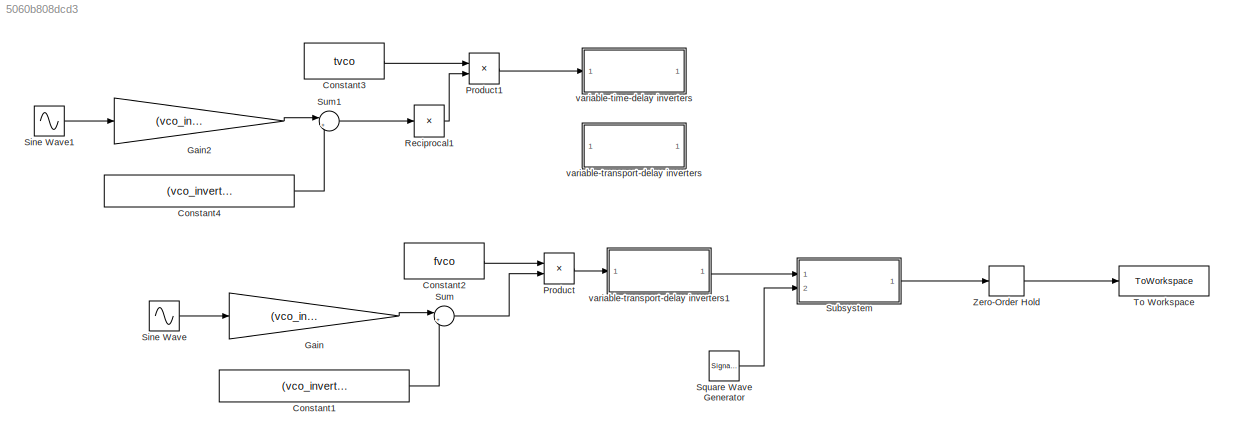
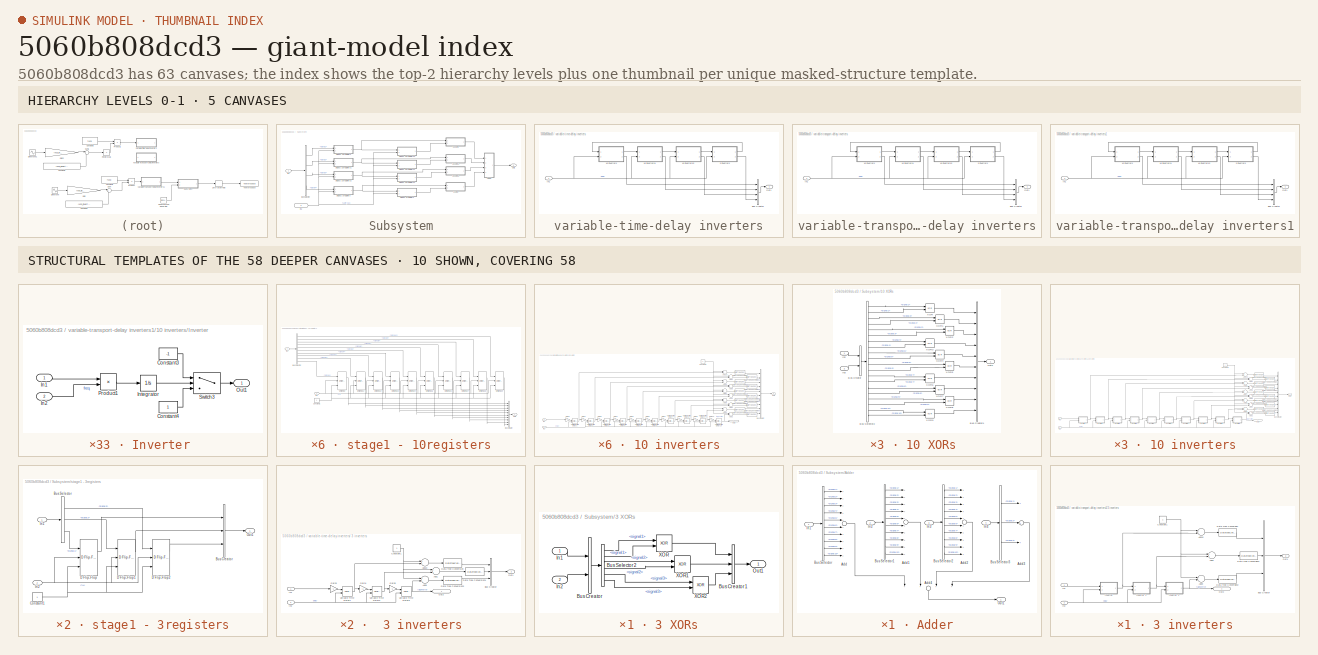
[diagram: thumbnail index - top-2 hierarchy levels (5 canvases) + 10 structural-template representatives of the remaining 58 canvases]
MODEL slx_5060b808dcd3
KIND model
CONFIG AbsTol = auto
CONFIG EnableMultiTasking = off
CONFIG FixedStep = auto
CONFIG MaxStep = auto
CONFIG MinStep = auto
CONFIG RelTol = 1e-3
CONFIG SampleTimeConstraint = Unconstrained
CONFIG Solver = ode113
CONFIG SolverName = ode113
CONFIG StartTime = 0.0
CONFIG StopTime = 1e-6
BLOCK [Constant] Constant1
  SampleTime = tsys_res
  Value = (vco_inverter_nums+1)/2
BLOCK [Constant] Constant2
  SampleTime = tsys_res
  Value = fvco
BLOCK [Constant] Constant3
  Commented = on
  SampleTime = tsys_res
  Value = tvco
BLOCK [Constant] Constant4
  Commented = on
  SampleTime = tsys_res
  Value = (vco_inverter_nums+1)/2
BLOCK [Gain] Gain
  Gain = (vco_inverter_nums-3)/2
  OutDataTypeStr = Inherit: Inherit via internal rule
  ParamDataTypeStr = Inherit: Inherit via internal rule
  SaturateOnIntegerOverflow = off
BLOCK [Gain] Gain2
  Commented = on
  Gain = (vco_inverter_nums-3)/2
  OutDataTypeStr = Inherit: Inherit via internal rule
  ParamDataTypeStr = Inherit: Inherit via internal rule
  SaturateOnIntegerOverflow = off
BLOCK [Product] Product
  InputSameDT = off
  OutDataTypeStr = Inherit: Inherit via internal rule
  Ports = [2, 1]
  RndMeth = Floor
  SaturateOnIntegerOverflow = off
BLOCK [Product] Product1
  Commented = on
  InputSameDT = off
  OutDataTypeStr = Inherit: Inherit via internal rule
  Ports = [2, 1]
  RndMeth = Floor
  SaturateOnIntegerOverflow = off
BLOCK [Product] Reciprocal1
  Commented = on
  InputSameDT = off
  Inputs = /
  OutDataTypeStr = Inherit: Inherit via internal rule
  Ports = [1, 1]
  RndMeth = Floor
  SaturateOnIntegerOverflow = off
BLOCK [Sin] Sine Wave
  Frequency = 13e6*2*pi
  Ports = [0, 1]
  SampleTime = ts
BLOCK [Sin] Sine Wave1
  Commented = on
  Frequency = 13e6*2*pi
  Ports = [0, 1]
  SampleTime = ts
BLOCK [SignalGenerator] Square Wave Generator
  Frequency = fs
  Ports = [0, 1]
  WaveForm = square
BLOCK [SubSystem] Subsystem
  Ports = [2, 1]
  RequestExecContextInheritance = off
BLOCK [SubSystem] Subsystem/10 XORs 
  Ports = [2, 1]
  RequestExecContextInheritance = off
BLOCK [BusCreator] Subsystem/10 XORs /Bus Creator
  DisplayOption = bar
  InheritFromInputs = on
  Inputs = 2
  Ports = [2, 1]
BLOCK [BusCreator] Subsystem/10 XORs /Bus Creator1
  DisplayOption = bar
  InheritFromInputs = on
  Inputs = 10
  Ports = [10, 1]
BLOCK [BusSelector] Subsystem/10 XORs /Bus Selector2
  OutputAsBus = off
  OutputSignals = signal1.signal1,signal2.signal1,signal1.signal2,signal2.signal2,signal1.signal3,signal2.signal3,signal1.signal4,signal2.signal4,signal1.signal5,signal2.signal5,signal1.signal6,signal2.signal6,signal1.signal7,signal2.signal7,signal1.signal8,signal2.signal8,signal1.signal9,signal2.signal9,signal1.signal10,signal2.signal10  <repeated x3 — deduplicated; at blocks: Bus Selector2>
  Ports = [1, 20]
BLOCK [Inport] Subsystem/10 XORs /In2
  IconDisplay = Port number
BLOCK [Inport] Subsystem/10 XORs /In3
  IconDisplay = Port number
  Port = 2
BLOCK [Outport] Subsystem/10 XORs /Out2
  IconDisplay = Port number
BLOCK [Logic] Subsystem/10 XORs /XOR
  AllPortsSameDT = off
  IconShape = distinctive
  Operator = XOR
  OutDataTypeStr = boolean
  Ports = [2, 1]
BLOCK [Logic] Subsystem/10 XORs /XOR1
  AllPortsSameDT = off
  IconShape = distinctive
  Operator = XOR
  OutDataTypeStr = boolean
  Ports = [2, 1]
BLOCK [Logic] Subsystem/10 XORs /XOR2
  AllPortsSameDT = off
  IconShape = distinctive
  Operator = XOR
  OutDataTypeStr = boolean
  Ports = [2, 1]
BLOCK [Logic] Subsystem/10 XORs /XOR3
  AllPortsSameDT = off
  IconShape = distinctive
  Operator = XOR
  OutDataTypeStr = boolean
  Ports = [2, 1]
BLOCK [Logic] Subsystem/10 XORs /XOR4
  AllPortsSameDT = off
  IconShape = distinctive
  Operator = XOR
  OutDataTypeStr = boolean
  Ports = [2, 1]
BLOCK [Logic] Subsystem/10 XORs /XOR5
  AllPortsSameDT = off
  IconShape = distinctive
  Operator = XOR
  OutDataTypeStr = boolean
  Ports = [2, 1]
BLOCK [Logic] Subsystem/10 XORs /XOR6
  AllPortsSameDT = off
  IconShape = distinctive
  Operator = XOR
  OutDataTypeStr = boolean
  Ports = [2, 1]
BLOCK [Logic] Subsystem/10 XORs /XOR7
  AllPortsSameDT = off
  IconShape = distinctive
  Operator = XOR
  OutDataTypeStr = boolean
  Ports = [2, 1]
BLOCK [Logic] Subsystem/10 XORs /XOR8
  AllPortsSameDT = off
  IconShape = distinctive
  Operator = XOR
  OutDataTypeStr = boolean
  Ports = [2, 1]
BLOCK [Logic] Subsystem/10 XORs /XOR9
  AllPortsSameDT = off
  IconShape = distinctive
  Operator = XOR
  OutDataTypeStr = boolean
  Ports = [2, 1]
BLOCK [SubSystem] Subsystem/10 XORs 1
  Ports = [2, 1]
  RequestExecContextInheritance = off
BLOCK [BusCreator] Subsystem/10 XORs 1/Bus Creator
  DisplayOption = bar
  InheritFromInputs = on
  Inputs = 2
  Ports = [2, 1]
BLOCK [BusCreator] Subsystem/10 XORs 1/Bus Creator1
  DisplayOption = bar
  InheritFromInputs = on
  Inputs = 10
  Ports = [10, 1]
BLOCK [BusSelector] Subsystem/10 XORs 1/Bus Selector2
  OutputAsBus = off
  Ports = [1, 20]
BLOCK [Inport] Subsystem/10 XORs 1/In2
  IconDisplay = Port number
BLOCK [Inport] Subsystem/10 XORs 1/In3
  IconDisplay = Port number
  Port = 2
BLOCK [Outport] Subsystem/10 XORs 1/Out2
  IconDisplay = Port number
BLOCK [Logic] Subsystem/10 XORs 1/XOR
  AllPortsSameDT = off
  IconShape = distinctive
  Operator = XOR
  OutDataTypeStr = boolean
  Ports = [2, 1]
BLOCK [Logic] Subsystem/10 XORs 1/XOR1
  AllPortsSameDT = off
  IconShape = distinctive
  Operator = XOR
  OutDataTypeStr = boolean
  Ports = [2, 1]
BLOCK [Logic] Subsystem/10 XORs 1/XOR2
  AllPortsSameDT = off
  IconShape = distinctive
  Operator = XOR
  OutDataTypeStr = boolean
  Ports = [2, 1]
BLOCK [Logic] Subsystem/10 XORs 1/XOR3
  AllPortsSameDT = off
  IconShape = distinctive
  Operator = XOR
  OutDataTypeStr = boolean
  Ports = [2, 1]
BLOCK [Logic] Subsystem/10 XORs 1/XOR4
  AllPortsSameDT = off
  IconShape = distinctive
  Operator = XOR
  OutDataTypeStr = boolean
  Ports = [2, 1]
BLOCK [Logic] Subsystem/10 XORs 1/XOR5
  AllPortsSameDT = off
  IconShape = distinctive
  Operator = XOR
  OutDataTypeStr = boolean
  Ports = [2, 1]
BLOCK [Logic] Subsystem/10 XORs 1/XOR6
  AllPortsSameDT = off
  IconShape = distinctive
  Operator = XOR
  OutDataTypeStr = boolean
  Ports = [2, 1]
BLOCK [Logic] Subsystem/10 XORs 1/XOR7
  AllPortsSameDT = off
  IconShape = distinctive
  Operator = XOR
  OutDataTypeStr = boolean
  Ports = [2, 1]
BLOCK [Logic] Subsystem/10 XORs 1/XOR8
  AllPortsSameDT = off
  IconShape = distinctive
  Operator = XOR
  OutDataTypeStr = boolean
  Ports = [2, 1]
BLOCK [Logic] Subsystem/10 XORs 1/XOR9
  AllPortsSameDT = off
  IconShape = distinctive
  Operator = XOR
  OutDataTypeStr = boolean
  Ports = [2, 1]
BLOCK [SubSystem] Subsystem/10 XORs 2
  Ports = [2, 1]
  RequestExecContextInheritance = off
BLOCK [BusCreator] Subsystem/10 XORs 2/Bus Creator
  DisplayOption = bar
  InheritFromInputs = on
  Inputs = 2
  Ports = [2, 1]
BLOCK [BusCreator] Subsystem/10 XORs 2/Bus Creator1
  DisplayOption = bar
  InheritFromInputs = on
  Inputs = 10
  Ports = [10, 1]
BLOCK [BusSelector] Subsystem/10 XORs 2/Bus Selector2
  OutputAsBus = off
  Ports = [1, 20]
BLOCK [Inport] Subsystem/10 XORs 2/In2
  IconDisplay = Port number
BLOCK [Inport] Subsystem/10 XORs 2/In3
  IconDisplay = Port number
  Port = 2
BLOCK [Outport] Subsystem/10 XORs 2/Out2
  IconDisplay = Port number
BLOCK [Logic] Subsystem/10 XORs 2/XOR
  AllPortsSameDT = off
  IconShape = distinctive
  Operator = XOR
  OutDataTypeStr = boolean
  Ports = [2, 1]
BLOCK [Logic] Subsystem/10 XORs 2/XOR1
  AllPortsSameDT = off
  IconShape = distinctive
  Operator = XOR
  OutDataTypeStr = boolean
  Ports = [2, 1]
BLOCK [Logic] Subsystem/10 XORs 2/XOR2
  AllPortsSameDT = off
  IconShape = distinctive
  Operator = XOR
  OutDataTypeStr = boolean
  Ports = [2, 1]
BLOCK [Logic] Subsystem/10 XORs 2/XOR3
  AllPortsSameDT = off
  IconShape = distinctive
  Operator = XOR
  OutDataTypeStr = boolean
  Ports = [2, 1]
BLOCK [Logic] Subsystem/10 XORs 2/XOR4
  AllPortsSameDT = off
  IconShape = distinctive
  Operator = XOR
  OutDataTypeStr = boolean
  Ports = [2, 1]
BLOCK [Logic] Subsystem/10 XORs 2/XOR5
  AllPortsSameDT = off
  IconShape = distinctive
  Operator = XOR
  OutDataTypeStr = boolean
  Ports = [2, 1]
BLOCK [Logic] Subsystem/10 XORs 2/XOR6
  AllPortsSameDT = off
  IconShape = distinctive
  Operator = XOR
  OutDataTypeStr = boolean
  Ports = [2, 1]
BLOCK [Logic] Subsystem/10 XORs 2/XOR7
  AllPortsSameDT = off
  IconShape = distinctive
  Operator = XOR
  OutDataTypeStr = boolean
  Ports = [2, 1]
BLOCK [Logic] Subsystem/10 XORs 2/XOR8
  AllPortsSameDT = off
  IconShape = distinctive
  Operator = XOR
  OutDataTypeStr = boolean
  Ports = [2, 1]
BLOCK [Logic] Subsystem/10 XORs 2/XOR9
  AllPortsSameDT = off
  IconShape = distinctive
  Operator = XOR
  OutDataTypeStr = boolean
  Ports = [2, 1]
BLOCK [SubSystem] Subsystem/3 XORs
  Ports = [2, 1]
  RequestExecContextInheritance = off
BLOCK [BusCreator] Subsystem/3 XORs/Bus Creator
  DisplayOption = bar
  InheritFromInputs = on
  Inputs = 2
  Ports = [2, 1]
BLOCK [BusCreator] Subsystem/3 XORs/Bus Creator1
  DisplayOption = bar
  InheritFromInputs = on
  Inputs = 3
  Ports = [3, 1]
BLOCK [BusSelector] Subsystem/3 XORs/Bus Selector2
  OutputAsBus = off
  OutputSignals = signal1.signal1,signal2.signal1,signal1.signal2,signal2.signal2,signal1.signal3,signal2.signal3
  Ports = [1, 6]
BLOCK [Inport] Subsystem/3 XORs/In1
  IconDisplay = Port number
BLOCK [Inport] Subsystem/3 XORs/In2
  IconDisplay = Port number
  Port = 2
BLOCK [Outport] Subsystem/3 XORs/Out1
  IconDisplay = Port number
BLOCK [Logic] Subsystem/3 XORs/XOR
  AllPortsSameDT = off
  IconShape = distinctive
  Operator = XOR
  OutDataTypeStr = boolean
  Ports = [2, 1]
BLOCK [Logic] Subsystem/3 XORs/XOR1
  AllPortsSameDT = off
  IconShape = distinctive
  Operator = XOR
  OutDataTypeStr = boolean
  Ports = [2, 1]
BLOCK [Logic] Subsystem/3 XORs/XOR2
  AllPortsSameDT = off
  IconShape = distinctive
  Operator = XOR
  OutDataTypeStr = boolean
  Ports = [2, 1]
BLOCK [SubSystem] Subsystem/Adder
  Ports = [4, 1]
  RequestExecContextInheritance = off
BLOCK [Sum] Subsystem/Adder/Add
  InputSameDT = off
  Inputs = ++++++++++
  OutDataTypeStr = Inherit: Inherit via internal rule
  Ports = [10, 1]
  SaturateOnIntegerOverflow = off
BLOCK [Sum] Subsystem/Adder/Add1
  InputSameDT = off
  Inputs = ++++++++++
  OutDataTypeStr = Inherit: Inherit via internal rule
  Ports = [10, 1]
  SaturateOnIntegerOverflow = off
BLOCK [Sum] Subsystem/Adder/Add2
  InputSameDT = off
  Inputs = ++++++++++
  OutDataTypeStr = Inherit: Inherit via internal rule
  Ports = [10, 1]
  SaturateOnIntegerOverflow = off
BLOCK [Sum] Subsystem/Adder/Add3
  InputSameDT = off
  Inputs = +++
  OutDataTypeStr = Inherit: Inherit via internal rule
  Ports = [3, 1]
  SaturateOnIntegerOverflow = off
BLOCK [Sum] Subsystem/Adder/Add4
  InputSameDT = off
  Inputs = ++++
  OutDataTypeStr = Inherit: Inherit via internal rule
  Ports = [4, 1]
  SaturateOnIntegerOverflow = off
BLOCK [BusSelector] Subsystem/Adder/Bus Selector
  OutputAsBus = off
  OutputSignals = signal1,signal2,signal3,signal4,signal5,signal6,signal7,signal8,signal9,signal10
  Ports = [1, 10]
BLOCK [BusSelector] Subsystem/Adder/Bus Selector1
  OutputAsBus = off
  OutputSignals = signal1,signal2,signal3,signal4,signal5,signal6,signal7,signal8,signal9,signal10
  Ports = [1, 10]
BLOCK [BusSelector] Subsystem/Adder/Bus Selector2
  OutputAsBus = off
  OutputSignals = signal1,signal2,signal3,signal4,signal5,signal6,signal7,signal8,signal9,signal10
  Ports = [1, 10]
BLOCK [BusSelector] Subsystem/Adder/Bus Selector3
  OutputAsBus = off
  OutputSignals = signal1,signal2,signal3
  Ports = [1, 3]
BLOCK [Inport] Subsystem/Adder/In1
  IconDisplay = Port number
BLOCK [Inport] Subsystem/Adder/In2
  IconDisplay = Port number
  Port = 2
BLOCK [Inport] Subsystem/Adder/In3
  IconDisplay = Port number
  Port = 3
BLOCK [Inport] Subsystem/Adder/In4
  IconDisplay = Port number
  Port = 4
BLOCK [Outport] Subsystem/Adder/Out1
  IconDisplay = Port number
BLOCK [BusSelector] Subsystem/Bus Selector
  OutputAsBus = off
  OutputSignals = signal1,signal2,signal3,signal4
  Ports = [1, 4]
BLOCK [Inport] Subsystem/In1
  IconDisplay = Port number
BLOCK [Inport] Subsystem/In2
  IconDisplay = Signal name
  Port = 2
BLOCK [Outport] Subsystem/Out1
  IconDisplay = Port number
BLOCK [SubSystem] Subsystem/stage1 - 10registers
  Ports = [2, 1]
  RequestExecContextInheritance = off
BLOCK [BusCreator] Subsystem/stage1 - 10registers/Bus Creator
  DisplayOption = bar
  InheritFromInputs = on
  Inputs = 10
  Ports = [10, 1]
BLOCK [BusSelector] Subsystem/stage1 - 10registers/Bus Selector
  OutputAsBus = off
  OutputSignals = signal10,signal9,signal8,signal7,signal6,signal5,signal4,signal3,signal2,signal1
  Ports = [1, 10]
BLOCK [Constant] Subsystem/stage1 - 10registers/Constant1
  SampleTime = 1e-11
BLOCK [Reference] Subsystem/stage1 - 10registers/D Flip-Flop  REF=simulink_extras/Flip Flops/D Flip-Flop
  Ports = [3, 2]
  SourceBlock = simulink_extras/Flip Flops/D Flip-Flop
  SourceProductBaseCode = SL
  SourceProductName = Simulink
  SourceType = DFlipFlop
BLOCK [Reference] Subsystem/stage1 - 10registers/D Flip-Flop1  REF=simulink_extras/Flip Flops/D Flip-Flop
  Ports = [3, 2]
  SourceBlock = simulink_extras/Flip Flops/D Flip-Flop
  SourceProductBaseCode = SL
  SourceProductName = Simulink
  SourceType = DFlipFlop
BLOCK [Reference] Subsystem/stage1 - 10registers/D Flip-Flop2  REF=simulink_extras/Flip Flops/D Flip-Flop
  Ports = [3, 2]
  SourceBlock = simulink_extras/Flip Flops/D Flip-Flop
  SourceProductBaseCode = SL
  SourceProductName = Simulink
  SourceType = DFlipFlop
BLOCK [Reference] Subsystem/stage1 - 10registers/D Flip-Flop3  REF=simulink_extras/Flip Flops/D Flip-Flop
  Ports = [3, 2]
  SourceBlock = simulink_extras/Flip Flops/D Flip-Flop
  SourceProductBaseCode = SL
  SourceProductName = Simulink
  SourceType = DFlipFlop
BLOCK [Reference] Subsystem/stage1 - 10registers/D Flip-Flop4  REF=simulink_extras/Flip Flops/D Flip-Flop
  Ports = [3, 2]
  SourceBlock = simulink_extras/Flip Flops/D Flip-Flop
  SourceProductBaseCode = SL
  SourceProductName = Simulink
  SourceType = DFlipFlop
BLOCK [Reference] Subsystem/stage1 - 10registers/D Flip-Flop5  REF=simulink_extras/Flip Flops/D Flip-Flop
  Ports = [3, 2]
  SourceBlock = simulink_extras/Flip Flops/D Flip-Flop
  SourceProductBaseCode = SL
  SourceProductName = Simulink
  SourceType = DFlipFlop
BLOCK [Reference] Subsystem/stage1 - 10registers/D Flip-Flop6  REF=simulink_extras/Flip Flops/D Flip-Flop
  Ports = [3, 2]
  SourceBlock = simulink_extras/Flip Flops/D Flip-Flop
  SourceProductBaseCode = SL
  SourceProductName = Simulink
  SourceType = DFlipFlop
BLOCK [Reference] Subsystem/stage1 - 10registers/D Flip-Flop7  REF=simulink_extras/Flip Flops/D Flip-Flop
  Ports = [3, 2]
  SourceBlock = simulink_extras/Flip Flops/D Flip-Flop
  SourceProductBaseCode = SL
  SourceProductName = Simulink
  SourceType = DFlipFlop
BLOCK [Reference] Subsystem/stage1 - 10registers/D Flip-Flop8  REF=simulink_extras/Flip Flops/D Flip-Flop
  Ports = [3, 2]
  SourceBlock = simulink_extras/Flip Flops/D Flip-Flop
  SourceProductBaseCode = SL
  SourceProductName = Simulink
  SourceType = DFlipFlop
BLOCK [Reference] Subsystem/stage1 - 10registers/D Flip-Flop9  REF=simulink_extras/Flip Flops/D Flip-Flop
  Ports = [3, 2]
  SourceBlock = simulink_extras/Flip Flops/D Flip-Flop
  SourceProductBaseCode = SL
  SourceProductName = Simulink
  SourceType = DFlipFlop
BLOCK [Inport] Subsystem/stage1 - 10registers/In1
  IconDisplay = Port number
BLOCK [Inport] Subsystem/stage1 - 10registers/In2
  IconDisplay = Signal name
  Port = 2
BLOCK [Outport] Subsystem/stage1 - 10registers/Out1
  IconDisplay = Port number
BLOCK [SubSystem] Subsystem/stage1 - 10registers1
  Ports = [2, 1]
  RequestExecContextInheritance = off
BLOCK [BusCreator] Subsystem/stage1 - 10registers1/Bus Creator
  DisplayOption = bar
  InheritFromInputs = on
  Inputs = 10
  Ports = [10, 1]
BLOCK [BusSelector] Subsystem/stage1 - 10registers1/Bus Selector
  OutputAsBus = off
  OutputSignals = signal10,signal9,signal8,signal7,signal6,signal5,signal4,signal3,signal2,signal1
  Ports = [1, 10]
BLOCK [Constant] Subsystem/stage1 - 10registers1/Constant1
  SampleTime = 1e-11
BLOCK [Reference] Subsystem/stage1 - 10registers1/D Flip-Flop  REF=simulink_extras/Flip Flops/D Flip-Flop
  Ports = [3, 2]
  SourceBlock = simulink_extras/Flip Flops/D Flip-Flop
  SourceProductBaseCode = SL
  SourceProductName = Simulink
  SourceType = DFlipFlop
BLOCK [Reference] Subsystem/stage1 - 10registers1/D Flip-Flop1  REF=simulink_extras/Flip Flops/D Flip-Flop
  Ports = [3, 2]
  SourceBlock = simulink_extras/Flip Flops/D Flip-Flop
  SourceProductBaseCode = SL
  SourceProductName = Simulink
  SourceType = DFlipFlop
BLOCK [Reference] Subsystem/stage1 - 10registers1/D Flip-Flop2  REF=simulink_extras/Flip Flops/D Flip-Flop
  Ports = [3, 2]
  SourceBlock = simulink_extras/Flip Flops/D Flip-Flop
  SourceProductBaseCode = SL
  SourceProductName = Simulink
  SourceType = DFlipFlop
BLOCK [Reference] Subsystem/stage1 - 10registers1/D Flip-Flop3  REF=simulink_extras/Flip Flops/D Flip-Flop
  Ports = [3, 2]
  SourceBlock = simulink_extras/Flip Flops/D Flip-Flop
  SourceProductBaseCode = SL
  SourceProductName = Simulink
  SourceType = DFlipFlop
BLOCK [Reference] Subsystem/stage1 - 10registers1/D Flip-Flop4  REF=simulink_extras/Flip Flops/D Flip-Flop
  Ports = [3, 2]
  SourceBlock = simulink_extras/Flip Flops/D Flip-Flop
  SourceProductBaseCode = SL
  SourceProductName = Simulink
  SourceType = DFlipFlop
BLOCK [Reference] Subsystem/stage1 - 10registers1/D Flip-Flop5  REF=simulink_extras/Flip Flops/D Flip-Flop
  Ports = [3, 2]
  SourceBlock = simulink_extras/Flip Flops/D Flip-Flop
  SourceProductBaseCode = SL
  SourceProductName = Simulink
  SourceType = DFlipFlop
BLOCK [Reference] Subsystem/stage1 - 10registers1/D Flip-Flop6  REF=simulink_extras/Flip Flops/D Flip-Flop
  Ports = [3, 2]
  SourceBlock = simulink_extras/Flip Flops/D Flip-Flop
  SourceProductBaseCode = SL
  SourceProductName = Simulink
  SourceType = DFlipFlop
BLOCK [Reference] Subsystem/stage1 - 10registers1/D Flip-Flop7  REF=simulink_extras/Flip Flops/D Flip-Flop
  Ports = [3, 2]
  SourceBlock = simulink_extras/Flip Flops/D Flip-Flop
  SourceProductBaseCode = SL
  SourceProductName = Simulink
  SourceType = DFlipFlop
BLOCK [Reference] Subsystem/stage1 - 10registers1/D Flip-Flop8  REF=simulink_extras/Flip Flops/D Flip-Flop
  Ports = [3, 2]
  SourceBlock = simulink_extras/Flip Flops/D Flip-Flop
  SourceProductBaseCode = SL
  SourceProductName = Simulink
  SourceType = DFlipFlop
BLOCK [Reference] Subsystem/stage1 - 10registers1/D Flip-Flop9  REF=simulink_extras/Flip Flops/D Flip-Flop
  Ports = [3, 2]
  SourceBlock = simulink_extras/Flip Flops/D Flip-Flop
  SourceProductBaseCode = SL
  SourceProductName = Simulink
  SourceType = DFlipFlop
BLOCK [Inport] Subsystem/stage1 - 10registers1/In1
  IconDisplay = Port number
BLOCK [Inport] Subsystem/stage1 - 10registers1/In2
  IconDisplay = Signal name
  Port = 2
BLOCK [Outport] Subsystem/stage1 - 10registers1/Out1
  IconDisplay = Port number
BLOCK [SubSystem] Subsystem/stage1 - 10registers2
  Ports = [2, 1]
  RequestExecContextInheritance = off
BLOCK [BusCreator] Subsystem/stage1 - 10registers2/Bus Creator
  DisplayOption = bar
  InheritFromInputs = on
  Inputs = 10
  Ports = [10, 1]
BLOCK [BusSelector] Subsystem/stage1 - 10registers2/Bus Selector
  OutputAsBus = off
  OutputSignals = signal10,signal9,signal8,signal7,signal6,signal5,signal4,signal3,signal2,signal1
  Ports = [1, 10]
BLOCK [Constant] Subsystem/stage1 - 10registers2/Constant1
  SampleTime = 1e-11
BLOCK [Reference] Subsystem/stage1 - 10registers2/D Flip-Flop  REF=simulink_extras/Flip Flops/D Flip-Flop
  Ports = [3, 2]
  SourceBlock = simulink_extras/Flip Flops/D Flip-Flop
  SourceProductBaseCode = SL
  SourceProductName = Simulink
  SourceType = DFlipFlop
BLOCK [Reference] Subsystem/stage1 - 10registers2/D Flip-Flop1  REF=simulink_extras/Flip Flops/D Flip-Flop
  Ports = [3, 2]
  SourceBlock = simulink_extras/Flip Flops/D Flip-Flop
  SourceProductBaseCode = SL
  SourceProductName = Simulink
  SourceType = DFlipFlop
BLOCK [Reference] Subsystem/stage1 - 10registers2/D Flip-Flop2  REF=simulink_extras/Flip Flops/D Flip-Flop
  Ports = [3, 2]
  SourceBlock = simulink_extras/Flip Flops/D Flip-Flop
  SourceProductBaseCode = SL
  SourceProductName = Simulink
  SourceType = DFlipFlop
BLOCK [Reference] Subsystem/stage1 - 10registers2/D Flip-Flop3  REF=simulink_extras/Flip Flops/D Flip-Flop
  Ports = [3, 2]
  SourceBlock = simulink_extras/Flip Flops/D Flip-Flop
  SourceProductBaseCode = SL
  SourceProductName = Simulink
  SourceType = DFlipFlop
BLOCK [Reference] Subsystem/stage1 - 10registers2/D Flip-Flop4  REF=simulink_extras/Flip Flops/D Flip-Flop
  Ports = [3, 2]
  SourceBlock = simulink_extras/Flip Flops/D Flip-Flop
  SourceProductBaseCode = SL
  SourceProductName = Simulink
  SourceType = DFlipFlop
BLOCK [Reference] Subsystem/stage1 - 10registers2/D Flip-Flop5  REF=simulink_extras/Flip Flops/D Flip-Flop
  Ports = [3, 2]
  SourceBlock = simulink_extras/Flip Flops/D Flip-Flop
  SourceProductBaseCode = SL
  SourceProductName = Simulink
  SourceType = DFlipFlop
BLOCK [Reference] Subsystem/stage1 - 10registers2/D Flip-Flop6  REF=simulink_extras/Flip Flops/D Flip-Flop
  Ports = [3, 2]
  SourceBlock = simulink_extras/Flip Flops/D Flip-Flop
  SourceProductBaseCode = SL
  SourceProductName = Simulink
  SourceType = DFlipFlop
BLOCK [Reference] Subsystem/stage1 - 10registers2/D Flip-Flop7  REF=simulink_extras/Flip Flops/D Flip-Flop
  Ports = [3, 2]
  SourceBlock = simulink_extras/Flip Flops/D Flip-Flop
  SourceProductBaseCode = SL
  SourceProductName = Simulink
  SourceType = DFlipFlop
BLOCK [Reference] Subsystem/stage1 - 10registers2/D Flip-Flop8  REF=simulink_extras/Flip Flops/D Flip-Flop
  Ports = [3, 2]
  SourceBlock = simulink_extras/Flip Flops/D Flip-Flop
  SourceProductBaseCode = SL
  SourceProductName = Simulink
  SourceType = DFlipFlop
BLOCK [Reference] Subsystem/stage1 - 10registers2/D Flip-Flop9  REF=simulink_extras/Flip Flops/D Flip-Flop
  Ports = [3, 2]
  SourceBlock = simulink_extras/Flip Flops/D Flip-Flop
  SourceProductBaseCode = SL
  SourceProductName = Simulink
  SourceType = DFlipFlop
BLOCK [Inport] Subsystem/stage1 - 10registers2/In1
  IconDisplay = Port number
BLOCK [Inport] Subsystem/stage1 - 10registers2/In2
  IconDisplay = Signal name
  Port = 2
BLOCK [Outport] Subsystem/stage1 - 10registers2/Out1
  IconDisplay = Port number
BLOCK [SubSystem] Subsystem/stage1 - 3registers
  Ports = [2, 1]
  RequestExecContextInheritance = off
BLOCK [BusCreator] Subsystem/stage1 - 3registers/Bus Creator
  DisplayOption = bar
  InheritFromInputs = on
  Inputs = 3
  Ports = [3, 1]
BLOCK [BusSelector] Subsystem/stage1 - 3registers/Bus Selector
  OutputAsBus = off
  OutputSignals = signal3,signal2,signal1
  Ports = [1, 3]
BLOCK [Constant] Subsystem/stage1 - 3registers/Constant1
  SampleTime = 1e-11
BLOCK [Reference] Subsystem/stage1 - 3registers/D Flip-Flop  REF=simulink_extras/Flip Flops/D Flip-Flop
  Ports = [3, 2]
  SourceBlock = simulink_extras/Flip Flops/D Flip-Flop
  SourceProductBaseCode = SL
  SourceProductName = Simulink
  SourceType = DFlipFlop
BLOCK [Reference] Subsystem/stage1 - 3registers/D Flip-Flop1  REF=simulink_extras/Flip Flops/D Flip-Flop
  Ports = [3, 2]
  SourceBlock = simulink_extras/Flip Flops/D Flip-Flop
  SourceProductBaseCode = SL
  SourceProductName = Simulink
  SourceType = DFlipFlop
BLOCK [Reference] Subsystem/stage1 - 3registers/D Flip-Flop2  REF=simulink_extras/Flip Flops/D Flip-Flop
  Ports = [3, 2]
  SourceBlock = simulink_extras/Flip Flops/D Flip-Flop
  SourceProductBaseCode = SL
  SourceProductName = Simulink
  SourceType = DFlipFlop
BLOCK [Inport] Subsystem/stage1 - 3registers/In1
  IconDisplay = Port number
BLOCK [Inport] Subsystem/stage1 - 3registers/In2
  IconDisplay = Signal name
  Port = 2
BLOCK [Outport] Subsystem/stage1 - 3registers/Out1
  IconDisplay = Port number
BLOCK [SubSystem] Subsystem/stage2 - 10registers1
  Ports = [2, 1]
  RequestExecContextInheritance = off
BLOCK [BusCreator] Subsystem/stage2 - 10registers1/Bus Creator
  DisplayOption = bar
  InheritFromInputs = on
  Inputs = 10
  Ports = [10, 1]
BLOCK [BusSelector] Subsystem/stage2 - 10registers1/Bus Selector
  OutputAsBus = off
  OutputSignals = signal10,signal9,signal8,signal7,signal6,signal5,signal4,signal3,signal2,signal1
  Ports = [1, 10]
BLOCK [Constant] Subsystem/stage2 - 10registers1/Constant1
  SampleTime = 1e-11
BLOCK [Reference] Subsystem/stage2 - 10registers1/D Flip-Flop  REF=simulink_extras/Flip Flops/D Flip-Flop
  Ports = [3, 2]
  SourceBlock = simulink_extras/Flip Flops/D Flip-Flop
  SourceProductBaseCode = SL
  SourceProductName = Simulink
  SourceType = DFlipFlop
BLOCK [Reference] Subsystem/stage2 - 10registers1/D Flip-Flop1  REF=simulink_extras/Flip Flops/D Flip-Flop
  Ports = [3, 2]
  SourceBlock = simulink_extras/Flip Flops/D Flip-Flop
  SourceProductBaseCode = SL
  SourceProductName = Simulink
  SourceType = DFlipFlop
BLOCK [Reference] Subsystem/stage2 - 10registers1/D Flip-Flop2  REF=simulink_extras/Flip Flops/D Flip-Flop
  Ports = [3, 2]
  SourceBlock = simulink_extras/Flip Flops/D Flip-Flop
  SourceProductBaseCode = SL
  SourceProductName = Simulink
  SourceType = DFlipFlop
BLOCK [Reference] Subsystem/stage2 - 10registers1/D Flip-Flop3  REF=simulink_extras/Flip Flops/D Flip-Flop
  Ports = [3, 2]
  SourceBlock = simulink_extras/Flip Flops/D Flip-Flop
  SourceProductBaseCode = SL
  SourceProductName = Simulink
  SourceType = DFlipFlop
BLOCK [Reference] Subsystem/stage2 - 10registers1/D Flip-Flop4  REF=simulink_extras/Flip Flops/D Flip-Flop
  Ports = [3, 2]
  SourceBlock = simulink_extras/Flip Flops/D Flip-Flop
  SourceProductBaseCode = SL
  SourceProductName = Simulink
  SourceType = DFlipFlop
BLOCK [Reference] Subsystem/stage2 - 10registers1/D Flip-Flop5  REF=simulink_extras/Flip Flops/D Flip-Flop
  Ports = [3, 2]
  SourceBlock = simulink_extras/Flip Flops/D Flip-Flop
  SourceProductBaseCode = SL
  SourceProductName = Simulink
  SourceType = DFlipFlop
BLOCK [Reference] Subsystem/stage2 - 10registers1/D Flip-Flop6  REF=simulink_extras/Flip Flops/D Flip-Flop
  Ports = [3, 2]
  SourceBlock = simulink_extras/Flip Flops/D Flip-Flop
  SourceProductBaseCode = SL
  SourceProductName = Simulink
  SourceType = DFlipFlop
BLOCK [Reference] Subsystem/stage2 - 10registers1/D Flip-Flop7  REF=simulink_extras/Flip Flops/D Flip-Flop
  Ports = [3, 2]
  SourceBlock = simulink_extras/Flip Flops/D Flip-Flop
  SourceProductBaseCode = SL
  SourceProductName = Simulink
  SourceType = DFlipFlop
BLOCK [Reference] Subsystem/stage2 - 10registers1/D Flip-Flop8  REF=simulink_extras/Flip Flops/D Flip-Flop
  Ports = [3, 2]
  SourceBlock = simulink_extras/Flip Flops/D Flip-Flop
  SourceProductBaseCode = SL
  SourceProductName = Simulink
  SourceType = DFlipFlop
BLOCK [Reference] Subsystem/stage2 - 10registers1/D Flip-Flop9  REF=simulink_extras/Flip Flops/D Flip-Flop
  Ports = [3, 2]
  SourceBlock = simulink_extras/Flip Flops/D Flip-Flop
  SourceProductBaseCode = SL
  SourceProductName = Simulink
  SourceType = DFlipFlop
BLOCK [Inport] Subsystem/stage2 - 10registers1/In1
  IconDisplay = Port number
BLOCK [Inport] Subsystem/stage2 - 10registers1/In2
  IconDisplay = Signal name
  Port = 2
BLOCK [Outport] Subsystem/stage2 - 10registers1/Out1
  IconDisplay = Port number
BLOCK [SubSystem] Subsystem/stage2 - 10registers2
  Ports = [2, 1]
  RequestExecContextInheritance = off
BLOCK [BusCreator] Subsystem/stage2 - 10registers2/Bus Creator
  DisplayOption = bar
  InheritFromInputs = on
  Inputs = 10
  Ports = [10, 1]
BLOCK [BusSelector] Subsystem/stage2 - 10registers2/Bus Selector
  OutputAsBus = off
  OutputSignals = signal10,signal9,signal8,signal7,signal6,signal5,signal4,signal3,signal2,signal1
  Ports = [1, 10]
BLOCK [Constant] Subsystem/stage2 - 10registers2/Constant1
  SampleTime = 1e-11
BLOCK [Reference] Subsystem/stage2 - 10registers2/D Flip-Flop  REF=simulink_extras/Flip Flops/D Flip-Flop
  Ports = [3, 2]
  SourceBlock = simulink_extras/Flip Flops/D Flip-Flop
  SourceProductBaseCode = SL
  SourceProductName = Simulink
  SourceType = DFlipFlop
BLOCK [Reference] Subsystem/stage2 - 10registers2/D Flip-Flop1  REF=simulink_extras/Flip Flops/D Flip-Flop
  Ports = [3, 2]
  SourceBlock = simulink_extras/Flip Flops/D Flip-Flop
  SourceProductBaseCode = SL
  SourceProductName = Simulink
  SourceType = DFlipFlop
BLOCK [Reference] Subsystem/stage2 - 10registers2/D Flip-Flop2  REF=simulink_extras/Flip Flops/D Flip-Flop
  Ports = [3, 2]
  SourceBlock = simulink_extras/Flip Flops/D Flip-Flop
  SourceProductBaseCode = SL
  SourceProductName = Simulink
  SourceType = DFlipFlop
BLOCK [Reference] Subsystem/stage2 - 10registers2/D Flip-Flop3  REF=simulink_extras/Flip Flops/D Flip-Flop
  Ports = [3, 2]
  SourceBlock = simulink_extras/Flip Flops/D Flip-Flop
  SourceProductBaseCode = SL
  SourceProductName = Simulink
  SourceType = DFlipFlop
BLOCK [Reference] Subsystem/stage2 - 10registers2/D Flip-Flop4  REF=simulink_extras/Flip Flops/D Flip-Flop
  Ports = [3, 2]
  SourceBlock = simulink_extras/Flip Flops/D Flip-Flop
  SourceProductBaseCode = SL
  SourceProductName = Simulink
  SourceType = DFlipFlop
BLOCK [Reference] Subsystem/stage2 - 10registers2/D Flip-Flop5  REF=simulink_extras/Flip Flops/D Flip-Flop
  Ports = [3, 2]
  SourceBlock = simulink_extras/Flip Flops/D Flip-Flop
  SourceProductBaseCode = SL
  SourceProductName = Simulink
  SourceType = DFlipFlop
BLOCK [Reference] Subsystem/stage2 - 10registers2/D Flip-Flop6  REF=simulink_extras/Flip Flops/D Flip-Flop
  Ports = [3, 2]
  SourceBlock = simulink_extras/Flip Flops/D Flip-Flop
  SourceProductBaseCode = SL
  SourceProductName = Simulink
  SourceType = DFlipFlop
BLOCK [Reference] Subsystem/stage2 - 10registers2/D Flip-Flop7  REF=simulink_extras/Flip Flops/D Flip-Flop
  Ports = [3, 2]
  SourceBlock = simulink_extras/Flip Flops/D Flip-Flop
  SourceProductBaseCode = SL
  SourceProductName = Simulink
  SourceType = DFlipFlop
BLOCK [Reference] Subsystem/stage2 - 10registers2/D Flip-Flop8  REF=simulink_extras/Flip Flops/D Flip-Flop
  Ports = [3, 2]
  SourceBlock = simulink_extras/Flip Flops/D Flip-Flop
  SourceProductBaseCode = SL
  SourceProductName = Simulink
  SourceType = DFlipFlop
BLOCK [Reference] Subsystem/stage2 - 10registers2/D Flip-Flop9  REF=simulink_extras/Flip Flops/D Flip-Flop
  Ports = [3, 2]
  SourceBlock = simulink_extras/Flip Flops/D Flip-Flop
  SourceProductBaseCode = SL
  SourceProductName = Simulink
  SourceType = DFlipFlop
BLOCK [Inport] Subsystem/stage2 - 10registers2/In1
  IconDisplay = Port number
BLOCK [Inport] Subsystem/stage2 - 10registers2/In2
  IconDisplay = Signal name
  Port = 2
BLOCK [Outport] Subsystem/stage2 - 10registers2/Out1
  IconDisplay = Port number
BLOCK [SubSystem] Subsystem/stage2 - 10registers3
  Ports = [2, 1]
  RequestExecContextInheritance = off
BLOCK [BusCreator] Subsystem/stage2 - 10registers3/Bus Creator
  DisplayOption = bar
  InheritFromInputs = on
  Inputs = 10
  Ports = [10, 1]
BLOCK [BusSelector] Subsystem/stage2 - 10registers3/Bus Selector
  OutputAsBus = off
  OutputSignals = signal10,signal9,signal8,signal7,signal6,signal5,signal4,signal3,signal2,signal1
  Ports = [1, 10]
BLOCK [Constant] Subsystem/stage2 - 10registers3/Constant1
  SampleTime = 1e-11
BLOCK [Reference] Subsystem/stage2 - 10registers3/D Flip-Flop  REF=simulink_extras/Flip Flops/D Flip-Flop
  Ports = [3, 2]
  SourceBlock = simulink_extras/Flip Flops/D Flip-Flop
  SourceProductBaseCode = SL
  SourceProductName = Simulink
  SourceType = DFlipFlop
BLOCK [Reference] Subsystem/stage2 - 10registers3/D Flip-Flop1  REF=simulink_extras/Flip Flops/D Flip-Flop
  Ports = [3, 2]
  SourceBlock = simulink_extras/Flip Flops/D Flip-Flop
  SourceProductBaseCode = SL
  SourceProductName = Simulink
  SourceType = DFlipFlop
BLOCK [Reference] Subsystem/stage2 - 10registers3/D Flip-Flop2  REF=simulink_extras/Flip Flops/D Flip-Flop
  Ports = [3, 2]
  SourceBlock = simulink_extras/Flip Flops/D Flip-Flop
  SourceProductBaseCode = SL
  SourceProductName = Simulink
  SourceType = DFlipFlop
BLOCK [Reference] Subsystem/stage2 - 10registers3/D Flip-Flop3  REF=simulink_extras/Flip Flops/D Flip-Flop
  Ports = [3, 2]
  SourceBlock = simulink_extras/Flip Flops/D Flip-Flop
  SourceProductBaseCode = SL
  SourceProductName = Simulink
  SourceType = DFlipFlop
BLOCK [Reference] Subsystem/stage2 - 10registers3/D Flip-Flop4  REF=simulink_extras/Flip Flops/D Flip-Flop
  Ports = [3, 2]
  SourceBlock = simulink_extras/Flip Flops/D Flip-Flop
  SourceProductBaseCode = SL
  SourceProductName = Simulink
  SourceType = DFlipFlop
BLOCK [Reference] Subsystem/stage2 - 10registers3/D Flip-Flop5  REF=simulink_extras/Flip Flops/D Flip-Flop
  Ports = [3, 2]
  SourceBlock = simulink_extras/Flip Flops/D Flip-Flop
  SourceProductBaseCode = SL
  SourceProductName = Simulink
  SourceType = DFlipFlop
BLOCK [Reference] Subsystem/stage2 - 10registers3/D Flip-Flop6  REF=simulink_extras/Flip Flops/D Flip-Flop
  Ports = [3, 2]
  SourceBlock = simulink_extras/Flip Flops/D Flip-Flop
  SourceProductBaseCode = SL
  SourceProductName = Simulink
  SourceType = DFlipFlop
BLOCK [Reference] Subsystem/stage2 - 10registers3/D Flip-Flop7  REF=simulink_extras/Flip Flops/D Flip-Flop
  Ports = [3, 2]
  SourceBlock = simulink_extras/Flip Flops/D Flip-Flop
  SourceProductBaseCode = SL
  SourceProductName = Simulink
  SourceType = DFlipFlop
BLOCK [Reference] Subsystem/stage2 - 10registers3/D Flip-Flop8  REF=simulink_extras/Flip Flops/D Flip-Flop
  Ports = [3, 2]
  SourceBlock = simulink_extras/Flip Flops/D Flip-Flop
  SourceProductBaseCode = SL
  SourceProductName = Simulink
  SourceType = DFlipFlop
BLOCK [Reference] Subsystem/stage2 - 10registers3/D Flip-Flop9  REF=simulink_extras/Flip Flops/D Flip-Flop
  Ports = [3, 2]
  SourceBlock = simulink_extras/Flip Flops/D Flip-Flop
  SourceProductBaseCode = SL
  SourceProductName = Simulink
  SourceType = DFlipFlop
BLOCK [Inport] Subsystem/stage2 - 10registers3/In1
  IconDisplay = Port number
BLOCK [Inport] Subsystem/stage2 - 10registers3/In2
  IconDisplay = Signal name
  Port = 2
BLOCK [Outport] Subsystem/stage2 - 10registers3/Out1
  IconDisplay = Port number
BLOCK [SubSystem] Subsystem/stage2 - 3registers
  Ports = [2, 1]
  RequestExecContextInheritance = off
BLOCK [BusCreator] Subsystem/stage2 - 3registers/Bus Creator
  DisplayOption = bar
  InheritFromInputs = on
  Inputs = 3
  Ports = [3, 1]
BLOCK [BusSelector] Subsystem/stage2 - 3registers/Bus Selector
  OutputAsBus = off
  OutputSignals = signal3,signal2,signal1
  Ports = [1, 3]
BLOCK [Constant] Subsystem/stage2 - 3registers/Constant1
  SampleTime = 1e-11
BLOCK [Reference] Subsystem/stage2 - 3registers/D Flip-Flop  REF=simulink_extras/Flip Flops/D Flip-Flop
  Ports = [3, 2]
  SourceBlock = simulink_extras/Flip Flops/D Flip-Flop
  SourceProductBaseCode = SL
  SourceProductName = Simulink
  SourceType = DFlipFlop
BLOCK [Reference] Subsystem/stage2 - 3registers/D Flip-Flop1  REF=simulink_extras/Flip Flops/D Flip-Flop
  Ports = [3, 2]
  SourceBlock = simulink_extras/Flip Flops/D Flip-Flop
  SourceProductBaseCode = SL
  SourceProductName = Simulink
  SourceType = DFlipFlop
BLOCK [Reference] Subsystem/stage2 - 3registers/D Flip-Flop2  REF=simulink_extras/Flip Flops/D Flip-Flop
  Ports = [3, 2]
  SourceBlock = simulink_extras/Flip Flops/D Flip-Flop
  SourceProductBaseCode = SL
  SourceProductName = Simulink
  SourceType = DFlipFlop
BLOCK [Inport] Subsystem/stage2 - 3registers/In1
  IconDisplay = Port number
BLOCK [Inport] Subsystem/stage2 - 3registers/In2
  IconDisplay = Signal name
  Port = 2
BLOCK [Outport] Subsystem/stage2 - 3registers/Out1
  IconDisplay = Port number
BLOCK [Sum] Sum
  IconShape = round
  InputSameDT = off
  Inputs = |++
  OutDataTypeStr = Inherit: Inherit via internal rule
  Ports = [2, 1]
  SaturateOnIntegerOverflow = off
BLOCK [Sum] Sum1
  Commented = on
  IconShape = round
  InputSameDT = off
  Inputs = |++
  OutDataTypeStr = Inherit: Inherit via internal rule
  Ports = [2, 1]
  SaturateOnIntegerOverflow = off
BLOCK [ToWorkspace] To Workspace
  FixptAsFi = on
  MaxDataPoints = inf
  Ports = [1]
  SampleTime = -1
  Save2DSignal = 2-D array (concatenate along first dimension)
  VariableName = vco_out
BLOCK [ZeroOrderHold] Zero-Order Hold
  SampleTime = ts
BLOCK [SubSystem] variable-time-delay inverters
  Commented = on
  Ports = [1, 1]
  RTWFcnNameOpts = Use subsystem name
  RTWFileNameOpts = Use function name
  RTWSystemCode = Reusable function
  RequestExecContextInheritance = off
  TreatAsAtomicUnit = on
BLOCK [SubSystem] variable-time-delay inverters/ 3 inverters
  Ports = [2, 2]
  RequestExecContextInheritance = off
BLOCK [Sum] variable-time-delay inverters/ 3 inverters/Add1
  InputSameDT = off
  OutDataTypeStr = Inherit: Inherit via internal rule
  Ports = [2, 1]
  SaturateOnIntegerOverflow = off
BLOCK [Sum] variable-time-delay inverters/ 3 inverters/Add10
  InputSameDT = off
  OutDataTypeStr = Inherit: Inherit via internal rule
  Ports = [2, 1]
  SaturateOnIntegerOverflow = off
BLOCK [Sum] variable-time-delay inverters/ 3 inverters/Add9
  InputSameDT = off
  OutDataTypeStr = Inherit: Inherit via internal rule
  Ports = [2, 1]
  SaturateOnIntegerOverflow = off
BLOCK [BusCreator] variable-time-delay inverters/ 3 inverters/Bus Creator
  DisplayOption = bar
  InheritFromInputs = on
  Inputs = 3
  Ports = [3, 1]
BLOCK [Constant] variable-time-delay inverters/ 3 inverters/Constant1
  SampleTime = 1e-11
BLOCK [DataTypeConversion] variable-time-delay inverters/ 3 inverters/Data Type Conversion
  OutDataTypeStr = boolean
  RndMeth = Floor
  SaturateOnIntegerOverflow = off
BLOCK [DataTypeConversion] variable-time-delay inverters/ 3 inverters/Data Type Conversion1
  OutDataTypeStr = boolean
  RndMeth = Floor
  SaturateOnIntegerOverflow = off
BLOCK [DataTypeConversion] variable-time-delay inverters/ 3 inverters/Data Type Conversion2
  OutDataTypeStr = boolean
  RndMeth = Floor
  SaturateOnIntegerOverflow = off
BLOCK [Gain] variable-time-delay inverters/ 3 inverters/Gain3
  Gain = -1
  OutDataTypeStr = Inherit: Inherit via internal rule
  ParamDataTypeStr = Inherit: Inherit via internal rule
  SaturateOnIntegerOverflow = off
BLOCK [Gain] variable-time-delay inverters/ 3 inverters/Gain4
  Gain = -1
  OutDataTypeStr = Inherit: Inherit via internal rule
  ParamDataTypeStr = Inherit: Inherit via internal rule
  SaturateOnIntegerOverflow = off
BLOCK [Gain] variable-time-delay inverters/ 3 inverters/Gain5
  Gain = -1
  OutDataTypeStr = Inherit: Inherit via internal rule
  ParamDataTypeStr = Inherit: Inherit via internal rule
  SaturateOnIntegerOverflow = off
BLOCK [Inport] variable-time-delay inverters/ 3 inverters/In1
  IconDisplay = Port number
BLOCK [Inport] variable-time-delay inverters/ 3 inverters/In2
  IconDisplay = Signal name
  Port = 2
BLOCK [Outport] variable-time-delay inverters/ 3 inverters/Out1
  IconDisplay = Port number
  Port = 2
BLOCK [Outport] variable-time-delay inverters/ 3 inverters/Out2
  IconDisplay = Signal name
BLOCK [VariableTransportDelay] variable-time-delay inverters/ 3 inverters/Variable Time Delay1
  InitialOutput = -1
  MaximumDelay = 10
  Ports = [2, 1]
BLOCK [VariableTransportDelay] variable-time-delay inverters/ 3 inverters/Variable Time Delay2
  InitialOutput = 1
  MaximumDelay = 10
  Ports = [2, 1]
BLOCK [VariableTransportDelay] variable-time-delay inverters/ 3 inverters/Variable Time Delay3
  InitialOutput = -1
  MaximumDelay = 10
  Ports = [2, 1]
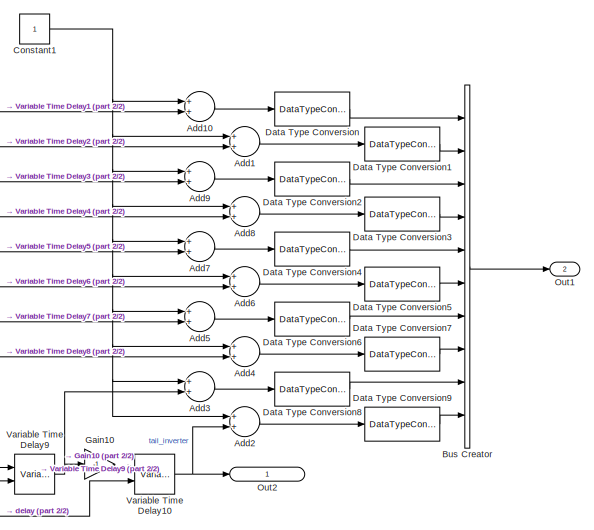
[diagram: variable-time-delay inverters/10 inverters - part 1/2, right side, full height]
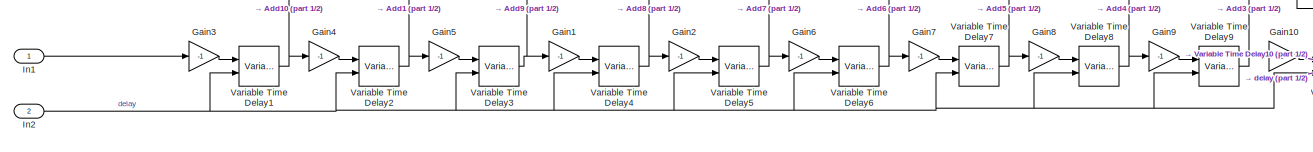
[diagram: variable-time-delay inverters/10 inverters - part 2/2, full width, bottom band]
BLOCK [SubSystem] variable-time-delay inverters/10 inverters
  Ports = [2, 2]
  RequestExecContextInheritance = off
BLOCK [Sum] variable-time-delay inverters/10 inverters/Add1
  InputSameDT = off
  OutDataTypeStr = Inherit: Inherit via internal rule
  Ports = [2, 1]
  SaturateOnIntegerOverflow = off
BLOCK [Sum] variable-time-delay inverters/10 inverters/Add10
  InputSameDT = off
  OutDataTypeStr = Inherit: Inherit via internal rule
  Ports = [2, 1]
  SaturateOnIntegerOverflow = off
BLOCK [Sum] variable-time-delay inverters/10 inverters/Add2
  InputSameDT = off
  OutDataTypeStr = Inherit: Inherit via internal rule
  Ports = [2, 1]
  SaturateOnIntegerOverflow = off
BLOCK [Sum] variable-time-delay inverters/10 inverters/Add3
  InputSameDT = off
  OutDataTypeStr = Inherit: Inherit via internal rule
  Ports = [2, 1]
  SaturateOnIntegerOverflow = off
BLOCK [Sum] variable-time-delay inverters/10 inverters/Add4
  InputSameDT = off
  OutDataTypeStr = Inherit: Inherit via internal rule
  Ports = [2, 1]
  SaturateOnIntegerOverflow = off
BLOCK [Sum] variable-time-delay inverters/10 inverters/Add5
  InputSameDT = off
  OutDataTypeStr = Inherit: Inherit via internal rule
  Ports = [2, 1]
  SaturateOnIntegerOverflow = off
BLOCK [Sum] variable-time-delay inverters/10 inverters/Add6
  InputSameDT = off
  OutDataTypeStr = Inherit: Inherit via internal rule
  Ports = [2, 1]
  SaturateOnIntegerOverflow = off
BLOCK [Sum] variable-time-delay inverters/10 inverters/Add7
  InputSameDT = off
  OutDataTypeStr = Inherit: Inherit via internal rule
  Ports = [2, 1]
  SaturateOnIntegerOverflow = off
BLOCK [Sum] variable-time-delay inverters/10 inverters/Add8
  InputSameDT = off
  OutDataTypeStr = Inherit: Inherit via internal rule
  Ports = [2, 1]
  SaturateOnIntegerOverflow = off
BLOCK [Sum] variable-time-delay inverters/10 inverters/Add9
  InputSameDT = off
  OutDataTypeStr = Inherit: Inherit via internal rule
  Ports = [2, 1]
  SaturateOnIntegerOverflow = off
BLOCK [BusCreator] variable-time-delay inverters/10 inverters/Bus Creator
  DisplayOption = bar
  InheritFromInputs = on
  Inputs = 10
  Ports = [10, 1]
BLOCK [Constant] variable-time-delay inverters/10 inverters/Constant1
  SampleTime = 1e-11
BLOCK [DataTypeConversion] variable-time-delay inverters/10 inverters/Data Type Conversion
  OutDataTypeStr = boolean
  RndMeth = Floor
  SaturateOnIntegerOverflow = off
BLOCK [DataTypeConversion] variable-time-delay inverters/10 inverters/Data Type Conversion1
  OutDataTypeStr = boolean
  RndMeth = Floor
  SaturateOnIntegerOverflow = off
BLOCK [DataTypeConversion] variable-time-delay inverters/10 inverters/Data Type Conversion2
  OutDataTypeStr = boolean
  RndMeth = Floor
  SaturateOnIntegerOverflow = off
BLOCK [DataTypeConversion] variable-time-delay inverters/10 inverters/Data Type Conversion3
  OutDataTypeStr = boolean
  RndMeth = Floor
  SaturateOnIntegerOverflow = off
BLOCK [DataTypeConversion] variable-time-delay inverters/10 inverters/Data Type Conversion4
  OutDataTypeStr = boolean
  RndMeth = Floor
  SaturateOnIntegerOverflow = off
BLOCK [DataTypeConversion] variable-time-delay inverters/10 inverters/Data Type Conversion5
  OutDataTypeStr = boolean
  RndMeth = Floor
  SaturateOnIntegerOverflow = off
BLOCK [DataTypeConversion] variable-time-delay inverters/10 inverters/Data Type Conversion6
  OutDataTypeStr = boolean
  RndMeth = Floor
  SaturateOnIntegerOverflow = off
BLOCK [DataTypeConversion] variable-time-delay inverters/10 inverters/Data Type Conversion7
  OutDataTypeStr = boolean
  RndMeth = Floor
  SaturateOnIntegerOverflow = off
BLOCK [DataTypeConversion] variable-time-delay inverters/10 inverters/Data Type Conversion8
  OutDataTypeStr = boolean
  RndMeth = Floor
  SaturateOnIntegerOverflow = off
BLOCK [DataTypeConversion] variable-time-delay inverters/10 inverters/Data Type Conversion9
  OutDataTypeStr = boolean
  RndMeth = Floor
  SaturateOnIntegerOverflow = off
BLOCK [Gain] variable-time-delay inverters/10 inverters/Gain1
  Gain = -1
  OutDataTypeStr = Inherit: Inherit via internal rule
  ParamDataTypeStr = Inherit: Inherit via internal rule
  SaturateOnIntegerOverflow = off
BLOCK [Gain] variable-time-delay inverters/10 inverters/Gain10
  Gain = -1
  OutDataTypeStr = Inherit: Inherit via internal rule
  ParamDataTypeStr = Inherit: Inherit via internal rule
  SaturateOnIntegerOverflow = off
BLOCK [Gain] variable-time-delay inverters/10 inverters/Gain2
  Gain = -1
  OutDataTypeStr = Inherit: Inherit via internal rule
  ParamDataTypeStr = Inherit: Inherit via internal rule
  SaturateOnIntegerOverflow = off
BLOCK [Gain] variable-time-delay inverters/10 inverters/Gain3
  Gain = -1
  OutDataTypeStr = Inherit: Inherit via internal rule
  ParamDataTypeStr = Inherit: Inherit via internal rule
  SaturateOnIntegerOverflow = off
BLOCK [Gain] variable-time-delay inverters/10 inverters/Gain4
  Gain = -1
  OutDataTypeStr = Inherit: Inherit via internal rule
  ParamDataTypeStr = Inherit: Inherit via internal rule
  SaturateOnIntegerOverflow = off
BLOCK [Gain] variable-time-delay inverters/10 inverters/Gain5
  Gain = -1
  OutDataTypeStr = Inherit: Inherit via internal rule
  ParamDataTypeStr = Inherit: Inherit via internal rule
  SaturateOnIntegerOverflow = off
BLOCK [Gain] variable-time-delay inverters/10 inverters/Gain6
  Gain = -1
  OutDataTypeStr = Inherit: Inherit via internal rule
  ParamDataTypeStr = Inherit: Inherit via internal rule
  SaturateOnIntegerOverflow = off
BLOCK [Gain] variable-time-delay inverters/10 inverters/Gain7
  Gain = -1
  OutDataTypeStr = Inherit: Inherit via internal rule
  ParamDataTypeStr = Inherit: Inherit via internal rule
  SaturateOnIntegerOverflow = off
BLOCK [Gain] variable-time-delay inverters/10 inverters/Gain8
  Gain = -1
  OutDataTypeStr = Inherit: Inherit via internal rule
  ParamDataTypeStr = Inherit: Inherit via internal rule
  SaturateOnIntegerOverflow = off
BLOCK [Gain] variable-time-delay inverters/10 inverters/Gain9
  Gain = -1
  OutDataTypeStr = Inherit: Inherit via internal rule
  ParamDataTypeStr = Inherit: Inherit via internal rule
  SaturateOnIntegerOverflow = off
BLOCK [Inport] variable-time-delay inverters/10 inverters/In1
  IconDisplay = Port number
BLOCK [Inport] variable-time-delay inverters/10 inverters/In2
  IconDisplay = Signal name
  Port = 2
BLOCK [Outport] variable-time-delay inverters/10 inverters/Out1
  IconDisplay = Port number
  Port = 2
BLOCK [Outport] variable-time-delay inverters/10 inverters/Out2
  IconDisplay = Signal name
BLOCK [VariableTransportDelay] variable-time-delay inverters/10 inverters/Variable Time Delay1
  InitialOutput = -1
  MaximumDelay = 10
  Ports = [2, 1]
BLOCK [VariableTransportDelay] variable-time-delay inverters/10 inverters/Variable Time Delay10
  InitialOutput = 1
  MaximumDelay = 10
  Ports = [2, 1]
BLOCK [VariableTransportDelay] variable-time-delay inverters/10 inverters/Variable Time Delay2
  InitialOutput = 1
  MaximumDelay = 10
  Ports = [2, 1]
BLOCK [VariableTransportDelay] variable-time-delay inverters/10 inverters/Variable Time Delay3
  InitialOutput = -1
  MaximumDelay = 10
  Ports = [2, 1]
BLOCK [VariableTransportDelay] variable-time-delay inverters/10 inverters/Variable Time Delay4
  InitialOutput = 1
  MaximumDelay = 10
  Ports = [2, 1]
BLOCK [VariableTransportDelay] variable-time-delay inverters/10 inverters/Variable Time Delay5
  InitialOutput = -1
  MaximumDelay = 10
  Ports = [2, 1]
BLOCK [VariableTransportDelay] variable-time-delay inverters/10 inverters/Variable Time Delay6
  InitialOutput = 1
  MaximumDelay = 10
  Ports = [2, 1]
BLOCK [VariableTransportDelay] variable-time-delay inverters/10 inverters/Variable Time Delay7
  InitialOutput = -1
  MaximumDelay = 10
  Ports = [2, 1]
BLOCK [VariableTransportDelay] variable-time-delay inverters/10 inverters/Variable Time Delay8
  InitialOutput = 1
  MaximumDelay = 10
  Ports = [2, 1]
BLOCK [VariableTransportDelay] variable-time-delay inverters/10 inverters/Variable Time Delay9
  InitialOutput = -1
  MaximumDelay = 10
  Ports = [2, 1]
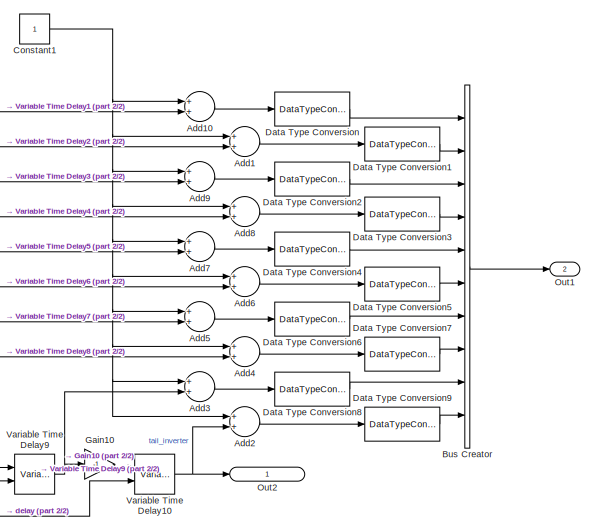
[diagram: variable-time-delay inverters/10 inverters1 - part 1/2, right side, full height]
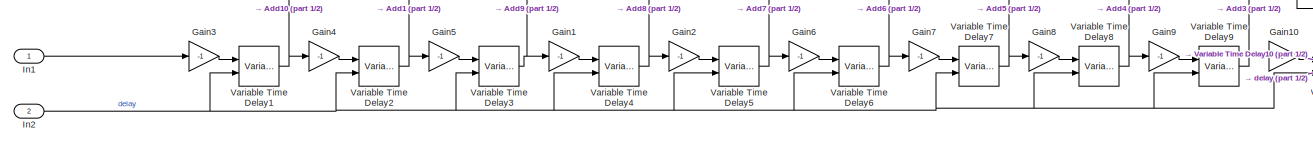
[diagram: variable-time-delay inverters/10 inverters1 - part 2/2, full width, bottom band]
BLOCK [SubSystem] variable-time-delay inverters/10 inverters1
  Ports = [2, 2]
  RequestExecContextInheritance = off
BLOCK [Sum] variable-time-delay inverters/10 inverters1/Add1
  InputSameDT = off
  OutDataTypeStr = Inherit: Inherit via internal rule
  Ports = [2, 1]
  SaturateOnIntegerOverflow = off
BLOCK [Sum] variable-time-delay inverters/10 inverters1/Add10
  InputSameDT = off
  OutDataTypeStr = Inherit: Inherit via internal rule
  Ports = [2, 1]
  SaturateOnIntegerOverflow = off
BLOCK [Sum] variable-time-delay inverters/10 inverters1/Add2
  InputSameDT = off
  OutDataTypeStr = Inherit: Inherit via internal rule
  Ports = [2, 1]
  SaturateOnIntegerOverflow = off
BLOCK [Sum] variable-time-delay inverters/10 inverters1/Add3
  InputSameDT = off
  OutDataTypeStr = Inherit: Inherit via internal rule
  Ports = [2, 1]
  SaturateOnIntegerOverflow = off
BLOCK [Sum] variable-time-delay inverters/10 inverters1/Add4
  InputSameDT = off
  OutDataTypeStr = Inherit: Inherit via internal rule
  Ports = [2, 1]
  SaturateOnIntegerOverflow = off
BLOCK [Sum] variable-time-delay inverters/10 inverters1/Add5
  InputSameDT = off
  OutDataTypeStr = Inherit: Inherit via internal rule
  Ports = [2, 1]
  SaturateOnIntegerOverflow = off
BLOCK [Sum] variable-time-delay inverters/10 inverters1/Add6
  InputSameDT = off
  OutDataTypeStr = Inherit: Inherit via internal rule
  Ports = [2, 1]
  SaturateOnIntegerOverflow = off
BLOCK [Sum] variable-time-delay inverters/10 inverters1/Add7
  InputSameDT = off
  OutDataTypeStr = Inherit: Inherit via internal rule
  Ports = [2, 1]
  SaturateOnIntegerOverflow = off
BLOCK [Sum] variable-time-delay inverters/10 inverters1/Add8
  InputSameDT = off
  OutDataTypeStr = Inherit: Inherit via internal rule
  Ports = [2, 1]
  SaturateOnIntegerOverflow = off
BLOCK [Sum] variable-time-delay inverters/10 inverters1/Add9
  InputSameDT = off
  OutDataTypeStr = Inherit: Inherit via internal rule
  Ports = [2, 1]
  SaturateOnIntegerOverflow = off
BLOCK [BusCreator] variable-time-delay inverters/10 inverters1/Bus Creator
  DisplayOption = bar
  InheritFromInputs = on
  Inputs = 10
  Ports = [10, 1]
BLOCK [Constant] variable-time-delay inverters/10 inverters1/Constant1
  SampleTime = 1e-11
BLOCK [DataTypeConversion] variable-time-delay inverters/10 inverters1/Data Type Conversion
  OutDataTypeStr = boolean
  RndMeth = Floor
  SaturateOnIntegerOverflow = off
BLOCK [DataTypeConversion] variable-time-delay inverters/10 inverters1/Data Type Conversion1
  OutDataTypeStr = boolean
  RndMeth = Floor
  SaturateOnIntegerOverflow = off
BLOCK [DataTypeConversion] variable-time-delay inverters/10 inverters1/Data Type Conversion2
  OutDataTypeStr = boolean
  RndMeth = Floor
  SaturateOnIntegerOverflow = off
BLOCK [DataTypeConversion] variable-time-delay inverters/10 inverters1/Data Type Conversion3
  OutDataTypeStr = boolean
  RndMeth = Floor
  SaturateOnIntegerOverflow = off
BLOCK [DataTypeConversion] variable-time-delay inverters/10 inverters1/Data Type Conversion4
  OutDataTypeStr = boolean
  RndMeth = Floor
  SaturateOnIntegerOverflow = off
BLOCK [DataTypeConversion] variable-time-delay inverters/10 inverters1/Data Type Conversion5
  OutDataTypeStr = boolean
  RndMeth = Floor
  SaturateOnIntegerOverflow = off
BLOCK [DataTypeConversion] variable-time-delay inverters/10 inverters1/Data Type Conversion6
  OutDataTypeStr = boolean
  RndMeth = Floor
  SaturateOnIntegerOverflow = off
BLOCK [DataTypeConversion] variable-time-delay inverters/10 inverters1/Data Type Conversion7
  OutDataTypeStr = boolean
  RndMeth = Floor
  SaturateOnIntegerOverflow = off
BLOCK [DataTypeConversion] variable-time-delay inverters/10 inverters1/Data Type Conversion8
  OutDataTypeStr = boolean
  RndMeth = Floor
  SaturateOnIntegerOverflow = off
BLOCK [DataTypeConversion] variable-time-delay inverters/10 inverters1/Data Type Conversion9
  OutDataTypeStr = boolean
  RndMeth = Floor
  SaturateOnIntegerOverflow = off
BLOCK [Gain] variable-time-delay inverters/10 inverters1/Gain1
  Gain = -1
  OutDataTypeStr = Inherit: Inherit via internal rule
  ParamDataTypeStr = Inherit: Inherit via internal rule
  SaturateOnIntegerOverflow = off
BLOCK [Gain] variable-time-delay inverters/10 inverters1/Gain10
  Gain = -1
  OutDataTypeStr = Inherit: Inherit via internal rule
  ParamDataTypeStr = Inherit: Inherit via internal rule
  SaturateOnIntegerOverflow = off
BLOCK [Gain] variable-time-delay inverters/10 inverters1/Gain2
  Gain = -1
  OutDataTypeStr = Inherit: Inherit via internal rule
  ParamDataTypeStr = Inherit: Inherit via internal rule
  SaturateOnIntegerOverflow = off
BLOCK [Gain] variable-time-delay inverters/10 inverters1/Gain3
  Gain = -1
  OutDataTypeStr = Inherit: Inherit via internal rule
  ParamDataTypeStr = Inherit: Inherit via internal rule
  SaturateOnIntegerOverflow = off
BLOCK [Gain] variable-time-delay inverters/10 inverters1/Gain4
  Gain = -1
  OutDataTypeStr = Inherit: Inherit via internal rule
  ParamDataTypeStr = Inherit: Inherit via internal rule
  SaturateOnIntegerOverflow = off
BLOCK [Gain] variable-time-delay inverters/10 inverters1/Gain5
  Gain = -1
  OutDataTypeStr = Inherit: Inherit via internal rule
  ParamDataTypeStr = Inherit: Inherit via internal rule
  SaturateOnIntegerOverflow = off
BLOCK [Gain] variable-time-delay inverters/10 inverters1/Gain6
  Gain = -1
  OutDataTypeStr = Inherit: Inherit via internal rule
  ParamDataTypeStr = Inherit: Inherit via internal rule
  SaturateOnIntegerOverflow = off
BLOCK [Gain] variable-time-delay inverters/10 inverters1/Gain7
  Gain = -1
  OutDataTypeStr = Inherit: Inherit via internal rule
  ParamDataTypeStr = Inherit: Inherit via internal rule
  SaturateOnIntegerOverflow = off
BLOCK [Gain] variable-time-delay inverters/10 inverters1/Gain8
  Gain = -1
  OutDataTypeStr = Inherit: Inherit via internal rule
  ParamDataTypeStr = Inherit: Inherit via internal rule
  SaturateOnIntegerOverflow = off
BLOCK [Gain] variable-time-delay inverters/10 inverters1/Gain9
  Gain = -1
  OutDataTypeStr = Inherit: Inherit via internal rule
  ParamDataTypeStr = Inherit: Inherit via internal rule
  SaturateOnIntegerOverflow = off
BLOCK [Inport] variable-time-delay inverters/10 inverters1/In1
  IconDisplay = Port number
BLOCK [Inport] variable-time-delay inverters/10 inverters1/In2
  IconDisplay = Signal name
  Port = 2
BLOCK [Outport] variable-time-delay inverters/10 inverters1/Out1
  IconDisplay = Port number
  Port = 2
BLOCK [Outport] variable-time-delay inverters/10 inverters1/Out2
  IconDisplay = Signal name
BLOCK [VariableTransportDelay] variable-time-delay inverters/10 inverters1/Variable Time Delay1
  InitialOutput = -1
  MaximumDelay = 10
  Ports = [2, 1]
BLOCK [VariableTransportDelay] variable-time-delay inverters/10 inverters1/Variable Time Delay10
  InitialOutput = 1
  MaximumDelay = 10
  Ports = [2, 1]
BLOCK [VariableTransportDelay] variable-time-delay inverters/10 inverters1/Variable Time Delay2
  InitialOutput = 1
  MaximumDelay = 10
  Ports = [2, 1]
BLOCK [VariableTransportDelay] variable-time-delay inverters/10 inverters1/Variable Time Delay3
  InitialOutput = -1
  MaximumDelay = 10
  Ports = [2, 1]
BLOCK [VariableTransportDelay] variable-time-delay inverters/10 inverters1/Variable Time Delay4
  InitialOutput = 1
  MaximumDelay = 10
  Ports = [2, 1]
BLOCK [VariableTransportDelay] variable-time-delay inverters/10 inverters1/Variable Time Delay5
  InitialOutput = -1
  MaximumDelay = 10
  Ports = [2, 1]
BLOCK [VariableTransportDelay] variable-time-delay inverters/10 inverters1/Variable Time Delay6
  InitialOutput = 1
  MaximumDelay = 10
  Ports = [2, 1]
BLOCK [VariableTransportDelay] variable-time-delay inverters/10 inverters1/Variable Time Delay7
  InitialOutput = -1
  MaximumDelay = 10
  Ports = [2, 1]
BLOCK [VariableTransportDelay] variable-time-delay inverters/10 inverters1/Variable Time Delay8
  InitialOutput = 1
  MaximumDelay = 10
  Ports = [2, 1]
BLOCK [VariableTransportDelay] variable-time-delay inverters/10 inverters1/Variable Time Delay9
  InitialOutput = -1
  MaximumDelay = 10
  Ports = [2, 1]
BLOCK [SubSystem] variable-time-delay inverters/10 inverters2
  Ports = [2, 2]
  RequestExecContextInheritance = off
BLOCK [Sum] variable-time-delay inverters/10 inverters2/Add1
  InputSameDT = off
  OutDataTypeStr = Inherit: Inherit via internal rule
  Ports = [2, 1]
  SaturateOnIntegerOverflow = off
BLOCK [Sum] variable-time-delay inverters/10 inverters2/Add10
  InputSameDT = off
  OutDataTypeStr = Inherit: Inherit via internal rule
  Ports = [2, 1]
  SaturateOnIntegerOverflow = off
BLOCK [Sum] variable-time-delay inverters/10 inverters2/Add2
  InputSameDT = off
  OutDataTypeStr = Inherit: Inherit via internal rule
  Ports = [2, 1]
  SaturateOnIntegerOverflow = off
BLOCK [Sum] variable-time-delay inverters/10 inverters2/Add3
  InputSameDT = off
  OutDataTypeStr = Inherit: Inherit via internal rule
  Ports = [2, 1]
  SaturateOnIntegerOverflow = off
BLOCK [Sum] variable-time-delay inverters/10 inverters2/Add4
  InputSameDT = off
  OutDataTypeStr = Inherit: Inherit via internal rule
  Ports = [2, 1]
  SaturateOnIntegerOverflow = off
BLOCK [Sum] variable-time-delay inverters/10 inverters2/Add5
  InputSameDT = off
  OutDataTypeStr = Inherit: Inherit via internal rule
  Ports = [2, 1]
  SaturateOnIntegerOverflow = off
BLOCK [Sum] variable-time-delay inverters/10 inverters2/Add6
  InputSameDT = off
  OutDataTypeStr = Inherit: Inherit via internal rule
  Ports = [2, 1]
  SaturateOnIntegerOverflow = off
BLOCK [Sum] variable-time-delay inverters/10 inverters2/Add7
  InputSameDT = off
  OutDataTypeStr = Inherit: Inherit via internal rule
  Ports = [2, 1]
  SaturateOnIntegerOverflow = off
BLOCK [Sum] variable-time-delay inverters/10 inverters2/Add8
  InputSameDT = off
  OutDataTypeStr = Inherit: Inherit via internal rule
  Ports = [2, 1]
  SaturateOnIntegerOverflow = off
BLOCK [Sum] variable-time-delay inverters/10 inverters2/Add9
  InputSameDT = off
  OutDataTypeStr = Inherit: Inherit via internal rule
  Ports = [2, 1]
  SaturateOnIntegerOverflow = off
BLOCK [BusCreator] variable-time-delay inverters/10 inverters2/Bus Creator
  DisplayOption = bar
  InheritFromInputs = on
  Inputs = 10
  Ports = [10, 1]
BLOCK [Constant] variable-time-delay inverters/10 inverters2/Constant1
  SampleTime = 1e-11
BLOCK [DataTypeConversion] variable-time-delay inverters/10 inverters2/Data Type Conversion
  OutDataTypeStr = boolean
  RndMeth = Floor
  SaturateOnIntegerOverflow = off
BLOCK [DataTypeConversion] variable-time-delay inverters/10 inverters2/Data Type Conversion1
  OutDataTypeStr = boolean
  RndMeth = Floor
  SaturateOnIntegerOverflow = off
BLOCK [DataTypeConversion] variable-time-delay inverters/10 inverters2/Data Type Conversion2
  OutDataTypeStr = boolean
  RndMeth = Floor
  SaturateOnIntegerOverflow = off
BLOCK [DataTypeConversion] variable-time-delay inverters/10 inverters2/Data Type Conversion3
  OutDataTypeStr = boolean
  RndMeth = Floor
  SaturateOnIntegerOverflow = off
BLOCK [DataTypeConversion] variable-time-delay inverters/10 inverters2/Data Type Conversion4
  OutDataTypeStr = boolean
  RndMeth = Floor
  SaturateOnIntegerOverflow = off
BLOCK [DataTypeConversion] variable-time-delay inverters/10 inverters2/Data Type Conversion5
  OutDataTypeStr = boolean
  RndMeth = Floor
  SaturateOnIntegerOverflow = off
BLOCK [DataTypeConversion] variable-time-delay inverters/10 inverters2/Data Type Conversion6
  OutDataTypeStr = boolean
  RndMeth = Floor
  SaturateOnIntegerOverflow = off
BLOCK [DataTypeConversion] variable-time-delay inverters/10 inverters2/Data Type Conversion7
  OutDataTypeStr = boolean
  RndMeth = Floor
  SaturateOnIntegerOverflow = off
BLOCK [DataTypeConversion] variable-time-delay inverters/10 inverters2/Data Type Conversion8
  OutDataTypeStr = boolean
  RndMeth = Floor
  SaturateOnIntegerOverflow = off
BLOCK [DataTypeConversion] variable-time-delay inverters/10 inverters2/Data Type Conversion9
  OutDataTypeStr = boolean
  RndMeth = Floor
  SaturateOnIntegerOverflow = off
BLOCK [Gain] variable-time-delay inverters/10 inverters2/Gain1
  Gain = -1
  OutDataTypeStr = Inherit: Inherit via internal rule
  ParamDataTypeStr = Inherit: Inherit via internal rule
  SaturateOnIntegerOverflow = off
BLOCK [Gain] variable-time-delay inverters/10 inverters2/Gain10
  Gain = -1
  OutDataTypeStr = Inherit: Inherit via internal rule
  ParamDataTypeStr = Inherit: Inherit via internal rule
  SaturateOnIntegerOverflow = off
BLOCK [Gain] variable-time-delay inverters/10 inverters2/Gain2
  Gain = -1
  OutDataTypeStr = Inherit: Inherit via internal rule
  ParamDataTypeStr = Inherit: Inherit via internal rule
  SaturateOnIntegerOverflow = off
BLOCK [Gain] variable-time-delay inverters/10 inverters2/Gain3
  Gain = -1
  OutDataTypeStr = Inherit: Inherit via internal rule
  ParamDataTypeStr = Inherit: Inherit via internal rule
  SaturateOnIntegerOverflow = off
BLOCK [Gain] variable-time-delay inverters/10 inverters2/Gain4
  Gain = -1
  OutDataTypeStr = Inherit: Inherit via internal rule
  ParamDataTypeStr = Inherit: Inherit via internal rule
  SaturateOnIntegerOverflow = off
BLOCK [Gain] variable-time-delay inverters/10 inverters2/Gain5
  Gain = -1
  OutDataTypeStr = Inherit: Inherit via internal rule
  ParamDataTypeStr = Inherit: Inherit via internal rule
  SaturateOnIntegerOverflow = off
BLOCK [Gain] variable-time-delay inverters/10 inverters2/Gain6
  Gain = -1
  OutDataTypeStr = Inherit: Inherit via internal rule
  ParamDataTypeStr = Inherit: Inherit via internal rule
  SaturateOnIntegerOverflow = off
BLOCK [Gain] variable-time-delay inverters/10 inverters2/Gain7
  Gain = -1
  OutDataTypeStr = Inherit: Inherit via internal rule
  ParamDataTypeStr = Inherit: Inherit via internal rule
  SaturateOnIntegerOverflow = off
BLOCK [Gain] variable-time-delay inverters/10 inverters2/Gain8
  Gain = -1
  OutDataTypeStr = Inherit: Inherit via internal rule
  ParamDataTypeStr = Inherit: Inherit via internal rule
  SaturateOnIntegerOverflow = off
BLOCK [Gain] variable-time-delay inverters/10 inverters2/Gain9
  Gain = -1
  OutDataTypeStr = Inherit: Inherit via internal rule
  ParamDataTypeStr = Inherit: Inherit via internal rule
  SaturateOnIntegerOverflow = off
BLOCK [Inport] variable-time-delay inverters/10 inverters2/In1
  IconDisplay = Port number
BLOCK [Inport] variable-time-delay inverters/10 inverters2/In2
  IconDisplay = Signal name
  Port = 2
BLOCK [Outport] variable-time-delay inverters/10 inverters2/Out1
  IconDisplay = Port number
  Port = 2
BLOCK [Outport] variable-time-delay inverters/10 inverters2/Out2
  IconDisplay = Signal name
BLOCK [VariableTransportDelay] variable-time-delay inverters/10 inverters2/Variable Time Delay1
  InitialOutput = -1
  MaximumDelay = 10
  Ports = [2, 1]
BLOCK [VariableTransportDelay] variable-time-delay inverters/10 inverters2/Variable Time Delay10
  InitialOutput = 1
  MaximumDelay = 10
  Ports = [2, 1]
BLOCK [VariableTransportDelay] variable-time-delay inverters/10 inverters2/Variable Time Delay2
  InitialOutput = 1
  MaximumDelay = 10
  Ports = [2, 1]
BLOCK [VariableTransportDelay] variable-time-delay inverters/10 inverters2/Variable Time Delay3
  InitialOutput = -1
  MaximumDelay = 10
  Ports = [2, 1]
BLOCK [VariableTransportDelay] variable-time-delay inverters/10 inverters2/Variable Time Delay4
  InitialOutput = 1
  MaximumDelay = 10
  Ports = [2, 1]
BLOCK [VariableTransportDelay] variable-time-delay inverters/10 inverters2/Variable Time Delay5
  InitialOutput = -1
  MaximumDelay = 10
  Ports = [2, 1]
BLOCK [VariableTransportDelay] variable-time-delay inverters/10 inverters2/Variable Time Delay6
  InitialOutput = 1
  MaximumDelay = 10
  Ports = [2, 1]
BLOCK [VariableTransportDelay] variable-time-delay inverters/10 inverters2/Variable Time Delay7
  InitialOutput = -1
  MaximumDelay = 10
  Ports = [2, 1]
BLOCK [VariableTransportDelay] variable-time-delay inverters/10 inverters2/Variable Time Delay8
  InitialOutput = 1
  MaximumDelay = 10
  Ports = [2, 1]
BLOCK [VariableTransportDelay] variable-time-delay inverters/10 inverters2/Variable Time Delay9
  InitialOutput = -1
  MaximumDelay = 10
  Ports = [2, 1]
BLOCK [BusCreator] variable-time-delay inverters/Bus Creator
  DisplayOption = bar
  InheritFromInputs = on
  Inputs = 4
  Ports = [4, 1]
BLOCK [Inport] variable-time-delay inverters/In1
  IconDisplay = Signal name
BLOCK [Outport] variable-time-delay inverters/Out1
  IconDisplay = Port number
BLOCK [SubSystem] variable-transport-delay inverters
  Commented = on
  Ports = [1, 1]
  RTWFcnNameOpts = Use subsystem name
  RTWFileNameOpts = Use function name
  RTWSystemCode = Reusable function
  RequestExecContextInheritance = off
  TreatAsAtomicUnit = on
BLOCK [SubSystem] variable-transport-delay inverters/ 3 inverters
  Ports = [2, 2]
  RequestExecContextInheritance = off
BLOCK [Sum] variable-transport-delay inverters/ 3 inverters/Add1
  InputSameDT = off
  OutDataTypeStr = Inherit: Inherit via internal rule
  Ports = [2, 1]
  SaturateOnIntegerOverflow = off
BLOCK [Sum] variable-transport-delay inverters/ 3 inverters/Add10
  InputSameDT = off
  OutDataTypeStr = Inherit: Inherit via internal rule
  Ports = [2, 1]
  SaturateOnIntegerOverflow = off
BLOCK [Sum] variable-transport-delay inverters/ 3 inverters/Add9
  InputSameDT = off
  OutDataTypeStr = Inherit: Inherit via internal rule
  Ports = [2, 1]
  SaturateOnIntegerOverflow = off
BLOCK [BusCreator] variable-transport-delay inverters/ 3 inverters/Bus Creator
  DisplayOption = bar
  InheritFromInputs = on
  Inputs = 3
  Ports = [3, 1]
BLOCK [Constant] variable-transport-delay inverters/ 3 inverters/Constant1
  SampleTime = 1e-11
BLOCK [DataTypeConversion] variable-transport-delay inverters/ 3 inverters/Data Type Conversion
  OutDataTypeStr = boolean
  RndMeth = Floor
  SaturateOnIntegerOverflow = off
BLOCK [DataTypeConversion] variable-transport-delay inverters/ 3 inverters/Data Type Conversion1
  OutDataTypeStr = boolean
  RndMeth = Floor
  SaturateOnIntegerOverflow = off
BLOCK [DataTypeConversion] variable-transport-delay inverters/ 3 inverters/Data Type Conversion2
  OutDataTypeStr = boolean
  RndMeth = Floor
  SaturateOnIntegerOverflow = off
BLOCK [Gain] variable-transport-delay inverters/ 3 inverters/Gain3
  Gain = -1
  OutDataTypeStr = Inherit: Inherit via internal rule
  ParamDataTypeStr = Inherit: Inherit via internal rule
  SaturateOnIntegerOverflow = off
BLOCK [Gain] variable-transport-delay inverters/ 3 inverters/Gain4
  Gain = -1
  OutDataTypeStr = Inherit: Inherit via internal rule
  ParamDataTypeStr = Inherit: Inherit via internal rule
  SaturateOnIntegerOverflow = off
BLOCK [Gain] variable-transport-delay inverters/ 3 inverters/Gain5
  Gain = -1
  OutDataTypeStr = Inherit: Inherit via internal rule
  ParamDataTypeStr = Inherit: Inherit via internal rule
  SaturateOnIntegerOverflow = off
BLOCK [Inport] variable-transport-delay inverters/ 3 inverters/In1
  IconDisplay = Port number
BLOCK [Inport] variable-transport-delay inverters/ 3 inverters/In2
  IconDisplay = Signal name
  Port = 2
BLOCK [Outport] variable-transport-delay inverters/ 3 inverters/Out1
  IconDisplay = Port number
  Port = 2
BLOCK [Outport] variable-transport-delay inverters/ 3 inverters/Out2
  IconDisplay = Signal name
BLOCK [VariableTransportDelay] variable-transport-delay inverters/ 3 inverters/Variable Time Delay1
  InitialOutput = -1
  MaximumDelay = 10
  Ports = [2, 1]
  VariableDelayType = Variable transport delay
BLOCK [VariableTransportDelay] variable-transport-delay inverters/ 3 inverters/Variable Time Delay2
  InitialOutput = 1
  MaximumDelay = 10
  Ports = [2, 1]
  VariableDelayType = Variable transport delay
BLOCK [VariableTransportDelay] variable-transport-delay inverters/ 3 inverters/Variable Time Delay3
  InitialOutput = -1
  MaximumDelay = 10
  Ports = [2, 1]
  VariableDelayType = Variable transport delay
BLOCK [SubSystem] variable-transport-delay inverters/10 inverters
  Ports = [2, 2]
  RequestExecContextInheritance = off
BLOCK [Sum] variable-transport-delay inverters/10 inverters/Add1
  InputSameDT = off
  OutDataTypeStr = Inherit: Inherit via internal rule
  Ports = [2, 1]
  SaturateOnIntegerOverflow = off
BLOCK [Sum] variable-transport-delay inverters/10 inverters/Add10
  InputSameDT = off
  OutDataTypeStr = Inherit: Inherit via internal rule
  Ports = [2, 1]
  SaturateOnIntegerOverflow = off
BLOCK [Sum] variable-transport-delay inverters/10 inverters/Add2
  InputSameDT = off
  OutDataTypeStr = Inherit: Inherit via internal rule
  Ports = [2, 1]
  SaturateOnIntegerOverflow = off
BLOCK [Sum] variable-transport-delay inverters/10 inverters/Add3
  InputSameDT = off
  OutDataTypeStr = Inherit: Inherit via internal rule
  Ports = [2, 1]
  SaturateOnIntegerOverflow = off
BLOCK [Sum] variable-transport-delay inverters/10 inverters/Add4
  InputSameDT = off
  OutDataTypeStr = Inherit: Inherit via internal rule
  Ports = [2, 1]
  SaturateOnIntegerOverflow = off
BLOCK [Sum] variable-transport-delay inverters/10 inverters/Add5
  InputSameDT = off
  OutDataTypeStr = Inherit: Inherit via internal rule
  Ports = [2, 1]
  SaturateOnIntegerOverflow = off
BLOCK [Sum] variable-transport-delay inverters/10 inverters/Add6
  InputSameDT = off
  OutDataTypeStr = Inherit: Inherit via internal rule
  Ports = [2, 1]
  SaturateOnIntegerOverflow = off
BLOCK [Sum] variable-transport-delay inverters/10 inverters/Add7
  InputSameDT = off
  OutDataTypeStr = Inherit: Inherit via internal rule
  Ports = [2, 1]
  SaturateOnIntegerOverflow = off
BLOCK [Sum] variable-transport-delay inverters/10 inverters/Add8
  InputSameDT = off
  OutDataTypeStr = Inherit: Inherit via internal rule
  Ports = [2, 1]
  SaturateOnIntegerOverflow = off
BLOCK [Sum] variable-transport-delay inverters/10 inverters/Add9
  InputSameDT = off
  OutDataTypeStr = Inherit: Inherit via internal rule
  Ports = [2, 1]
  SaturateOnIntegerOverflow = off
BLOCK [BusCreator] variable-transport-delay inverters/10 inverters/Bus Creator
  DisplayOption = bar
  InheritFromInputs = on
  Inputs = 10
  Ports = [10, 1]
BLOCK [Constant] variable-transport-delay inverters/10 inverters/Constant1
  SampleTime = 1e-11
BLOCK [DataTypeConversion] variable-transport-delay inverters/10 inverters/Data Type Conversion
  OutDataTypeStr = boolean
  RndMeth = Floor
  SaturateOnIntegerOverflow = off
BLOCK [DataTypeConversion] variable-transport-delay inverters/10 inverters/Data Type Conversion1
  OutDataTypeStr = boolean
  RndMeth = Floor
  SaturateOnIntegerOverflow = off
BLOCK [DataTypeConversion] variable-transport-delay inverters/10 inverters/Data Type Conversion2
  OutDataTypeStr = boolean
  RndMeth = Floor
  SaturateOnIntegerOverflow = off
BLOCK [DataTypeConversion] variable-transport-delay inverters/10 inverters/Data Type Conversion3
  OutDataTypeStr = boolean
  RndMeth = Floor
  SaturateOnIntegerOverflow = off
BLOCK [DataTypeConversion] variable-transport-delay inverters/10 inverters/Data Type Conversion4
  OutDataTypeStr = boolean
  RndMeth = Floor
  SaturateOnIntegerOverflow = off
BLOCK [DataTypeConversion] variable-transport-delay inverters/10 inverters/Data Type Conversion5
  OutDataTypeStr = boolean
  RndMeth = Floor
  SaturateOnIntegerOverflow = off
BLOCK [DataTypeConversion] variable-transport-delay inverters/10 inverters/Data Type Conversion6
  OutDataTypeStr = boolean
  RndMeth = Floor
  SaturateOnIntegerOverflow = off
BLOCK [DataTypeConversion] variable-transport-delay inverters/10 inverters/Data Type Conversion7
  OutDataTypeStr = boolean
  RndMeth = Floor
  SaturateOnIntegerOverflow = off
BLOCK [DataTypeConversion] variable-transport-delay inverters/10 inverters/Data Type Conversion8
  OutDataTypeStr = boolean
  RndMeth = Floor
  SaturateOnIntegerOverflow = off
BLOCK [DataTypeConversion] variable-transport-delay inverters/10 inverters/Data Type Conversion9
  OutDataTypeStr = boolean
  RndMeth = Floor
  SaturateOnIntegerOverflow = off
BLOCK [Gain] variable-transport-delay inverters/10 inverters/Gain1
  Gain = -1
  OutDataTypeStr = Inherit: Inherit via internal rule
  ParamDataTypeStr = Inherit: Inherit via internal rule
  SaturateOnIntegerOverflow = off
BLOCK [Gain] variable-transport-delay inverters/10 inverters/Gain10
  Gain = -1
  OutDataTypeStr = Inherit: Inherit via internal rule
  ParamDataTypeStr = Inherit: Inherit via internal rule
  SaturateOnIntegerOverflow = off
BLOCK [Gain] variable-transport-delay inverters/10 inverters/Gain2
  Gain = -1
  OutDataTypeStr = Inherit: Inherit via internal rule
  ParamDataTypeStr = Inherit: Inherit via internal rule
  SaturateOnIntegerOverflow = off
BLOCK [Gain] variable-transport-delay inverters/10 inverters/Gain3
  Gain = -1
  OutDataTypeStr = Inherit: Inherit via internal rule
  ParamDataTypeStr = Inherit: Inherit via internal rule
  SaturateOnIntegerOverflow = off
BLOCK [Gain] variable-transport-delay inverters/10 inverters/Gain4
  Gain = -1
  OutDataTypeStr = Inherit: Inherit via internal rule
  ParamDataTypeStr = Inherit: Inherit via internal rule
  SaturateOnIntegerOverflow = off
BLOCK [Gain] variable-transport-delay inverters/10 inverters/Gain5
  Gain = -1
  OutDataTypeStr = Inherit: Inherit via internal rule
  ParamDataTypeStr = Inherit: Inherit via internal rule
  SaturateOnIntegerOverflow = off
BLOCK [Gain] variable-transport-delay inverters/10 inverters/Gain6
  Gain = -1
  OutDataTypeStr = Inherit: Inherit via internal rule
  ParamDataTypeStr = Inherit: Inherit via internal rule
  SaturateOnIntegerOverflow = off
BLOCK [Gain] variable-transport-delay inverters/10 inverters/Gain7
  Gain = -1
  OutDataTypeStr = Inherit: Inherit via internal rule
  ParamDataTypeStr = Inherit: Inherit via internal rule
  SaturateOnIntegerOverflow = off
BLOCK [Gain] variable-transport-delay inverters/10 inverters/Gain8
  Gain = -1
  OutDataTypeStr = Inherit: Inherit via internal rule
  ParamDataTypeStr = Inherit: Inherit via internal rule
  SaturateOnIntegerOverflow = off
BLOCK [Gain] variable-transport-delay inverters/10 inverters/Gain9
  Gain = -1
  OutDataTypeStr = Inherit: Inherit via internal rule
  ParamDataTypeStr = Inherit: Inherit via internal rule
  SaturateOnIntegerOverflow = off
BLOCK [Inport] variable-transport-delay inverters/10 inverters/In1
  IconDisplay = Port number
BLOCK [Inport] variable-transport-delay inverters/10 inverters/In2
  IconDisplay = Signal name
  Port = 2
BLOCK [Outport] variable-transport-delay inverters/10 inverters/Out1
  IconDisplay = Port number
  Port = 2
BLOCK [Outport] variable-transport-delay inverters/10 inverters/Out2
  IconDisplay = Signal name
BLOCK [VariableTransportDelay] variable-transport-delay inverters/10 inverters/Variable Time Delay1
  InitialOutput = -1
  MaximumDelay = 10
  Ports = [2, 1]
  VariableDelayType = Variable transport delay
BLOCK [VariableTransportDelay] variable-transport-delay inverters/10 inverters/Variable Time Delay10
  InitialOutput = 1
  MaximumDelay = 10
  Ports = [2, 1]
  VariableDelayType = Variable transport delay
BLOCK [VariableTransportDelay] variable-transport-delay inverters/10 inverters/Variable Time Delay2
  InitialOutput = 1
  MaximumDelay = 10
  Ports = [2, 1]
  VariableDelayType = Variable transport delay
BLOCK [VariableTransportDelay] variable-transport-delay inverters/10 inverters/Variable Time Delay3
  InitialOutput = -1
  MaximumDelay = 10
  Ports = [2, 1]
  VariableDelayType = Variable transport delay
BLOCK [VariableTransportDelay] variable-transport-delay inverters/10 inverters/Variable Time Delay4
  InitialOutput = 1
  MaximumDelay = 10
  Ports = [2, 1]
  VariableDelayType = Variable transport delay
BLOCK [VariableTransportDelay] variable-transport-delay inverters/10 inverters/Variable Time Delay5
  InitialOutput = -1
  MaximumDelay = 10
  Ports = [2, 1]
  VariableDelayType = Variable transport delay
BLOCK [VariableTransportDelay] variable-transport-delay inverters/10 inverters/Variable Time Delay6
  InitialOutput = 1
  MaximumDelay = 10
  Ports = [2, 1]
  VariableDelayType = Variable transport delay
BLOCK [VariableTransportDelay] variable-transport-delay inverters/10 inverters/Variable Time Delay7
  InitialOutput = -1
  MaximumDelay = 10
  Ports = [2, 1]
  VariableDelayType = Variable transport delay
BLOCK [VariableTransportDelay] variable-transport-delay inverters/10 inverters/Variable Time Delay8
  InitialOutput = 1
  MaximumDelay = 10
  Ports = [2, 1]
  VariableDelayType = Variable transport delay
BLOCK [VariableTransportDelay] variable-transport-delay inverters/10 inverters/Variable Time Delay9
  InitialOutput = -1
  MaximumDelay = 10
  Ports = [2, 1]
  VariableDelayType = Variable transport delay
BLOCK [SubSystem] variable-transport-delay inverters/10 inverters1
  Ports = [2, 2]
  RequestExecContextInheritance = off
BLOCK [Sum] variable-transport-delay inverters/10 inverters1/Add1
  InputSameDT = off
  OutDataTypeStr = Inherit: Inherit via internal rule
  Ports = [2, 1]
  SaturateOnIntegerOverflow = off
BLOCK [Sum] variable-transport-delay inverters/10 inverters1/Add10
  InputSameDT = off
  OutDataTypeStr = Inherit: Inherit via internal rule
  Ports = [2, 1]
  SaturateOnIntegerOverflow = off
BLOCK [Sum] variable-transport-delay inverters/10 inverters1/Add2
  InputSameDT = off
  OutDataTypeStr = Inherit: Inherit via internal rule
  Ports = [2, 1]
  SaturateOnIntegerOverflow = off
BLOCK [Sum] variable-transport-delay inverters/10 inverters1/Add3
  InputSameDT = off
  OutDataTypeStr = Inherit: Inherit via internal rule
  Ports = [2, 1]
  SaturateOnIntegerOverflow = off
BLOCK [Sum] variable-transport-delay inverters/10 inverters1/Add4
  InputSameDT = off
  OutDataTypeStr = Inherit: Inherit via internal rule
  Ports = [2, 1]
  SaturateOnIntegerOverflow = off
BLOCK [Sum] variable-transport-delay inverters/10 inverters1/Add5
  InputSameDT = off
  OutDataTypeStr = Inherit: Inherit via internal rule
  Ports = [2, 1]
  SaturateOnIntegerOverflow = off
BLOCK [Sum] variable-transport-delay inverters/10 inverters1/Add6
  InputSameDT = off
  OutDataTypeStr = Inherit: Inherit via internal rule
  Ports = [2, 1]
  SaturateOnIntegerOverflow = off
BLOCK [Sum] variable-transport-delay inverters/10 inverters1/Add7
  InputSameDT = off
  OutDataTypeStr = Inherit: Inherit via internal rule
  Ports = [2, 1]
  SaturateOnIntegerOverflow = off
BLOCK [Sum] variable-transport-delay inverters/10 inverters1/Add8
  InputSameDT = off
  OutDataTypeStr = Inherit: Inherit via internal rule
  Ports = [2, 1]
  SaturateOnIntegerOverflow = off
BLOCK [Sum] variable-transport-delay inverters/10 inverters1/Add9
  InputSameDT = off
  OutDataTypeStr = Inherit: Inherit via internal rule
  Ports = [2, 1]
  SaturateOnIntegerOverflow = off
BLOCK [BusCreator] variable-transport-delay inverters/10 inverters1/Bus Creator
  DisplayOption = bar
  InheritFromInputs = on
  Inputs = 10
  Ports = [10, 1]
BLOCK [Constant] variable-transport-delay inverters/10 inverters1/Constant1
  SampleTime = 1e-11
BLOCK [DataTypeConversion] variable-transport-delay inverters/10 inverters1/Data Type Conversion
  OutDataTypeStr = boolean
  RndMeth = Floor
  SaturateOnIntegerOverflow = off
BLOCK [DataTypeConversion] variable-transport-delay inverters/10 inverters1/Data Type Conversion1
  OutDataTypeStr = boolean
  RndMeth = Floor
  SaturateOnIntegerOverflow = off
BLOCK [DataTypeConversion] variable-transport-delay inverters/10 inverters1/Data Type Conversion2
  OutDataTypeStr = boolean
  RndMeth = Floor
  SaturateOnIntegerOverflow = off
BLOCK [DataTypeConversion] variable-transport-delay inverters/10 inverters1/Data Type Conversion3
  OutDataTypeStr = boolean
  RndMeth = Floor
  SaturateOnIntegerOverflow = off
BLOCK [DataTypeConversion] variable-transport-delay inverters/10 inverters1/Data Type Conversion4
  OutDataTypeStr = boolean
  RndMeth = Floor
  SaturateOnIntegerOverflow = off
BLOCK [DataTypeConversion] variable-transport-delay inverters/10 inverters1/Data Type Conversion5
  OutDataTypeStr = boolean
  RndMeth = Floor
  SaturateOnIntegerOverflow = off
BLOCK [DataTypeConversion] variable-transport-delay inverters/10 inverters1/Data Type Conversion6
  OutDataTypeStr = boolean
  RndMeth = Floor
  SaturateOnIntegerOverflow = off
BLOCK [DataTypeConversion] variable-transport-delay inverters/10 inverters1/Data Type Conversion7
  OutDataTypeStr = boolean
  RndMeth = Floor
  SaturateOnIntegerOverflow = off
BLOCK [DataTypeConversion] variable-transport-delay inverters/10 inverters1/Data Type Conversion8
  OutDataTypeStr = boolean
  RndMeth = Floor
  SaturateOnIntegerOverflow = off
BLOCK [DataTypeConversion] variable-transport-delay inverters/10 inverters1/Data Type Conversion9
  OutDataTypeStr = boolean
  RndMeth = Floor
  SaturateOnIntegerOverflow = off
BLOCK [Gain] variable-transport-delay inverters/10 inverters1/Gain1
  Gain = -1
  OutDataTypeStr = Inherit: Inherit via internal rule
  ParamDataTypeStr = Inherit: Inherit via internal rule
  SaturateOnIntegerOverflow = off
BLOCK [Gain] variable-transport-delay inverters/10 inverters1/Gain10
  Gain = -1
  OutDataTypeStr = Inherit: Inherit via internal rule
  ParamDataTypeStr = Inherit: Inherit via internal rule
  SaturateOnIntegerOverflow = off
BLOCK [Gain] variable-transport-delay inverters/10 inverters1/Gain2
  Gain = -1
  OutDataTypeStr = Inherit: Inherit via internal rule
  ParamDataTypeStr = Inherit: Inherit via internal rule
  SaturateOnIntegerOverflow = off
BLOCK [Gain] variable-transport-delay inverters/10 inverters1/Gain3
  Gain = -1
  OutDataTypeStr = Inherit: Inherit via internal rule
  ParamDataTypeStr = Inherit: Inherit via internal rule
  SaturateOnIntegerOverflow = off
BLOCK [Gain] variable-transport-delay inverters/10 inverters1/Gain4
  Gain = -1
  OutDataTypeStr = Inherit: Inherit via internal rule
  ParamDataTypeStr = Inherit: Inherit via internal rule
  SaturateOnIntegerOverflow = off
BLOCK [Gain] variable-transport-delay inverters/10 inverters1/Gain5
  Gain = -1
  OutDataTypeStr = Inherit: Inherit via internal rule
  ParamDataTypeStr = Inherit: Inherit via internal rule
  SaturateOnIntegerOverflow = off
BLOCK [Gain] variable-transport-delay inverters/10 inverters1/Gain6
  Gain = -1
  OutDataTypeStr = Inherit: Inherit via internal rule
  ParamDataTypeStr = Inherit: Inherit via internal rule
  SaturateOnIntegerOverflow = off
BLOCK [Gain] variable-transport-delay inverters/10 inverters1/Gain7
  Gain = -1
  OutDataTypeStr = Inherit: Inherit via internal rule
  ParamDataTypeStr = Inherit: Inherit via internal rule
  SaturateOnIntegerOverflow = off
BLOCK [Gain] variable-transport-delay inverters/10 inverters1/Gain8
  Gain = -1
  OutDataTypeStr = Inherit: Inherit via internal rule
  ParamDataTypeStr = Inherit: Inherit via internal rule
  SaturateOnIntegerOverflow = off
BLOCK [Gain] variable-transport-delay inverters/10 inverters1/Gain9
  Gain = -1
  OutDataTypeStr = Inherit: Inherit via internal rule
  ParamDataTypeStr = Inherit: Inherit via internal rule
  SaturateOnIntegerOverflow = off
BLOCK [Inport] variable-transport-delay inverters/10 inverters1/In1
  IconDisplay = Port number
BLOCK [Inport] variable-transport-delay inverters/10 inverters1/In2
  IconDisplay = Signal name
  Port = 2
BLOCK [Outport] variable-transport-delay inverters/10 inverters1/Out1
  IconDisplay = Port number
  Port = 2
BLOCK [Outport] variable-transport-delay inverters/10 inverters1/Out2
  IconDisplay = Signal name
BLOCK [VariableTransportDelay] variable-transport-delay inverters/10 inverters1/Variable Time Delay1
  InitialOutput = -1
  MaximumDelay = 10
  Ports = [2, 1]
  VariableDelayType = Variable transport delay
BLOCK [VariableTransportDelay] variable-transport-delay inverters/10 inverters1/Variable Time Delay10
  InitialOutput = 1
  MaximumDelay = 10
  Ports = [2, 1]
  VariableDelayType = Variable transport delay
BLOCK [VariableTransportDelay] variable-transport-delay inverters/10 inverters1/Variable Time Delay2
  InitialOutput = 1
  MaximumDelay = 10
  Ports = [2, 1]
  VariableDelayType = Variable transport delay
BLOCK [VariableTransportDelay] variable-transport-delay inverters/10 inverters1/Variable Time Delay3
  InitialOutput = -1
  MaximumDelay = 10
  Ports = [2, 1]
  VariableDelayType = Variable transport delay
BLOCK [VariableTransportDelay] variable-transport-delay inverters/10 inverters1/Variable Time Delay4
  InitialOutput = 1
  MaximumDelay = 10
  Ports = [2, 1]
  VariableDelayType = Variable transport delay
BLOCK [VariableTransportDelay] variable-transport-delay inverters/10 inverters1/Variable Time Delay5
  InitialOutput = -1
  MaximumDelay = 10
  Ports = [2, 1]
  VariableDelayType = Variable transport delay
BLOCK [VariableTransportDelay] variable-transport-delay inverters/10 inverters1/Variable Time Delay6
  InitialOutput = 1
  MaximumDelay = 10
  Ports = [2, 1]
  VariableDelayType = Variable transport delay
BLOCK [VariableTransportDelay] variable-transport-delay inverters/10 inverters1/Variable Time Delay7
  InitialOutput = -1
  MaximumDelay = 10
  Ports = [2, 1]
  VariableDelayType = Variable transport delay
BLOCK [VariableTransportDelay] variable-transport-delay inverters/10 inverters1/Variable Time Delay8
  InitialOutput = 1
  MaximumDelay = 10
  Ports = [2, 1]
  VariableDelayType = Variable transport delay
BLOCK [VariableTransportDelay] variable-transport-delay inverters/10 inverters1/Variable Time Delay9
  InitialOutput = -1
  MaximumDelay = 10
  Ports = [2, 1]
  VariableDelayType = Variable transport delay
BLOCK [SubSystem] variable-transport-delay inverters/10 inverters2
  Ports = [2, 2]
  RequestExecContextInheritance = off
BLOCK [Sum] variable-transport-delay inverters/10 inverters2/Add1
  InputSameDT = off
  OutDataTypeStr = Inherit: Inherit via internal rule
  Ports = [2, 1]
  SaturateOnIntegerOverflow = off
BLOCK [Sum] variable-transport-delay inverters/10 inverters2/Add10
  InputSameDT = off
  OutDataTypeStr = Inherit: Inherit via internal rule
  Ports = [2, 1]
  SaturateOnIntegerOverflow = off
BLOCK [Sum] variable-transport-delay inverters/10 inverters2/Add2
  InputSameDT = off
  OutDataTypeStr = Inherit: Inherit via internal rule
  Ports = [2, 1]
  SaturateOnIntegerOverflow = off
BLOCK [Sum] variable-transport-delay inverters/10 inverters2/Add3
  InputSameDT = off
  OutDataTypeStr = Inherit: Inherit via internal rule
  Ports = [2, 1]
  SaturateOnIntegerOverflow = off
BLOCK [Sum] variable-transport-delay inverters/10 inverters2/Add4
  InputSameDT = off
  OutDataTypeStr = Inherit: Inherit via internal rule
  Ports = [2, 1]
  SaturateOnIntegerOverflow = off
BLOCK [Sum] variable-transport-delay inverters/10 inverters2/Add5
  InputSameDT = off
  OutDataTypeStr = Inherit: Inherit via internal rule
  Ports = [2, 1]
  SaturateOnIntegerOverflow = off
BLOCK [Sum] variable-transport-delay inverters/10 inverters2/Add6
  InputSameDT = off
  OutDataTypeStr = Inherit: Inherit via internal rule
  Ports = [2, 1]
  SaturateOnIntegerOverflow = off
BLOCK [Sum] variable-transport-delay inverters/10 inverters2/Add7
  InputSameDT = off
  OutDataTypeStr = Inherit: Inherit via internal rule
  Ports = [2, 1]
  SaturateOnIntegerOverflow = off
BLOCK [Sum] variable-transport-delay inverters/10 inverters2/Add8
  InputSameDT = off
  OutDataTypeStr = Inherit: Inherit via internal rule
  Ports = [2, 1]
  SaturateOnIntegerOverflow = off
BLOCK [Sum] variable-transport-delay inverters/10 inverters2/Add9
  InputSameDT = off
  OutDataTypeStr = Inherit: Inherit via internal rule
  Ports = [2, 1]
  SaturateOnIntegerOverflow = off
BLOCK [BusCreator] variable-transport-delay inverters/10 inverters2/Bus Creator
  DisplayOption = bar
  InheritFromInputs = on
  Inputs = 10
  Ports = [10, 1]
BLOCK [Constant] variable-transport-delay inverters/10 inverters2/Constant1
  SampleTime = 1e-11
BLOCK [DataTypeConversion] variable-transport-delay inverters/10 inverters2/Data Type Conversion
  OutDataTypeStr = boolean
  RndMeth = Floor
  SaturateOnIntegerOverflow = off
BLOCK [DataTypeConversion] variable-transport-delay inverters/10 inverters2/Data Type Conversion1
  OutDataTypeStr = boolean
  RndMeth = Floor
  SaturateOnIntegerOverflow = off
BLOCK [DataTypeConversion] variable-transport-delay inverters/10 inverters2/Data Type Conversion2
  OutDataTypeStr = boolean
  RndMeth = Floor
  SaturateOnIntegerOverflow = off
BLOCK [DataTypeConversion] variable-transport-delay inverters/10 inverters2/Data Type Conversion3
  OutDataTypeStr = boolean
  RndMeth = Floor
  SaturateOnIntegerOverflow = off
BLOCK [DataTypeConversion] variable-transport-delay inverters/10 inverters2/Data Type Conversion4
  OutDataTypeStr = boolean
  RndMeth = Floor
  SaturateOnIntegerOverflow = off
BLOCK [DataTypeConversion] variable-transport-delay inverters/10 inverters2/Data Type Conversion5
  OutDataTypeStr = boolean
  RndMeth = Floor
  SaturateOnIntegerOverflow = off
BLOCK [DataTypeConversion] variable-transport-delay inverters/10 inverters2/Data Type Conversion6
  OutDataTypeStr = boolean
  RndMeth = Floor
  SaturateOnIntegerOverflow = off
BLOCK [DataTypeConversion] variable-transport-delay inverters/10 inverters2/Data Type Conversion7
  OutDataTypeStr = boolean
  RndMeth = Floor
  SaturateOnIntegerOverflow = off
BLOCK [DataTypeConversion] variable-transport-delay inverters/10 inverters2/Data Type Conversion8
  OutDataTypeStr = boolean
  RndMeth = Floor
  SaturateOnIntegerOverflow = off
BLOCK [DataTypeConversion] variable-transport-delay inverters/10 inverters2/Data Type Conversion9
  OutDataTypeStr = boolean
  RndMeth = Floor
  SaturateOnIntegerOverflow = off
BLOCK [Gain] variable-transport-delay inverters/10 inverters2/Gain1
  Gain = -1
  OutDataTypeStr = Inherit: Inherit via internal rule
  ParamDataTypeStr = Inherit: Inherit via internal rule
  SaturateOnIntegerOverflow = off
BLOCK [Gain] variable-transport-delay inverters/10 inverters2/Gain10
  Gain = -1
  OutDataTypeStr = Inherit: Inherit via internal rule
  ParamDataTypeStr = Inherit: Inherit via internal rule
  SaturateOnIntegerOverflow = off
BLOCK [Gain] variable-transport-delay inverters/10 inverters2/Gain2
  Gain = -1
  OutDataTypeStr = Inherit: Inherit via internal rule
  ParamDataTypeStr = Inherit: Inherit via internal rule
  SaturateOnIntegerOverflow = off
BLOCK [Gain] variable-transport-delay inverters/10 inverters2/Gain3
  Gain = -1
  OutDataTypeStr = Inherit: Inherit via internal rule
  ParamDataTypeStr = Inherit: Inherit via internal rule
  SaturateOnIntegerOverflow = off
BLOCK [Gain] variable-transport-delay inverters/10 inverters2/Gain4
  Gain = -1
  OutDataTypeStr = Inherit: Inherit via internal rule
  ParamDataTypeStr = Inherit: Inherit via internal rule
  SaturateOnIntegerOverflow = off
BLOCK [Gain] variable-transport-delay inverters/10 inverters2/Gain5
  Gain = -1
  OutDataTypeStr = Inherit: Inherit via internal rule
  ParamDataTypeStr = Inherit: Inherit via internal rule
  SaturateOnIntegerOverflow = off
BLOCK [Gain] variable-transport-delay inverters/10 inverters2/Gain6
  Gain = -1
  OutDataTypeStr = Inherit: Inherit via internal rule
  ParamDataTypeStr = Inherit: Inherit via internal rule
  SaturateOnIntegerOverflow = off
BLOCK [Gain] variable-transport-delay inverters/10 inverters2/Gain7
  Gain = -1
  OutDataTypeStr = Inherit: Inherit via internal rule
  ParamDataTypeStr = Inherit: Inherit via internal rule
  SaturateOnIntegerOverflow = off
BLOCK [Gain] variable-transport-delay inverters/10 inverters2/Gain8
  Gain = -1
  OutDataTypeStr = Inherit: Inherit via internal rule
  ParamDataTypeStr = Inherit: Inherit via internal rule
  SaturateOnIntegerOverflow = off
BLOCK [Gain] variable-transport-delay inverters/10 inverters2/Gain9
  Gain = -1
  OutDataTypeStr = Inherit: Inherit via internal rule
  ParamDataTypeStr = Inherit: Inherit via internal rule
  SaturateOnIntegerOverflow = off
BLOCK [Inport] variable-transport-delay inverters/10 inverters2/In1
  IconDisplay = Port number
BLOCK [Inport] variable-transport-delay inverters/10 inverters2/In2
  IconDisplay = Signal name
  Port = 2
BLOCK [Outport] variable-transport-delay inverters/10 inverters2/Out1
  IconDisplay = Port number
  Port = 2
BLOCK [Outport] variable-transport-delay inverters/10 inverters2/Out2
  IconDisplay = Signal name
BLOCK [VariableTransportDelay] variable-transport-delay inverters/10 inverters2/Variable Time Delay1
  InitialOutput = -1
  MaximumDelay = 10
  Ports = [2, 1]
  VariableDelayType = Variable transport delay
BLOCK [VariableTransportDelay] variable-transport-delay inverters/10 inverters2/Variable Time Delay10
  InitialOutput = 1
  MaximumDelay = 10
  Ports = [2, 1]
  VariableDelayType = Variable transport delay
BLOCK [VariableTransportDelay] variable-transport-delay inverters/10 inverters2/Variable Time Delay2
  InitialOutput = 1
  MaximumDelay = 10
  Ports = [2, 1]
  VariableDelayType = Variable transport delay
BLOCK [VariableTransportDelay] variable-transport-delay inverters/10 inverters2/Variable Time Delay3
  InitialOutput = -1
  MaximumDelay = 10
  Ports = [2, 1]
  VariableDelayType = Variable transport delay
BLOCK [VariableTransportDelay] variable-transport-delay inverters/10 inverters2/Variable Time Delay4
  InitialOutput = 1
  MaximumDelay = 10
  Ports = [2, 1]
  VariableDelayType = Variable transport delay
BLOCK [VariableTransportDelay] variable-transport-delay inverters/10 inverters2/Variable Time Delay5
  InitialOutput = -1
  MaximumDelay = 10
  Ports = [2, 1]
  VariableDelayType = Variable transport delay
BLOCK [VariableTransportDelay] variable-transport-delay inverters/10 inverters2/Variable Time Delay6
  InitialOutput = 1
  MaximumDelay = 10
  Ports = [2, 1]
  VariableDelayType = Variable transport delay
BLOCK [VariableTransportDelay] variable-transport-delay inverters/10 inverters2/Variable Time Delay7
  InitialOutput = -1
  MaximumDelay = 10
  Ports = [2, 1]
  VariableDelayType = Variable transport delay
BLOCK [VariableTransportDelay] variable-transport-delay inverters/10 inverters2/Variable Time Delay8
  InitialOutput = 1
  MaximumDelay = 10
  Ports = [2, 1]
  VariableDelayType = Variable transport delay
BLOCK [VariableTransportDelay] variable-transport-delay inverters/10 inverters2/Variable Time Delay9
  InitialOutput = -1
  MaximumDelay = 10
  Ports = [2, 1]
  VariableDelayType = Variable transport delay
BLOCK [BusCreator] variable-transport-delay inverters/Bus Creator
  DisplayOption = bar
  InheritFromInputs = on
  Inputs = 4
  Ports = [4, 1]
BLOCK [Inport] variable-transport-delay inverters/In1
  IconDisplay = Signal name
BLOCK [Outport] variable-transport-delay inverters/Out1
  IconDisplay = Port number
BLOCK [SubSystem] variable-transport-delay inverters1
  Ports = [1, 1]
  RTWFcnNameOpts = Use subsystem name
  RTWFileNameOpts = Use function name
  RTWSystemCode = Reusable function
  RequestExecContextInheritance = off
  TreatAsAtomicUnit = on
BLOCK [SubSystem] variable-transport-delay inverters1/10 inverters
  Ports = [2, 2]
  RequestExecContextInheritance = off
BLOCK [Sum] variable-transport-delay inverters1/10 inverters/Add1
  InputSameDT = off
  OutDataTypeStr = Inherit: Inherit via internal rule
  Ports = [2, 1]
  SaturateOnIntegerOverflow = off
BLOCK [Sum] variable-transport-delay inverters1/10 inverters/Add10
  InputSameDT = off
  OutDataTypeStr = Inherit: Inherit via internal rule
  Ports = [2, 1]
  SaturateOnIntegerOverflow = off
BLOCK [Sum] variable-transport-delay inverters1/10 inverters/Add2
  InputSameDT = off
  OutDataTypeStr = Inherit: Inherit via internal rule
  Ports = [2, 1]
  SaturateOnIntegerOverflow = off
BLOCK [Sum] variable-transport-delay inverters1/10 inverters/Add3
  InputSameDT = off
  OutDataTypeStr = Inherit: Inherit via internal rule
  Ports = [2, 1]
  SaturateOnIntegerOverflow = off
BLOCK [Sum] variable-transport-delay inverters1/10 inverters/Add4
  InputSameDT = off
  OutDataTypeStr = Inherit: Inherit via internal rule
  Ports = [2, 1]
  SaturateOnIntegerOverflow = off
BLOCK [Sum] variable-transport-delay inverters1/10 inverters/Add5
  InputSameDT = off
  OutDataTypeStr = Inherit: Inherit via internal rule
  Ports = [2, 1]
  SaturateOnIntegerOverflow = off
BLOCK [Sum] variable-transport-delay inverters1/10 inverters/Add6
  InputSameDT = off
  OutDataTypeStr = Inherit: Inherit via internal rule
  Ports = [2, 1]
  SaturateOnIntegerOverflow = off
BLOCK [Sum] variable-transport-delay inverters1/10 inverters/Add7
  InputSameDT = off
  OutDataTypeStr = Inherit: Inherit via internal rule
  Ports = [2, 1]
  SaturateOnIntegerOverflow = off
BLOCK [Sum] variable-transport-delay inverters1/10 inverters/Add8
  InputSameDT = off
  OutDataTypeStr = Inherit: Inherit via internal rule
  Ports = [2, 1]
  SaturateOnIntegerOverflow = off
BLOCK [Sum] variable-transport-delay inverters1/10 inverters/Add9
  InputSameDT = off
  OutDataTypeStr = Inherit: Inherit via internal rule
  Ports = [2, 1]
  SaturateOnIntegerOverflow = off
BLOCK [BusCreator] variable-transport-delay inverters1/10 inverters/Bus Creator
  DisplayOption = bar
  InheritFromInputs = on
  Inputs = 10
  Ports = [10, 1]
BLOCK [Constant] variable-transport-delay inverters1/10 inverters/Constant1
  SampleTime = 1e-11
BLOCK [DataTypeConversion] variable-transport-delay inverters1/10 inverters/Data Type Conversion
  OutDataTypeStr = boolean
  RndMeth = Floor
  SaturateOnIntegerOverflow = off
BLOCK [DataTypeConversion] variable-transport-delay inverters1/10 inverters/Data Type Conversion1
  OutDataTypeStr = boolean
  RndMeth = Floor
  SaturateOnIntegerOverflow = off
BLOCK [DataTypeConversion] variable-transport-delay inverters1/10 inverters/Data Type Conversion2
  OutDataTypeStr = boolean
  RndMeth = Floor
  SaturateOnIntegerOverflow = off
BLOCK [DataTypeConversion] variable-transport-delay inverters1/10 inverters/Data Type Conversion3
  OutDataTypeStr = boolean
  RndMeth = Floor
  SaturateOnIntegerOverflow = off
BLOCK [DataTypeConversion] variable-transport-delay inverters1/10 inverters/Data Type Conversion4
  OutDataTypeStr = boolean
  RndMeth = Floor
  SaturateOnIntegerOverflow = off
BLOCK [DataTypeConversion] variable-transport-delay inverters1/10 inverters/Data Type Conversion5
  OutDataTypeStr = boolean
  RndMeth = Floor
  SaturateOnIntegerOverflow = off
BLOCK [DataTypeConversion] variable-transport-delay inverters1/10 inverters/Data Type Conversion6
  OutDataTypeStr = boolean
  RndMeth = Floor
  SaturateOnIntegerOverflow = off
BLOCK [DataTypeConversion] variable-transport-delay inverters1/10 inverters/Data Type Conversion7
  OutDataTypeStr = boolean
  RndMeth = Floor
  SaturateOnIntegerOverflow = off
BLOCK [DataTypeConversion] variable-transport-delay inverters1/10 inverters/Data Type Conversion8
  OutDataTypeStr = boolean
  RndMeth = Floor
  SaturateOnIntegerOverflow = off
BLOCK [DataTypeConversion] variable-transport-delay inverters1/10 inverters/Data Type Conversion9
  OutDataTypeStr = boolean
  RndMeth = Floor
  SaturateOnIntegerOverflow = off
BLOCK [Inport] variable-transport-delay inverters1/10 inverters/In1
  IconDisplay = Port number
BLOCK [Inport] variable-transport-delay inverters1/10 inverters/In2
  IconDisplay = Signal name
  Port = 2
BLOCK [SubSystem] variable-transport-delay inverters1/10 inverters/Inverter 
  Ports = [2, 1]
  RequestExecContextInheritance = off
BLOCK [Constant] variable-transport-delay inverters1/10 inverters/Inverter /Constant3
  SampleTime = -1
  Value = -1
BLOCK [Constant] variable-transport-delay inverters1/10 inverters/Inverter /Constant4
  SampleTime = -1
BLOCK [Inport] variable-transport-delay inverters1/10 inverters/Inverter /In1
  IconDisplay = Port number
BLOCK [Inport] variable-transport-delay inverters1/10 inverters/Inverter /In2
  IconDisplay = Signal name
  Port = 2
BLOCK [Integrator] variable-transport-delay inverters1/10 inverters/Inverter /Integrator
  InitialCondition = 1
  LimitOutput = on
  LowerSaturationLimit = -1
  Ports = [1, 1]
  UpperSaturationLimit = 1
BLOCK [Outport] variable-transport-delay inverters1/10 inverters/Inverter /Out1
  IconDisplay = Port number
BLOCK [Product] variable-transport-delay inverters1/10 inverters/Inverter /Product1
  InputSameDT = off
  OutDataTypeStr = Inherit: Inherit via internal rule
  Ports = [2, 1]
  RndMeth = Floor
  SaturateOnIntegerOverflow = off
BLOCK [Switch] variable-transport-delay inverters1/10 inverters/Inverter /Switch3
  Criteria = u2 > Threshold
  InputSameDT = off
  SaturateOnIntegerOverflow = off
BLOCK [SubSystem] variable-transport-delay inverters1/10 inverters/Inverter 1
  Ports = [2, 1]
  RequestExecContextInheritance = off
BLOCK [Constant] variable-transport-delay inverters1/10 inverters/Inverter 1/Constant3
  SampleTime = -1
  Value = -1
BLOCK [Constant] variable-transport-delay inverters1/10 inverters/Inverter 1/Constant4
  SampleTime = -1
BLOCK [Inport] variable-transport-delay inverters1/10 inverters/Inverter 1/In1
  IconDisplay = Port number
BLOCK [Inport] variable-transport-delay inverters1/10 inverters/Inverter 1/In2
  IconDisplay = Signal name
  Port = 2
BLOCK [Integrator] variable-transport-delay inverters1/10 inverters/Inverter 1/Integrator
  InitialCondition = -1
  LimitOutput = on
  LowerSaturationLimit = -1
  Ports = [1, 1]
  UpperSaturationLimit = 1
BLOCK [Outport] variable-transport-delay inverters1/10 inverters/Inverter 1/Out1
  IconDisplay = Port number
BLOCK [Product] variable-transport-delay inverters1/10 inverters/Inverter 1/Product1
  InputSameDT = off
  OutDataTypeStr = Inherit: Inherit via internal rule
  Ports = [2, 1]
  RndMeth = Floor
  SaturateOnIntegerOverflow = off
BLOCK [Switch] variable-transport-delay inverters1/10 inverters/Inverter 1/Switch3
  Criteria = u2 > Threshold
  InputSameDT = off
  SaturateOnIntegerOverflow = off
BLOCK [SubSystem] variable-transport-delay inverters1/10 inverters/Inverter 2
  Ports = [2, 1]
  RequestExecContextInheritance = off
BLOCK [Constant] variable-transport-delay inverters1/10 inverters/Inverter 2/Constant3
  SampleTime = -1
  Value = -1
BLOCK [Constant] variable-transport-delay inverters1/10 inverters/Inverter 2/Constant4
  SampleTime = -1
BLOCK [Inport] variable-transport-delay inverters1/10 inverters/Inverter 2/In1
  IconDisplay = Port number
BLOCK [Inport] variable-transport-delay inverters1/10 inverters/Inverter 2/In2
  IconDisplay = Signal name
  Port = 2
BLOCK [Integrator] variable-transport-delay inverters1/10 inverters/Inverter 2/Integrator
  InitialCondition = 1
  LimitOutput = on
  LowerSaturationLimit = -1
  Ports = [1, 1]
  UpperSaturationLimit = 1
BLOCK [Outport] variable-transport-delay inverters1/10 inverters/Inverter 2/Out1
  IconDisplay = Port number
BLOCK [Product] variable-transport-delay inverters1/10 inverters/Inverter 2/Product1
  InputSameDT = off
  OutDataTypeStr = Inherit: Inherit via internal rule
  Ports = [2, 1]
  RndMeth = Floor
  SaturateOnIntegerOverflow = off
BLOCK [Switch] variable-transport-delay inverters1/10 inverters/Inverter 2/Switch3
  Criteria = u2 > Threshold
  InputSameDT = off
  SaturateOnIntegerOverflow = off
BLOCK [SubSystem] variable-transport-delay inverters1/10 inverters/Inverter 3
  Ports = [2, 1]
  RequestExecContextInheritance = off
BLOCK [Constant] variable-transport-delay inverters1/10 inverters/Inverter 3/Constant3
  SampleTime = -1
  Value = -1
BLOCK [Constant] variable-transport-delay inverters1/10 inverters/Inverter 3/Constant4
  SampleTime = -1
BLOCK [Inport] variable-transport-delay inverters1/10 inverters/Inverter 3/In1
  IconDisplay = Port number
BLOCK [Inport] variable-transport-delay inverters1/10 inverters/Inverter 3/In2
  IconDisplay = Signal name
  Port = 2
BLOCK [Integrator] variable-transport-delay inverters1/10 inverters/Inverter 3/Integrator
  InitialCondition = -1
  LimitOutput = on
  LowerSaturationLimit = -1
  Ports = [1, 1]
  UpperSaturationLimit = 1
BLOCK [Outport] variable-transport-delay inverters1/10 inverters/Inverter 3/Out1
  IconDisplay = Port number
BLOCK [Product] variable-transport-delay inverters1/10 inverters/Inverter 3/Product1
  InputSameDT = off
  OutDataTypeStr = Inherit: Inherit via internal rule
  Ports = [2, 1]
  RndMeth = Floor
  SaturateOnIntegerOverflow = off
BLOCK [Switch] variable-transport-delay inverters1/10 inverters/Inverter 3/Switch3
  Criteria = u2 > Threshold
  InputSameDT = off
  SaturateOnIntegerOverflow = off
BLOCK [SubSystem] variable-transport-delay inverters1/10 inverters/Inverter 4
  Ports = [2, 1]
  RequestExecContextInheritance = off
BLOCK [Constant] variable-transport-delay inverters1/10 inverters/Inverter 4/Constant3
  SampleTime = -1
  Value = -1
BLOCK [Constant] variable-transport-delay inverters1/10 inverters/Inverter 4/Constant4
  SampleTime = -1
BLOCK [Inport] variable-transport-delay inverters1/10 inverters/Inverter 4/In1
  IconDisplay = Port number
BLOCK [Inport] variable-transport-delay inverters1/10 inverters/Inverter 4/In2
  IconDisplay = Signal name
  Port = 2
BLOCK [Integrator] variable-transport-delay inverters1/10 inverters/Inverter 4/Integrator
  InitialCondition = 1
  LimitOutput = on
  LowerSaturationLimit = -1
  Ports = [1, 1]
  UpperSaturationLimit = 1
BLOCK [Outport] variable-transport-delay inverters1/10 inverters/Inverter 4/Out1
  IconDisplay = Port number
BLOCK [Product] variable-transport-delay inverters1/10 inverters/Inverter 4/Product1
  InputSameDT = off
  OutDataTypeStr = Inherit: Inherit via internal rule
  Ports = [2, 1]
  RndMeth = Floor
  SaturateOnIntegerOverflow = off
BLOCK [Switch] variable-transport-delay inverters1/10 inverters/Inverter 4/Switch3
  Criteria = u2 > Threshold
  InputSameDT = off
  SaturateOnIntegerOverflow = off
BLOCK [SubSystem] variable-transport-delay inverters1/10 inverters/Inverter 5
  Ports = [2, 1]
  RequestExecContextInheritance = off
BLOCK [Constant] variable-transport-delay inverters1/10 inverters/Inverter 5/Constant3
  SampleTime = -1
  Value = -1
BLOCK [Constant] variable-transport-delay inverters1/10 inverters/Inverter 5/Constant4
  SampleTime = -1
BLOCK [Inport] variable-transport-delay inverters1/10 inverters/Inverter 5/In1
  IconDisplay = Port number
BLOCK [Inport] variable-transport-delay inverters1/10 inverters/Inverter 5/In2
  IconDisplay = Signal name
  Port = 2
BLOCK [Integrator] variable-transport-delay inverters1/10 inverters/Inverter 5/Integrator
  InitialCondition = -1
  LimitOutput = on
  LowerSaturationLimit = -1
  Ports = [1, 1]
  UpperSaturationLimit = 1
BLOCK [Outport] variable-transport-delay inverters1/10 inverters/Inverter 5/Out1
  IconDisplay = Port number
BLOCK [Product] variable-transport-delay inverters1/10 inverters/Inverter 5/Product1
  InputSameDT = off
  OutDataTypeStr = Inherit: Inherit via internal rule
  Ports = [2, 1]
  RndMeth = Floor
  SaturateOnIntegerOverflow = off
BLOCK [Switch] variable-transport-delay inverters1/10 inverters/Inverter 5/Switch3
  Criteria = u2 > Threshold
  InputSameDT = off
  SaturateOnIntegerOverflow = off
BLOCK [SubSystem] variable-transport-delay inverters1/10 inverters/Inverter 6
  Ports = [2, 1]
  RequestExecContextInheritance = off
BLOCK [Constant] variable-transport-delay inverters1/10 inverters/Inverter 6/Constant3
  SampleTime = -1
  Value = -1
BLOCK [Constant] variable-transport-delay inverters1/10 inverters/Inverter 6/Constant4
  SampleTime = -1
BLOCK [Inport] variable-transport-delay inverters1/10 inverters/Inverter 6/In1
  IconDisplay = Port number
BLOCK [Inport] variable-transport-delay inverters1/10 inverters/Inverter 6/In2
  IconDisplay = Signal name
  Port = 2
BLOCK [Integrator] variable-transport-delay inverters1/10 inverters/Inverter 6/Integrator
  InitialCondition = 1
  LimitOutput = on
  LowerSaturationLimit = -1
  Ports = [1, 1]
  UpperSaturationLimit = 1
BLOCK [Outport] variable-transport-delay inverters1/10 inverters/Inverter 6/Out1
  IconDisplay = Port number
BLOCK [Product] variable-transport-delay inverters1/10 inverters/Inverter 6/Product1
  InputSameDT = off
  OutDataTypeStr = Inherit: Inherit via internal rule
  Ports = [2, 1]
  RndMeth = Floor
  SaturateOnIntegerOverflow = off
BLOCK [Switch] variable-transport-delay inverters1/10 inverters/Inverter 6/Switch3
  Criteria = u2 > Threshold
  InputSameDT = off
  SaturateOnIntegerOverflow = off
BLOCK [SubSystem] variable-transport-delay inverters1/10 inverters/Inverter 7
  Ports = [2, 1]
  RequestExecContextInheritance = off
BLOCK [Constant] variable-transport-delay inverters1/10 inverters/Inverter 7/Constant3
  SampleTime = -1
  Value = -1
BLOCK [Constant] variable-transport-delay inverters1/10 inverters/Inverter 7/Constant4
  SampleTime = -1
BLOCK [Inport] variable-transport-delay inverters1/10 inverters/Inverter 7/In1
  IconDisplay = Port number
BLOCK [Inport] variable-transport-delay inverters1/10 inverters/Inverter 7/In2
  IconDisplay = Signal name
  Port = 2
BLOCK [Integrator] variable-transport-delay inverters1/10 inverters/Inverter 7/Integrator
  InitialCondition = -1
  LimitOutput = on
  LowerSaturationLimit = -1
  Ports = [1, 1]
  UpperSaturationLimit = 1
BLOCK [Outport] variable-transport-delay inverters1/10 inverters/Inverter 7/Out1
  IconDisplay = Port number
BLOCK [Product] variable-transport-delay inverters1/10 inverters/Inverter 7/Product1
  InputSameDT = off
  OutDataTypeStr = Inherit: Inherit via internal rule
  Ports = [2, 1]
  RndMeth = Floor
  SaturateOnIntegerOverflow = off
BLOCK [Switch] variable-transport-delay inverters1/10 inverters/Inverter 7/Switch3
  Criteria = u2 > Threshold
  InputSameDT = off
  SaturateOnIntegerOverflow = off
BLOCK [SubSystem] variable-transport-delay inverters1/10 inverters/Inverter 8
  Ports = [2, 1]
  RequestExecContextInheritance = off
BLOCK [Constant] variable-transport-delay inverters1/10 inverters/Inverter 8/Constant3
  SampleTime = -1
  Value = -1
BLOCK [Constant] variable-transport-delay inverters1/10 inverters/Inverter 8/Constant4
  SampleTime = -1
BLOCK [Inport] variable-transport-delay inverters1/10 inverters/Inverter 8/In1
  IconDisplay = Port number
BLOCK [Inport] variable-transport-delay inverters1/10 inverters/Inverter 8/In2
  IconDisplay = Signal name
  Port = 2
BLOCK [Integrator] variable-transport-delay inverters1/10 inverters/Inverter 8/Integrator
  InitialCondition = 1
  LimitOutput = on
  LowerSaturationLimit = -1
  Ports = [1, 1]
  UpperSaturationLimit = 1
BLOCK [Outport] variable-transport-delay inverters1/10 inverters/Inverter 8/Out1
  IconDisplay = Port number
BLOCK [Product] variable-transport-delay inverters1/10 inverters/Inverter 8/Product1
  InputSameDT = off
  OutDataTypeStr = Inherit: Inherit via internal rule
  Ports = [2, 1]
  RndMeth = Floor
  SaturateOnIntegerOverflow = off
BLOCK [Switch] variable-transport-delay inverters1/10 inverters/Inverter 8/Switch3
  Criteria = u2 > Threshold
  InputSameDT = off
  SaturateOnIntegerOverflow = off
BLOCK [SubSystem] variable-transport-delay inverters1/10 inverters/Inverter 9
  Ports = [2, 1]
  RequestExecContextInheritance = off
BLOCK [Constant] variable-transport-delay inverters1/10 inverters/Inverter 9/Constant3
  SampleTime = -1
  Value = -1
BLOCK [Constant] variable-transport-delay inverters1/10 inverters/Inverter 9/Constant4
  SampleTime = -1
BLOCK [Inport] variable-transport-delay inverters1/10 inverters/Inverter 9/In1
  IconDisplay = Port number
BLOCK [Inport] variable-transport-delay inverters1/10 inverters/Inverter 9/In2
  IconDisplay = Signal name
  Port = 2
BLOCK [Integrator] variable-transport-delay inverters1/10 inverters/Inverter 9/Integrator
  InitialCondition = -1
  LimitOutput = on
  LowerSaturationLimit = -1
  Ports = [1, 1]
  UpperSaturationLimit = 1
BLOCK [Outport] variable-transport-delay inverters1/10 inverters/Inverter 9/Out1
  IconDisplay = Port number
BLOCK [Product] variable-transport-delay inverters1/10 inverters/Inverter 9/Product1
  InputSameDT = off
  OutDataTypeStr = Inherit: Inherit via internal rule
  Ports = [2, 1]
  RndMeth = Floor
  SaturateOnIntegerOverflow = off
BLOCK [Switch] variable-transport-delay inverters1/10 inverters/Inverter 9/Switch3
  Criteria = u2 > Threshold
  InputSameDT = off
  SaturateOnIntegerOverflow = off
BLOCK [Outport] variable-transport-delay inverters1/10 inverters/Out1
  IconDisplay = Port number
  Port = 2
BLOCK [Outport] variable-transport-delay inverters1/10 inverters/Out2
  IconDisplay = Signal name
BLOCK [SubSystem] variable-transport-delay inverters1/10 inverters1
  Ports = [2, 2]
  RequestExecContextInheritance = off
BLOCK [Sum] variable-transport-delay inverters1/10 inverters1/Add1
  InputSameDT = off
  OutDataTypeStr = Inherit: Inherit via internal rule
  Ports = [2, 1]
  SaturateOnIntegerOverflow = off
BLOCK [Sum] variable-transport-delay inverters1/10 inverters1/Add10
  InputSameDT = off
  OutDataTypeStr = Inherit: Inherit via internal rule
  Ports = [2, 1]
  SaturateOnIntegerOverflow = off
BLOCK [Sum] variable-transport-delay inverters1/10 inverters1/Add2
  InputSameDT = off
  OutDataTypeStr = Inherit: Inherit via internal rule
  Ports = [2, 1]
  SaturateOnIntegerOverflow = off
BLOCK [Sum] variable-transport-delay inverters1/10 inverters1/Add3
  InputSameDT = off
  OutDataTypeStr = Inherit: Inherit via internal rule
  Ports = [2, 1]
  SaturateOnIntegerOverflow = off
BLOCK [Sum] variable-transport-delay inverters1/10 inverters1/Add4
  InputSameDT = off
  OutDataTypeStr = Inherit: Inherit via internal rule
  Ports = [2, 1]
  SaturateOnIntegerOverflow = off
BLOCK [Sum] variable-transport-delay inverters1/10 inverters1/Add5
  InputSameDT = off
  OutDataTypeStr = Inherit: Inherit via internal rule
  Ports = [2, 1]
  SaturateOnIntegerOverflow = off
BLOCK [Sum] variable-transport-delay inverters1/10 inverters1/Add6
  InputSameDT = off
  OutDataTypeStr = Inherit: Inherit via internal rule
  Ports = [2, 1]
  SaturateOnIntegerOverflow = off
BLOCK [Sum] variable-transport-delay inverters1/10 inverters1/Add7
  InputSameDT = off
  OutDataTypeStr = Inherit: Inherit via internal rule
  Ports = [2, 1]
  SaturateOnIntegerOverflow = off
BLOCK [Sum] variable-transport-delay inverters1/10 inverters1/Add8
  InputSameDT = off
  OutDataTypeStr = Inherit: Inherit via internal rule
  Ports = [2, 1]
  SaturateOnIntegerOverflow = off
BLOCK [Sum] variable-transport-delay inverters1/10 inverters1/Add9
  InputSameDT = off
  OutDataTypeStr = Inherit: Inherit via internal rule
  Ports = [2, 1]
  SaturateOnIntegerOverflow = off
BLOCK [BusCreator] variable-transport-delay inverters1/10 inverters1/Bus Creator
  DisplayOption = bar
  InheritFromInputs = on
  Inputs = 10
  Ports = [10, 1]
BLOCK [Constant] variable-transport-delay inverters1/10 inverters1/Constant1
  SampleTime = 1e-11
BLOCK [DataTypeConversion] variable-transport-delay inverters1/10 inverters1/Data Type Conversion
  OutDataTypeStr = boolean
  RndMeth = Floor
  SaturateOnIntegerOverflow = off
BLOCK [DataTypeConversion] variable-transport-delay inverters1/10 inverters1/Data Type Conversion1
  OutDataTypeStr = boolean
  RndMeth = Floor
  SaturateOnIntegerOverflow = off
BLOCK [DataTypeConversion] variable-transport-delay inverters1/10 inverters1/Data Type Conversion2
  OutDataTypeStr = boolean
  RndMeth = Floor
  SaturateOnIntegerOverflow = off
BLOCK [DataTypeConversion] variable-transport-delay inverters1/10 inverters1/Data Type Conversion3
  OutDataTypeStr = boolean
  RndMeth = Floor
  SaturateOnIntegerOverflow = off
BLOCK [DataTypeConversion] variable-transport-delay inverters1/10 inverters1/Data Type Conversion4
  OutDataTypeStr = boolean
  RndMeth = Floor
  SaturateOnIntegerOverflow = off
BLOCK [DataTypeConversion] variable-transport-delay inverters1/10 inverters1/Data Type Conversion5
  OutDataTypeStr = boolean
  RndMeth = Floor
  SaturateOnIntegerOverflow = off
BLOCK [DataTypeConversion] variable-transport-delay inverters1/10 inverters1/Data Type Conversion6
  OutDataTypeStr = boolean
  RndMeth = Floor
  SaturateOnIntegerOverflow = off
BLOCK [DataTypeConversion] variable-transport-delay inverters1/10 inverters1/Data Type Conversion7
  OutDataTypeStr = boolean
  RndMeth = Floor
  SaturateOnIntegerOverflow = off
BLOCK [DataTypeConversion] variable-transport-delay inverters1/10 inverters1/Data Type Conversion8
  OutDataTypeStr = boolean
  RndMeth = Floor
  SaturateOnIntegerOverflow = off
BLOCK [DataTypeConversion] variable-transport-delay inverters1/10 inverters1/Data Type Conversion9
  OutDataTypeStr = boolean
  RndMeth = Floor
  SaturateOnIntegerOverflow = off
BLOCK [Inport] variable-transport-delay inverters1/10 inverters1/In1
  IconDisplay = Port number
BLOCK [Inport] variable-transport-delay inverters1/10 inverters1/In2
  IconDisplay = Signal name
  Port = 2
BLOCK [SubSystem] variable-transport-delay inverters1/10 inverters1/Inverter 
  Ports = [2, 1]
  RequestExecContextInheritance = off
BLOCK [Constant] variable-transport-delay inverters1/10 inverters1/Inverter /Constant3
  SampleTime = -1
  Value = -1
BLOCK [Constant] variable-transport-delay inverters1/10 inverters1/Inverter /Constant4
  SampleTime = -1
BLOCK [Inport] variable-transport-delay inverters1/10 inverters1/Inverter /In1
  IconDisplay = Port number
BLOCK [Inport] variable-transport-delay inverters1/10 inverters1/Inverter /In2
  IconDisplay = Signal name
  Port = 2
BLOCK [Integrator] variable-transport-delay inverters1/10 inverters1/Inverter /Integrator
  InitialCondition = 1
  LimitOutput = on
  LowerSaturationLimit = -1
  Ports = [1, 1]
  UpperSaturationLimit = 1
BLOCK [Outport] variable-transport-delay inverters1/10 inverters1/Inverter /Out1
  IconDisplay = Port number
BLOCK [Product] variable-transport-delay inverters1/10 inverters1/Inverter /Product1
  InputSameDT = off
  OutDataTypeStr = Inherit: Inherit via internal rule
  Ports = [2, 1]
  RndMeth = Floor
  SaturateOnIntegerOverflow = off
BLOCK [Switch] variable-transport-delay inverters1/10 inverters1/Inverter /Switch3
  Criteria = u2 > Threshold
  InputSameDT = off
  SaturateOnIntegerOverflow = off
BLOCK [SubSystem] variable-transport-delay inverters1/10 inverters1/Inverter 1
  Ports = [2, 1]
  RequestExecContextInheritance = off
BLOCK [Constant] variable-transport-delay inverters1/10 inverters1/Inverter 1/Constant3
  SampleTime = -1
  Value = -1
BLOCK [Constant] variable-transport-delay inverters1/10 inverters1/Inverter 1/Constant4
  SampleTime = -1
BLOCK [Inport] variable-transport-delay inverters1/10 inverters1/Inverter 1/In1
  IconDisplay = Port number
BLOCK [Inport] variable-transport-delay inverters1/10 inverters1/Inverter 1/In2
  IconDisplay = Signal name
  Port = 2
BLOCK [Integrator] variable-transport-delay inverters1/10 inverters1/Inverter 1/Integrator
  InitialCondition = -1
  LimitOutput = on
  LowerSaturationLimit = -1
  Ports = [1, 1]
  UpperSaturationLimit = 1
BLOCK [Outport] variable-transport-delay inverters1/10 inverters1/Inverter 1/Out1
  IconDisplay = Port number
BLOCK [Product] variable-transport-delay inverters1/10 inverters1/Inverter 1/Product1
  InputSameDT = off
  OutDataTypeStr = Inherit: Inherit via internal rule
  Ports = [2, 1]
  RndMeth = Floor
  SaturateOnIntegerOverflow = off
BLOCK [Switch] variable-transport-delay inverters1/10 inverters1/Inverter 1/Switch3
  Criteria = u2 > Threshold
  InputSameDT = off
  SaturateOnIntegerOverflow = off
BLOCK [SubSystem] variable-transport-delay inverters1/10 inverters1/Inverter 2
  Ports = [2, 1]
  RequestExecContextInheritance = off
BLOCK [Constant] variable-transport-delay inverters1/10 inverters1/Inverter 2/Constant3
  SampleTime = -1
  Value = -1
BLOCK [Constant] variable-transport-delay inverters1/10 inverters1/Inverter 2/Constant4
  SampleTime = -1
BLOCK [Inport] variable-transport-delay inverters1/10 inverters1/Inverter 2/In1
  IconDisplay = Port number
BLOCK [Inport] variable-transport-delay inverters1/10 inverters1/Inverter 2/In2
  IconDisplay = Signal name
  Port = 2
BLOCK [Integrator] variable-transport-delay inverters1/10 inverters1/Inverter 2/Integrator
  InitialCondition = 1
  LimitOutput = on
  LowerSaturationLimit = -1
  Ports = [1, 1]
  UpperSaturationLimit = 1
BLOCK [Outport] variable-transport-delay inverters1/10 inverters1/Inverter 2/Out1
  IconDisplay = Port number
BLOCK [Product] variable-transport-delay inverters1/10 inverters1/Inverter 2/Product1
  InputSameDT = off
  OutDataTypeStr = Inherit: Inherit via internal rule
  Ports = [2, 1]
  RndMeth = Floor
  SaturateOnIntegerOverflow = off
BLOCK [Switch] variable-transport-delay inverters1/10 inverters1/Inverter 2/Switch3
  Criteria = u2 > Threshold
  InputSameDT = off
  SaturateOnIntegerOverflow = off
BLOCK [SubSystem] variable-transport-delay inverters1/10 inverters1/Inverter 3
  Ports = [2, 1]
  RequestExecContextInheritance = off
BLOCK [Constant] variable-transport-delay inverters1/10 inverters1/Inverter 3/Constant3
  SampleTime = -1
  Value = -1
BLOCK [Constant] variable-transport-delay inverters1/10 inverters1/Inverter 3/Constant4
  SampleTime = -1
BLOCK [Inport] variable-transport-delay inverters1/10 inverters1/Inverter 3/In1
  IconDisplay = Port number
BLOCK [Inport] variable-transport-delay inverters1/10 inverters1/Inverter 3/In2
  IconDisplay = Signal name
  Port = 2
BLOCK [Integrator] variable-transport-delay inverters1/10 inverters1/Inverter 3/Integrator
  InitialCondition = -1
  LimitOutput = on
  LowerSaturationLimit = -1
  Ports = [1, 1]
  UpperSaturationLimit = 1
BLOCK [Outport] variable-transport-delay inverters1/10 inverters1/Inverter 3/Out1
  IconDisplay = Port number
BLOCK [Product] variable-transport-delay inverters1/10 inverters1/Inverter 3/Product1
  InputSameDT = off
  OutDataTypeStr = Inherit: Inherit via internal rule
  Ports = [2, 1]
  RndMeth = Floor
  SaturateOnIntegerOverflow = off
BLOCK [Switch] variable-transport-delay inverters1/10 inverters1/Inverter 3/Switch3
  Criteria = u2 > Threshold
  InputSameDT = off
  SaturateOnIntegerOverflow = off
BLOCK [SubSystem] variable-transport-delay inverters1/10 inverters1/Inverter 4
  Ports = [2, 1]
  RequestExecContextInheritance = off
BLOCK [Constant] variable-transport-delay inverters1/10 inverters1/Inverter 4/Constant3
  SampleTime = -1
  Value = -1
BLOCK [Constant] variable-transport-delay inverters1/10 inverters1/Inverter 4/Constant4
  SampleTime = -1
BLOCK [Inport] variable-transport-delay inverters1/10 inverters1/Inverter 4/In1
  IconDisplay = Port number
BLOCK [Inport] variable-transport-delay inverters1/10 inverters1/Inverter 4/In2
  IconDisplay = Signal name
  Port = 2
BLOCK [Integrator] variable-transport-delay inverters1/10 inverters1/Inverter 4/Integrator
  InitialCondition = 1
  LimitOutput = on
  LowerSaturationLimit = -1
  Ports = [1, 1]
  UpperSaturationLimit = 1
BLOCK [Outport] variable-transport-delay inverters1/10 inverters1/Inverter 4/Out1
  IconDisplay = Port number
BLOCK [Product] variable-transport-delay inverters1/10 inverters1/Inverter 4/Product1
  InputSameDT = off
  OutDataTypeStr = Inherit: Inherit via internal rule
  Ports = [2, 1]
  RndMeth = Floor
  SaturateOnIntegerOverflow = off
BLOCK [Switch] variable-transport-delay inverters1/10 inverters1/Inverter 4/Switch3
  Criteria = u2 > Threshold
  InputSameDT = off
  SaturateOnIntegerOverflow = off
BLOCK [SubSystem] variable-transport-delay inverters1/10 inverters1/Inverter 5
  Ports = [2, 1]
  RequestExecContextInheritance = off
BLOCK [Constant] variable-transport-delay inverters1/10 inverters1/Inverter 5/Constant3
  SampleTime = -1
  Value = -1
BLOCK [Constant] variable-transport-delay inverters1/10 inverters1/Inverter 5/Constant4
  SampleTime = -1
BLOCK [Inport] variable-transport-delay inverters1/10 inverters1/Inverter 5/In1
  IconDisplay = Port number
BLOCK [Inport] variable-transport-delay inverters1/10 inverters1/Inverter 5/In2
  IconDisplay = Signal name
  Port = 2
BLOCK [Integrator] variable-transport-delay inverters1/10 inverters1/Inverter 5/Integrator
  InitialCondition = -1
  LimitOutput = on
  LowerSaturationLimit = -1
  Ports = [1, 1]
  UpperSaturationLimit = 1
BLOCK [Outport] variable-transport-delay inverters1/10 inverters1/Inverter 5/Out1
  IconDisplay = Port number
BLOCK [Product] variable-transport-delay inverters1/10 inverters1/Inverter 5/Product1
  InputSameDT = off
  OutDataTypeStr = Inherit: Inherit via internal rule
  Ports = [2, 1]
  RndMeth = Floor
  SaturateOnIntegerOverflow = off
BLOCK [Switch] variable-transport-delay inverters1/10 inverters1/Inverter 5/Switch3
  Criteria = u2 > Threshold
  InputSameDT = off
  SaturateOnIntegerOverflow = off
BLOCK [SubSystem] variable-transport-delay inverters1/10 inverters1/Inverter 6
  Ports = [2, 1]
  RequestExecContextInheritance = off
BLOCK [Constant] variable-transport-delay inverters1/10 inverters1/Inverter 6/Constant3
  SampleTime = -1
  Value = -1
BLOCK [Constant] variable-transport-delay inverters1/10 inverters1/Inverter 6/Constant4
  SampleTime = -1
BLOCK [Inport] variable-transport-delay inverters1/10 inverters1/Inverter 6/In1
  IconDisplay = Port number
BLOCK [Inport] variable-transport-delay inverters1/10 inverters1/Inverter 6/In2
  IconDisplay = Signal name
  Port = 2
BLOCK [Integrator] variable-transport-delay inverters1/10 inverters1/Inverter 6/Integrator
  InitialCondition = 1
  LimitOutput = on
  LowerSaturationLimit = -1
  Ports = [1, 1]
  UpperSaturationLimit = 1
BLOCK [Outport] variable-transport-delay inverters1/10 inverters1/Inverter 6/Out1
  IconDisplay = Port number
BLOCK [Product] variable-transport-delay inverters1/10 inverters1/Inverter 6/Product1
  InputSameDT = off
  OutDataTypeStr = Inherit: Inherit via internal rule
  Ports = [2, 1]
  RndMeth = Floor
  SaturateOnIntegerOverflow = off
BLOCK [Switch] variable-transport-delay inverters1/10 inverters1/Inverter 6/Switch3
  Criteria = u2 > Threshold
  InputSameDT = off
  SaturateOnIntegerOverflow = off
BLOCK [SubSystem] variable-transport-delay inverters1/10 inverters1/Inverter 7
  Ports = [2, 1]
  RequestExecContextInheritance = off
BLOCK [Constant] variable-transport-delay inverters1/10 inverters1/Inverter 7/Constant3
  SampleTime = -1
  Value = -1
BLOCK [Constant] variable-transport-delay inverters1/10 inverters1/Inverter 7/Constant4
  SampleTime = -1
BLOCK [Inport] variable-transport-delay inverters1/10 inverters1/Inverter 7/In1
  IconDisplay = Port number
BLOCK [Inport] variable-transport-delay inverters1/10 inverters1/Inverter 7/In2
  IconDisplay = Signal name
  Port = 2
BLOCK [Integrator] variable-transport-delay inverters1/10 inverters1/Inverter 7/Integrator
  InitialCondition = -1
  LimitOutput = on
  LowerSaturationLimit = -1
  Ports = [1, 1]
  UpperSaturationLimit = 1
BLOCK [Outport] variable-transport-delay inverters1/10 inverters1/Inverter 7/Out1
  IconDisplay = Port number
BLOCK [Product] variable-transport-delay inverters1/10 inverters1/Inverter 7/Product1
  InputSameDT = off
  OutDataTypeStr = Inherit: Inherit via internal rule
  Ports = [2, 1]
  RndMeth = Floor
  SaturateOnIntegerOverflow = off
BLOCK [Switch] variable-transport-delay inverters1/10 inverters1/Inverter 7/Switch3
  Criteria = u2 > Threshold
  InputSameDT = off
  SaturateOnIntegerOverflow = off
BLOCK [SubSystem] variable-transport-delay inverters1/10 inverters1/Inverter 8
  Ports = [2, 1]
  RequestExecContextInheritance = off
BLOCK [Constant] variable-transport-delay inverters1/10 inverters1/Inverter 8/Constant3
  SampleTime = -1
  Value = -1
BLOCK [Constant] variable-transport-delay inverters1/10 inverters1/Inverter 8/Constant4
  SampleTime = -1
BLOCK [Inport] variable-transport-delay inverters1/10 inverters1/Inverter 8/In1
  IconDisplay = Port number
BLOCK [Inport] variable-transport-delay inverters1/10 inverters1/Inverter 8/In2
  IconDisplay = Signal name
  Port = 2
BLOCK [Integrator] variable-transport-delay inverters1/10 inverters1/Inverter 8/Integrator
  InitialCondition = 1
  LimitOutput = on
  LowerSaturationLimit = -1
  Ports = [1, 1]
  UpperSaturationLimit = 1
BLOCK [Outport] variable-transport-delay inverters1/10 inverters1/Inverter 8/Out1
  IconDisplay = Port number
BLOCK [Product] variable-transport-delay inverters1/10 inverters1/Inverter 8/Product1
  InputSameDT = off
  OutDataTypeStr = Inherit: Inherit via internal rule
  Ports = [2, 1]
  RndMeth = Floor
  SaturateOnIntegerOverflow = off
BLOCK [Switch] variable-transport-delay inverters1/10 inverters1/Inverter 8/Switch3
  Criteria = u2 > Threshold
  InputSameDT = off
  SaturateOnIntegerOverflow = off
BLOCK [SubSystem] variable-transport-delay inverters1/10 inverters1/Inverter 9
  Ports = [2, 1]
  RequestExecContextInheritance = off
BLOCK [Constant] variable-transport-delay inverters1/10 inverters1/Inverter 9/Constant3
  SampleTime = -1
  Value = -1
BLOCK [Constant] variable-transport-delay inverters1/10 inverters1/Inverter 9/Constant4
  SampleTime = -1
BLOCK [Inport] variable-transport-delay inverters1/10 inverters1/Inverter 9/In1
  IconDisplay = Port number
BLOCK [Inport] variable-transport-delay inverters1/10 inverters1/Inverter 9/In2
  IconDisplay = Signal name
  Port = 2
BLOCK [Integrator] variable-transport-delay inverters1/10 inverters1/Inverter 9/Integrator
  InitialCondition = -1
  LimitOutput = on
  LowerSaturationLimit = -1
  Ports = [1, 1]
  UpperSaturationLimit = 1
BLOCK [Outport] variable-transport-delay inverters1/10 inverters1/Inverter 9/Out1
  IconDisplay = Port number
BLOCK [Product] variable-transport-delay inverters1/10 inverters1/Inverter 9/Product1
  InputSameDT = off
  OutDataTypeStr = Inherit: Inherit via internal rule
  Ports = [2, 1]
  RndMeth = Floor
  SaturateOnIntegerOverflow = off
BLOCK [Switch] variable-transport-delay inverters1/10 inverters1/Inverter 9/Switch3
  Criteria = u2 > Threshold
  InputSameDT = off
  SaturateOnIntegerOverflow = off
BLOCK [Outport] variable-transport-delay inverters1/10 inverters1/Out1
  IconDisplay = Port number
  Port = 2
BLOCK [Outport] variable-transport-delay inverters1/10 inverters1/Out2
  IconDisplay = Signal name
BLOCK [SubSystem] variable-transport-delay inverters1/10 inverters2
  Ports = [2, 2]
  RequestExecContextInheritance = off
BLOCK [Sum] variable-transport-delay inverters1/10 inverters2/Add1
  InputSameDT = off
  OutDataTypeStr = Inherit: Inherit via internal rule
  Ports = [2, 1]
  SaturateOnIntegerOverflow = off
BLOCK [Sum] variable-transport-delay inverters1/10 inverters2/Add10
  InputSameDT = off
  OutDataTypeStr = Inherit: Inherit via internal rule
  Ports = [2, 1]
  SaturateOnIntegerOverflow = off
BLOCK [Sum] variable-transport-delay inverters1/10 inverters2/Add2
  InputSameDT = off
  OutDataTypeStr = Inherit: Inherit via internal rule
  Ports = [2, 1]
  SaturateOnIntegerOverflow = off
BLOCK [Sum] variable-transport-delay inverters1/10 inverters2/Add3
  InputSameDT = off
  OutDataTypeStr = Inherit: Inherit via internal rule
  Ports = [2, 1]
  SaturateOnIntegerOverflow = off
BLOCK [Sum] variable-transport-delay inverters1/10 inverters2/Add4
  InputSameDT = off
  OutDataTypeStr = Inherit: Inherit via internal rule
  Ports = [2, 1]
  SaturateOnIntegerOverflow = off
BLOCK [Sum] variable-transport-delay inverters1/10 inverters2/Add5
  InputSameDT = off
  OutDataTypeStr = Inherit: Inherit via internal rule
  Ports = [2, 1]
  SaturateOnIntegerOverflow = off
BLOCK [Sum] variable-transport-delay inverters1/10 inverters2/Add6
  InputSameDT = off
  OutDataTypeStr = Inherit: Inherit via internal rule
  Ports = [2, 1]
  SaturateOnIntegerOverflow = off
BLOCK [Sum] variable-transport-delay inverters1/10 inverters2/Add7
  InputSameDT = off
  OutDataTypeStr = Inherit: Inherit via internal rule
  Ports = [2, 1]
  SaturateOnIntegerOverflow = off
BLOCK [Sum] variable-transport-delay inverters1/10 inverters2/Add8
  InputSameDT = off
  OutDataTypeStr = Inherit: Inherit via internal rule
  Ports = [2, 1]
  SaturateOnIntegerOverflow = off
BLOCK [Sum] variable-transport-delay inverters1/10 inverters2/Add9
  InputSameDT = off
  OutDataTypeStr = Inherit: Inherit via internal rule
  Ports = [2, 1]
  SaturateOnIntegerOverflow = off
BLOCK [BusCreator] variable-transport-delay inverters1/10 inverters2/Bus Creator
  DisplayOption = bar
  InheritFromInputs = on
  Inputs = 10
  Ports = [10, 1]
BLOCK [Constant] variable-transport-delay inverters1/10 inverters2/Constant1
  SampleTime = 1e-11
BLOCK [DataTypeConversion] variable-transport-delay inverters1/10 inverters2/Data Type Conversion
  OutDataTypeStr = boolean
  RndMeth = Floor
  SaturateOnIntegerOverflow = off
BLOCK [DataTypeConversion] variable-transport-delay inverters1/10 inverters2/Data Type Conversion1
  OutDataTypeStr = boolean
  RndMeth = Floor
  SaturateOnIntegerOverflow = off
BLOCK [DataTypeConversion] variable-transport-delay inverters1/10 inverters2/Data Type Conversion2
  OutDataTypeStr = boolean
  RndMeth = Floor
  SaturateOnIntegerOverflow = off
BLOCK [DataTypeConversion] variable-transport-delay inverters1/10 inverters2/Data Type Conversion3
  OutDataTypeStr = boolean
  RndMeth = Floor
  SaturateOnIntegerOverflow = off
BLOCK [DataTypeConversion] variable-transport-delay inverters1/10 inverters2/Data Type Conversion4
  OutDataTypeStr = boolean
  RndMeth = Floor
  SaturateOnIntegerOverflow = off
BLOCK [DataTypeConversion] variable-transport-delay inverters1/10 inverters2/Data Type Conversion5
  OutDataTypeStr = boolean
  RndMeth = Floor
  SaturateOnIntegerOverflow = off
BLOCK [DataTypeConversion] variable-transport-delay inverters1/10 inverters2/Data Type Conversion6
  OutDataTypeStr = boolean
  RndMeth = Floor
  SaturateOnIntegerOverflow = off
BLOCK [DataTypeConversion] variable-transport-delay inverters1/10 inverters2/Data Type Conversion7
  OutDataTypeStr = boolean
  RndMeth = Floor
  SaturateOnIntegerOverflow = off
BLOCK [DataTypeConversion] variable-transport-delay inverters1/10 inverters2/Data Type Conversion8
  OutDataTypeStr = boolean
  RndMeth = Floor
  SaturateOnIntegerOverflow = off
BLOCK [DataTypeConversion] variable-transport-delay inverters1/10 inverters2/Data Type Conversion9
  OutDataTypeStr = boolean
  RndMeth = Floor
  SaturateOnIntegerOverflow = off
BLOCK [Inport] variable-transport-delay inverters1/10 inverters2/In1
  IconDisplay = Port number
BLOCK [Inport] variable-transport-delay inverters1/10 inverters2/In2
  IconDisplay = Signal name
  Port = 2
BLOCK [SubSystem] variable-transport-delay inverters1/10 inverters2/Inverter 
  Ports = [2, 1]
  RequestExecContextInheritance = off
BLOCK [Constant] variable-transport-delay inverters1/10 inverters2/Inverter /Constant3
  SampleTime = -1
  Value = -1
BLOCK [Constant] variable-transport-delay inverters1/10 inverters2/Inverter /Constant4
  SampleTime = -1
BLOCK [Inport] variable-transport-delay inverters1/10 inverters2/Inverter /In1
  IconDisplay = Port number
BLOCK [Inport] variable-transport-delay inverters1/10 inverters2/Inverter /In2
  IconDisplay = Signal name
  Port = 2
BLOCK [Integrator] variable-transport-delay inverters1/10 inverters2/Inverter /Integrator
  InitialCondition = 1
  LimitOutput = on
  LowerSaturationLimit = -1
  Ports = [1, 1]
  UpperSaturationLimit = 1
BLOCK [Outport] variable-transport-delay inverters1/10 inverters2/Inverter /Out1
  IconDisplay = Port number
BLOCK [Product] variable-transport-delay inverters1/10 inverters2/Inverter /Product1
  InputSameDT = off
  OutDataTypeStr = Inherit: Inherit via internal rule
  Ports = [2, 1]
  RndMeth = Floor
  SaturateOnIntegerOverflow = off
BLOCK [Switch] variable-transport-delay inverters1/10 inverters2/Inverter /Switch3
  Criteria = u2 > Threshold
  InputSameDT = off
  SaturateOnIntegerOverflow = off
BLOCK [SubSystem] variable-transport-delay inverters1/10 inverters2/Inverter 1
  Ports = [2, 1]
  RequestExecContextInheritance = off
BLOCK [Constant] variable-transport-delay inverters1/10 inverters2/Inverter 1/Constant3
  SampleTime = -1
  Value = -1
BLOCK [Constant] variable-transport-delay inverters1/10 inverters2/Inverter 1/Constant4
  SampleTime = -1
BLOCK [Inport] variable-transport-delay inverters1/10 inverters2/Inverter 1/In1
  IconDisplay = Port number
BLOCK [Inport] variable-transport-delay inverters1/10 inverters2/Inverter 1/In2
  IconDisplay = Signal name
  Port = 2
BLOCK [Integrator] variable-transport-delay inverters1/10 inverters2/Inverter 1/Integrator
  InitialCondition = -1
  LimitOutput = on
  LowerSaturationLimit = -1
  Ports = [1, 1]
  UpperSaturationLimit = 1
BLOCK [Outport] variable-transport-delay inverters1/10 inverters2/Inverter 1/Out1
  IconDisplay = Port number
BLOCK [Product] variable-transport-delay inverters1/10 inverters2/Inverter 1/Product1
  InputSameDT = off
  OutDataTypeStr = Inherit: Inherit via internal rule
  Ports = [2, 1]
  RndMeth = Floor
  SaturateOnIntegerOverflow = off
BLOCK [Switch] variable-transport-delay inverters1/10 inverters2/Inverter 1/Switch3
  Criteria = u2 > Threshold
  InputSameDT = off
  SaturateOnIntegerOverflow = off
BLOCK [SubSystem] variable-transport-delay inverters1/10 inverters2/Inverter 2
  Ports = [2, 1]
  RequestExecContextInheritance = off
BLOCK [Constant] variable-transport-delay inverters1/10 inverters2/Inverter 2/Constant3
  SampleTime = -1
  Value = -1
BLOCK [Constant] variable-transport-delay inverters1/10 inverters2/Inverter 2/Constant4
  SampleTime = -1
BLOCK [Inport] variable-transport-delay inverters1/10 inverters2/Inverter 2/In1
  IconDisplay = Port number
BLOCK [Inport] variable-transport-delay inverters1/10 inverters2/Inverter 2/In2
  IconDisplay = Signal name
  Port = 2
BLOCK [Integrator] variable-transport-delay inverters1/10 inverters2/Inverter 2/Integrator
  InitialCondition = 1
  LimitOutput = on
  LowerSaturationLimit = -1
  Ports = [1, 1]
  UpperSaturationLimit = 1
BLOCK [Outport] variable-transport-delay inverters1/10 inverters2/Inverter 2/Out1
  IconDisplay = Port number
BLOCK [Product] variable-transport-delay inverters1/10 inverters2/Inverter 2/Product1
  InputSameDT = off
  OutDataTypeStr = Inherit: Inherit via internal rule
  Ports = [2, 1]
  RndMeth = Floor
  SaturateOnIntegerOverflow = off
BLOCK [Switch] variable-transport-delay inverters1/10 inverters2/Inverter 2/Switch3
  Criteria = u2 > Threshold
  InputSameDT = off
  SaturateOnIntegerOverflow = off
BLOCK [SubSystem] variable-transport-delay inverters1/10 inverters2/Inverter 3
  Ports = [2, 1]
  RequestExecContextInheritance = off
BLOCK [Constant] variable-transport-delay inverters1/10 inverters2/Inverter 3/Constant3
  SampleTime = -1
  Value = -1
BLOCK [Constant] variable-transport-delay inverters1/10 inverters2/Inverter 3/Constant4
  SampleTime = -1
BLOCK [Inport] variable-transport-delay inverters1/10 inverters2/Inverter 3/In1
  IconDisplay = Port number
BLOCK [Inport] variable-transport-delay inverters1/10 inverters2/Inverter 3/In2
  IconDisplay = Signal name
  Port = 2
BLOCK [Integrator] variable-transport-delay inverters1/10 inverters2/Inverter 3/Integrator
  InitialCondition = -1
  LimitOutput = on
  LowerSaturationLimit = -1
  Ports = [1, 1]
  UpperSaturationLimit = 1
BLOCK [Outport] variable-transport-delay inverters1/10 inverters2/Inverter 3/Out1
  IconDisplay = Port number
BLOCK [Product] variable-transport-delay inverters1/10 inverters2/Inverter 3/Product1
  InputSameDT = off
  OutDataTypeStr = Inherit: Inherit via internal rule
  Ports = [2, 1]
  RndMeth = Floor
  SaturateOnIntegerOverflow = off
BLOCK [Switch] variable-transport-delay inverters1/10 inverters2/Inverter 3/Switch3
  Criteria = u2 > Threshold
  InputSameDT = off
  SaturateOnIntegerOverflow = off
BLOCK [SubSystem] variable-transport-delay inverters1/10 inverters2/Inverter 4
  Ports = [2, 1]
  RequestExecContextInheritance = off
BLOCK [Constant] variable-transport-delay inverters1/10 inverters2/Inverter 4/Constant3
  SampleTime = -1
  Value = -1
BLOCK [Constant] variable-transport-delay inverters1/10 inverters2/Inverter 4/Constant4
  SampleTime = -1
BLOCK [Inport] variable-transport-delay inverters1/10 inverters2/Inverter 4/In1
  IconDisplay = Port number
BLOCK [Inport] variable-transport-delay inverters1/10 inverters2/Inverter 4/In2
  IconDisplay = Signal name
  Port = 2
BLOCK [Integrator] variable-transport-delay inverters1/10 inverters2/Inverter 4/Integrator
  InitialCondition = 1
  LimitOutput = on
  LowerSaturationLimit = -1
  Ports = [1, 1]
  UpperSaturationLimit = 1
BLOCK [Outport] variable-transport-delay inverters1/10 inverters2/Inverter 4/Out1
  IconDisplay = Port number
BLOCK [Product] variable-transport-delay inverters1/10 inverters2/Inverter 4/Product1
  InputSameDT = off
  OutDataTypeStr = Inherit: Inherit via internal rule
  Ports = [2, 1]
  RndMeth = Floor
  SaturateOnIntegerOverflow = off
BLOCK [Switch] variable-transport-delay inverters1/10 inverters2/Inverter 4/Switch3
  Criteria = u2 > Threshold
  InputSameDT = off
  SaturateOnIntegerOverflow = off
BLOCK [SubSystem] variable-transport-delay inverters1/10 inverters2/Inverter 5
  Ports = [2, 1]
  RequestExecContextInheritance = off
BLOCK [Constant] variable-transport-delay inverters1/10 inverters2/Inverter 5/Constant3
  SampleTime = -1
  Value = -1
BLOCK [Constant] variable-transport-delay inverters1/10 inverters2/Inverter 5/Constant4
  SampleTime = -1
BLOCK [Inport] variable-transport-delay inverters1/10 inverters2/Inverter 5/In1
  IconDisplay = Port number
BLOCK [Inport] variable-transport-delay inverters1/10 inverters2/Inverter 5/In2
  IconDisplay = Signal name
  Port = 2
BLOCK [Integrator] variable-transport-delay inverters1/10 inverters2/Inverter 5/Integrator
  InitialCondition = -1
  LimitOutput = on
  LowerSaturationLimit = -1
  Ports = [1, 1]
  UpperSaturationLimit = 1
BLOCK [Outport] variable-transport-delay inverters1/10 inverters2/Inverter 5/Out1
  IconDisplay = Port number
BLOCK [Product] variable-transport-delay inverters1/10 inverters2/Inverter 5/Product1
  InputSameDT = off
  OutDataTypeStr = Inherit: Inherit via internal rule
  Ports = [2, 1]
  RndMeth = Floor
  SaturateOnIntegerOverflow = off
BLOCK [Switch] variable-transport-delay inverters1/10 inverters2/Inverter 5/Switch3
  Criteria = u2 > Threshold
  InputSameDT = off
  SaturateOnIntegerOverflow = off
BLOCK [SubSystem] variable-transport-delay inverters1/10 inverters2/Inverter 6
  Ports = [2, 1]
  RequestExecContextInheritance = off
BLOCK [Constant] variable-transport-delay inverters1/10 inverters2/Inverter 6/Constant3
  SampleTime = -1
  Value = -1
BLOCK [Constant] variable-transport-delay inverters1/10 inverters2/Inverter 6/Constant4
  SampleTime = -1
BLOCK [Inport] variable-transport-delay inverters1/10 inverters2/Inverter 6/In1
  IconDisplay = Port number
BLOCK [Inport] variable-transport-delay inverters1/10 inverters2/Inverter 6/In2
  IconDisplay = Signal name
  Port = 2
BLOCK [Integrator] variable-transport-delay inverters1/10 inverters2/Inverter 6/Integrator
  InitialCondition = 1
  LimitOutput = on
  LowerSaturationLimit = -1
  Ports = [1, 1]
  UpperSaturationLimit = 1
BLOCK [Outport] variable-transport-delay inverters1/10 inverters2/Inverter 6/Out1
  IconDisplay = Port number
BLOCK [Product] variable-transport-delay inverters1/10 inverters2/Inverter 6/Product1
  InputSameDT = off
  OutDataTypeStr = Inherit: Inherit via internal rule
  Ports = [2, 1]
  RndMeth = Floor
  SaturateOnIntegerOverflow = off
BLOCK [Switch] variable-transport-delay inverters1/10 inverters2/Inverter 6/Switch3
  Criteria = u2 > Threshold
  InputSameDT = off
  SaturateOnIntegerOverflow = off
BLOCK [SubSystem] variable-transport-delay inverters1/10 inverters2/Inverter 7
  Ports = [2, 1]
  RequestExecContextInheritance = off
BLOCK [Constant] variable-transport-delay inverters1/10 inverters2/Inverter 7/Constant3
  SampleTime = -1
  Value = -1
BLOCK [Constant] variable-transport-delay inverters1/10 inverters2/Inverter 7/Constant4
  SampleTime = -1
BLOCK [Inport] variable-transport-delay inverters1/10 inverters2/Inverter 7/In1
  IconDisplay = Port number
BLOCK [Inport] variable-transport-delay inverters1/10 inverters2/Inverter 7/In2
  IconDisplay = Signal name
  Port = 2
BLOCK [Integrator] variable-transport-delay inverters1/10 inverters2/Inverter 7/Integrator
  InitialCondition = -1
  LimitOutput = on
  LowerSaturationLimit = -1
  Ports = [1, 1]
  UpperSaturationLimit = 1
BLOCK [Outport] variable-transport-delay inverters1/10 inverters2/Inverter 7/Out1
  IconDisplay = Port number
BLOCK [Product] variable-transport-delay inverters1/10 inverters2/Inverter 7/Product1
  InputSameDT = off
  OutDataTypeStr = Inherit: Inherit via internal rule
  Ports = [2, 1]
  RndMeth = Floor
  SaturateOnIntegerOverflow = off
BLOCK [Switch] variable-transport-delay inverters1/10 inverters2/Inverter 7/Switch3
  Criteria = u2 > Threshold
  InputSameDT = off
  SaturateOnIntegerOverflow = off
BLOCK [SubSystem] variable-transport-delay inverters1/10 inverters2/Inverter 8
  Ports = [2, 1]
  RequestExecContextInheritance = off
BLOCK [Constant] variable-transport-delay inverters1/10 inverters2/Inverter 8/Constant3
  SampleTime = -1
  Value = -1
BLOCK [Constant] variable-transport-delay inverters1/10 inverters2/Inverter 8/Constant4
  SampleTime = -1
BLOCK [Inport] variable-transport-delay inverters1/10 inverters2/Inverter 8/In1
  IconDisplay = Port number
BLOCK [Inport] variable-transport-delay inverters1/10 inverters2/Inverter 8/In2
  IconDisplay = Signal name
  Port = 2
BLOCK [Integrator] variable-transport-delay inverters1/10 inverters2/Inverter 8/Integrator
  InitialCondition = 1
  LimitOutput = on
  LowerSaturationLimit = -1
  Ports = [1, 1]
  UpperSaturationLimit = 1
BLOCK [Outport] variable-transport-delay inverters1/10 inverters2/Inverter 8/Out1
  IconDisplay = Port number
BLOCK [Product] variable-transport-delay inverters1/10 inverters2/Inverter 8/Product1
  InputSameDT = off
  OutDataTypeStr = Inherit: Inherit via internal rule
  Ports = [2, 1]
  RndMeth = Floor
  SaturateOnIntegerOverflow = off
BLOCK [Switch] variable-transport-delay inverters1/10 inverters2/Inverter 8/Switch3
  Criteria = u2 > Threshold
  InputSameDT = off
  SaturateOnIntegerOverflow = off
BLOCK [SubSystem] variable-transport-delay inverters1/10 inverters2/Inverter 9
  Ports = [2, 1]
  RequestExecContextInheritance = off
BLOCK [Constant] variable-transport-delay inverters1/10 inverters2/Inverter 9/Constant3
  SampleTime = -1
  Value = -1
BLOCK [Constant] variable-transport-delay inverters1/10 inverters2/Inverter 9/Constant4
  SampleTime = -1
BLOCK [Inport] variable-transport-delay inverters1/10 inverters2/Inverter 9/In1
  IconDisplay = Port number
BLOCK [Inport] variable-transport-delay inverters1/10 inverters2/Inverter 9/In2
  IconDisplay = Signal name
  Port = 2
BLOCK [Integrator] variable-transport-delay inverters1/10 inverters2/Inverter 9/Integrator
  InitialCondition = -1
  LimitOutput = on
  LowerSaturationLimit = -1
  Ports = [1, 1]
  UpperSaturationLimit = 1
BLOCK [Outport] variable-transport-delay inverters1/10 inverters2/Inverter 9/Out1
  IconDisplay = Port number
BLOCK [Product] variable-transport-delay inverters1/10 inverters2/Inverter 9/Product1
  InputSameDT = off
  OutDataTypeStr = Inherit: Inherit via internal rule
  Ports = [2, 1]
  RndMeth = Floor
  SaturateOnIntegerOverflow = off
BLOCK [Switch] variable-transport-delay inverters1/10 inverters2/Inverter 9/Switch3
  Criteria = u2 > Threshold
  InputSameDT = off
  SaturateOnIntegerOverflow = off
BLOCK [Outport] variable-transport-delay inverters1/10 inverters2/Out1
  IconDisplay = Port number
  Port = 2
BLOCK [Outport] variable-transport-delay inverters1/10 inverters2/Out2
  IconDisplay = Signal name
BLOCK [SubSystem] variable-transport-delay inverters1/3 inverters
  Ports = [2, 2]
  RequestExecContextInheritance = off
BLOCK [Sum] variable-transport-delay inverters1/3 inverters/Add1
  InputSameDT = off
  OutDataTypeStr = Inherit: Inherit via internal rule
  Ports = [2, 1]
  SaturateOnIntegerOverflow = off
BLOCK [Sum] variable-transport-delay inverters1/3 inverters/Add10
  InputSameDT = off
  OutDataTypeStr = Inherit: Inherit via internal rule
  Ports = [2, 1]
  SaturateOnIntegerOverflow = off
BLOCK [Sum] variable-transport-delay inverters1/3 inverters/Add9
  InputSameDT = off
  OutDataTypeStr = Inherit: Inherit via internal rule
  Ports = [2, 1]
  SaturateOnIntegerOverflow = off
BLOCK [BusCreator] variable-transport-delay inverters1/3 inverters/Bus Creator
  DisplayOption = bar
  InheritFromInputs = on
  Inputs = 3
  Ports = [3, 1]
BLOCK [Constant] variable-transport-delay inverters1/3 inverters/Constant1
  SampleTime = 1e-11
BLOCK [DataTypeConversion] variable-transport-delay inverters1/3 inverters/Data Type Conversion
  OutDataTypeStr = boolean
  RndMeth = Floor
  SaturateOnIntegerOverflow = off
BLOCK [DataTypeConversion] variable-transport-delay inverters1/3 inverters/Data Type Conversion1
  OutDataTypeStr = boolean
  RndMeth = Floor
  SaturateOnIntegerOverflow = off
BLOCK [DataTypeConversion] variable-transport-delay inverters1/3 inverters/Data Type Conversion2
  OutDataTypeStr = boolean
  RndMeth = Floor
  SaturateOnIntegerOverflow = off
BLOCK [Inport] variable-transport-delay inverters1/3 inverters/In1
  IconDisplay = Port number
BLOCK [Inport] variable-transport-delay inverters1/3 inverters/In2
  IconDisplay = Signal name
  Port = 2
BLOCK [SubSystem] variable-transport-delay inverters1/3 inverters/Inverter 
  Ports = [2, 1]
  RequestExecContextInheritance = off
BLOCK [Constant] variable-transport-delay inverters1/3 inverters/Inverter /Constant3
  SampleTime = -1
  Value = -1
BLOCK [Constant] variable-transport-delay inverters1/3 inverters/Inverter /Constant4
  SampleTime = -1
BLOCK [Inport] variable-transport-delay inverters1/3 inverters/Inverter /In1
  IconDisplay = Port number
BLOCK [Inport] variable-transport-delay inverters1/3 inverters/Inverter /In2
  IconDisplay = Signal name
  Port = 2
BLOCK [Integrator] variable-transport-delay inverters1/3 inverters/Inverter /Integrator
  InitialCondition = 1
  LimitOutput = on
  LowerSaturationLimit = -1
  Ports = [1, 1]
  UpperSaturationLimit = 1
BLOCK [Outport] variable-transport-delay inverters1/3 inverters/Inverter /Out1
  IconDisplay = Port number
BLOCK [Product] variable-transport-delay inverters1/3 inverters/Inverter /Product1
  InputSameDT = off
  OutDataTypeStr = Inherit: Inherit via internal rule
  Ports = [2, 1]
  RndMeth = Floor
  SaturateOnIntegerOverflow = off
BLOCK [Switch] variable-transport-delay inverters1/3 inverters/Inverter /Switch3
  Criteria = u2 > Threshold
  InputSameDT = off
  SaturateOnIntegerOverflow = off
BLOCK [SubSystem] variable-transport-delay inverters1/3 inverters/Inverter 1
  Ports = [2, 1]
  RequestExecContextInheritance = off
BLOCK [Constant] variable-transport-delay inverters1/3 inverters/Inverter 1/Constant3
  SampleTime = -1
  Value = -1
BLOCK [Constant] variable-transport-delay inverters1/3 inverters/Inverter 1/Constant4
  SampleTime = -1
BLOCK [Inport] variable-transport-delay inverters1/3 inverters/Inverter 1/In1
  IconDisplay = Port number
BLOCK [Inport] variable-transport-delay inverters1/3 inverters/Inverter 1/In2
  IconDisplay = Signal name
  Port = 2
BLOCK [Integrator] variable-transport-delay inverters1/3 inverters/Inverter 1/Integrator
  InitialCondition = -1
  LimitOutput = on
  LowerSaturationLimit = -1
  Ports = [1, 1]
  UpperSaturationLimit = 1
BLOCK [Outport] variable-transport-delay inverters1/3 inverters/Inverter 1/Out1
  IconDisplay = Port number
BLOCK [Product] variable-transport-delay inverters1/3 inverters/Inverter 1/Product1
  InputSameDT = off
  OutDataTypeStr = Inherit: Inherit via internal rule
  Ports = [2, 1]
  RndMeth = Floor
  SaturateOnIntegerOverflow = off
BLOCK [Switch] variable-transport-delay inverters1/3 inverters/Inverter 1/Switch3
  Criteria = u2 > Threshold
  InputSameDT = off
  SaturateOnIntegerOverflow = off
BLOCK [SubSystem] variable-transport-delay inverters1/3 inverters/Inverter 2
  Ports = [2, 1]
  RequestExecContextInheritance = off
BLOCK [Constant] variable-transport-delay inverters1/3 inverters/Inverter 2/Constant3
  SampleTime = -1
  Value = -1
BLOCK [Constant] variable-transport-delay inverters1/3 inverters/Inverter 2/Constant4
  SampleTime = -1
BLOCK [Inport] variable-transport-delay inverters1/3 inverters/Inverter 2/In1
  IconDisplay = Port number
BLOCK [Inport] variable-transport-delay inverters1/3 inverters/Inverter 2/In2
  IconDisplay = Signal name
  Port = 2
BLOCK [Integrator] variable-transport-delay inverters1/3 inverters/Inverter 2/Integrator
  InitialCondition = 1
  LimitOutput = on
  LowerSaturationLimit = -1
  Ports = [1, 1]
  UpperSaturationLimit = 1
BLOCK [Outport] variable-transport-delay inverters1/3 inverters/Inverter 2/Out1
  IconDisplay = Port number
BLOCK [Product] variable-transport-delay inverters1/3 inverters/Inverter 2/Product1
  InputSameDT = off
  OutDataTypeStr = Inherit: Inherit via internal rule
  Ports = [2, 1]
  RndMeth = Floor
  SaturateOnIntegerOverflow = off
BLOCK [Switch] variable-transport-delay inverters1/3 inverters/Inverter 2/Switch3
  Criteria = u2 > Threshold
  InputSameDT = off
  SaturateOnIntegerOverflow = off
BLOCK [Outport] variable-transport-delay inverters1/3 inverters/Out1
  IconDisplay = Port number
  Port = 2
BLOCK [Outport] variable-transport-delay inverters1/3 inverters/Out2
  IconDisplay = Signal name
BLOCK [BusCreator] variable-transport-delay inverters1/Bus Creator
  DisplayOption = bar
  InheritFromInputs = on
  Inputs = 4
  Ports = [4, 1]
BLOCK [Inport] variable-transport-delay inverters1/In1
  IconDisplay = Signal name
BLOCK [Outport] variable-transport-delay inverters1/Out1
  IconDisplay = Port number
LINE Constant1:1 -> Sum:2
LINE Constant2:1 -> Product:1
LINE Constant3:1 -> Product1:1
LINE Constant4:1 -> Sum1:2
LINE Gain2:1 -> Sum1:1
LINE Gain:1 -> Sum:1
LINE Product1:1 -> variable-time-delay inverters:1
LINE Product:1 -> variable-transport-delay inverters1:1
LINE Reciprocal1:1 -> Product1:2
LINE Sine Wave1:1 -> Gain2:1
LINE Sine Wave:1 -> Gain:1
LINE Square Wave Generator:1 -> Subsystem:2
LINE Subsystem/10 XORs /Bus Creator1:1 -> Subsystem/10 XORs /Out2:1
LINE Subsystem/10 XORs /Bus Creator:1 -> Subsystem/10 XORs /Bus Selector2:1
LINE Subsystem/10 XORs /Bus Selector2:1 -> Subsystem/10 XORs /XOR:1
LINE Subsystem/10 XORs /Bus Selector2:10 -> Subsystem/10 XORs /XOR4:2
LINE Subsystem/10 XORs /Bus Selector2:11 -> Subsystem/10 XORs /XOR5:1
LINE Subsystem/10 XORs /Bus Selector2:12 -> Subsystem/10 XORs /XOR5:2
LINE Subsystem/10 XORs /Bus Selector2:13 -> Subsystem/10 XORs /XOR6:1
LINE Subsystem/10 XORs /Bus Selector2:14 -> Subsystem/10 XORs /XOR6:2
LINE Subsystem/10 XORs /Bus Selector2:15 -> Subsystem/10 XORs /XOR7:1
LINE Subsystem/10 XORs /Bus Selector2:16 -> Subsystem/10 XORs /XOR7:2
LINE Subsystem/10 XORs /Bus Selector2:17 -> Subsystem/10 XORs /XOR8:1
LINE Subsystem/10 XORs /Bus Selector2:18 -> Subsystem/10 XORs /XOR8:2
LINE Subsystem/10 XORs /Bus Selector2:19 -> Subsystem/10 XORs /XOR9:1
LINE Subsystem/10 XORs /Bus Selector2:2 -> Subsystem/10 XORs /XOR:2
LINE Subsystem/10 XORs /Bus Selector2:20 -> Subsystem/10 XORs /XOR9:2
LINE Subsystem/10 XORs /Bus Selector2:3 -> Subsystem/10 XORs /XOR1:1
LINE Subsystem/10 XORs /Bus Selector2:4 -> Subsystem/10 XORs /XOR1:2
LINE Subsystem/10 XORs /Bus Selector2:5 -> Subsystem/10 XORs /XOR2:1
LINE Subsystem/10 XORs /Bus Selector2:6 -> Subsystem/10 XORs /XOR2:2
LINE Subsystem/10 XORs /Bus Selector2:7 -> Subsystem/10 XORs /XOR3:1
LINE Subsystem/10 XORs /Bus Selector2:8 -> Subsystem/10 XORs /XOR3:2
LINE Subsystem/10 XORs /Bus Selector2:9 -> Subsystem/10 XORs /XOR4:1
LINE Subsystem/10 XORs /In2:1 -> Subsystem/10 XORs /Bus Creator:1
LINE Subsystem/10 XORs /In3:1 -> Subsystem/10 XORs /Bus Creator:2
LINE Subsystem/10 XORs /XOR1:1 -> Subsystem/10 XORs /Bus Creator1:2
LINE Subsystem/10 XORs /XOR2:1 -> Subsystem/10 XORs /Bus Creator1:3
LINE Subsystem/10 XORs /XOR3:1 -> Subsystem/10 XORs /Bus Creator1:4
LINE Subsystem/10 XORs /XOR4:1 -> Subsystem/10 XORs /Bus Creator1:5
LINE Subsystem/10 XORs /XOR5:1 -> Subsystem/10 XORs /Bus Creator1:6
LINE Subsystem/10 XORs /XOR6:1 -> Subsystem/10 XORs /Bus Creator1:7
LINE Subsystem/10 XORs /XOR7:1 -> Subsystem/10 XORs /Bus Creator1:8
LINE Subsystem/10 XORs /XOR8:1 -> Subsystem/10 XORs /Bus Creator1:9
LINE Subsystem/10 XORs /XOR9:1 -> Subsystem/10 XORs /Bus Creator1:10
LINE Subsystem/10 XORs /XOR:1 -> Subsystem/10 XORs /Bus Creator1:1
LINE Subsystem/10 XORs 1/Bus Creator1:1 -> Subsystem/10 XORs 1/Out2:1
LINE Subsystem/10 XORs 1/Bus Creator:1 -> Subsystem/10 XORs 1/Bus Selector2:1
LINE Subsystem/10 XORs 1/Bus Selector2:1 -> Subsystem/10 XORs 1/XOR:1
LINE Subsystem/10 XORs 1/Bus Selector2:10 -> Subsystem/10 XORs 1/XOR4:2
LINE Subsystem/10 XORs 1/Bus Selector2:11 -> Subsystem/10 XORs 1/XOR5:1
LINE Subsystem/10 XORs 1/Bus Selector2:12 -> Subsystem/10 XORs 1/XOR5:2
LINE Subsystem/10 XORs 1/Bus Selector2:13 -> Subsystem/10 XORs 1/XOR6:1
LINE Subsystem/10 XORs 1/Bus Selector2:14 -> Subsystem/10 XORs 1/XOR6:2
LINE Subsystem/10 XORs 1/Bus Selector2:15 -> Subsystem/10 XORs 1/XOR7:1
LINE Subsystem/10 XORs 1/Bus Selector2:16 -> Subsystem/10 XORs 1/XOR7:2
LINE Subsystem/10 XORs 1/Bus Selector2:17 -> Subsystem/10 XORs 1/XOR8:1
LINE Subsystem/10 XORs 1/Bus Selector2:18 -> Subsystem/10 XORs 1/XOR8:2
LINE Subsystem/10 XORs 1/Bus Selector2:19 -> Subsystem/10 XORs 1/XOR9:1
LINE Subsystem/10 XORs 1/Bus Selector2:2 -> Subsystem/10 XORs 1/XOR:2
LINE Subsystem/10 XORs 1/Bus Selector2:20 -> Subsystem/10 XORs 1/XOR9:2
LINE Subsystem/10 XORs 1/Bus Selector2:3 -> Subsystem/10 XORs 1/XOR1:1
LINE Subsystem/10 XORs 1/Bus Selector2:4 -> Subsystem/10 XORs 1/XOR1:2
LINE Subsystem/10 XORs 1/Bus Selector2:5 -> Subsystem/10 XORs 1/XOR2:1
LINE Subsystem/10 XORs 1/Bus Selector2:6 -> Subsystem/10 XORs 1/XOR2:2
LINE Subsystem/10 XORs 1/Bus Selector2:7 -> Subsystem/10 XORs 1/XOR3:1
LINE Subsystem/10 XORs 1/Bus Selector2:8 -> Subsystem/10 XORs 1/XOR3:2
LINE Subsystem/10 XORs 1/Bus Selector2:9 -> Subsystem/10 XORs 1/XOR4:1
LINE Subsystem/10 XORs 1/In2:1 -> Subsystem/10 XORs 1/Bus Creator:1
LINE Subsystem/10 XORs 1/In3:1 -> Subsystem/10 XORs 1/Bus Creator:2
LINE Subsystem/10 XORs 1/XOR1:1 -> Subsystem/10 XORs 1/Bus Creator1:2
LINE Subsystem/10 XORs 1/XOR2:1 -> Subsystem/10 XORs 1/Bus Creator1:3
LINE Subsystem/10 XORs 1/XOR3:1 -> Subsystem/10 XORs 1/Bus Creator1:4
LINE Subsystem/10 XORs 1/XOR4:1 -> Subsystem/10 XORs 1/Bus Creator1:5
LINE Subsystem/10 XORs 1/XOR5:1 -> Subsystem/10 XORs 1/Bus Creator1:6
LINE Subsystem/10 XORs 1/XOR6:1 -> Subsystem/10 XORs 1/Bus Creator1:7
LINE Subsystem/10 XORs 1/XOR7:1 -> Subsystem/10 XORs 1/Bus Creator1:8
LINE Subsystem/10 XORs 1/XOR8:1 -> Subsystem/10 XORs 1/Bus Creator1:9
LINE Subsystem/10 XORs 1/XOR9:1 -> Subsystem/10 XORs 1/Bus Creator1:10
LINE Subsystem/10 XORs 1/XOR:1 -> Subsystem/10 XORs 1/Bus Creator1:1
LINE Subsystem/10 XORs 1:1 -> Subsystem/Adder:2
LINE Subsystem/10 XORs 2/Bus Creator1:1 -> Subsystem/10 XORs 2/Out2:1
LINE Subsystem/10 XORs 2/Bus Creator:1 -> Subsystem/10 XORs 2/Bus Selector2:1
LINE Subsystem/10 XORs 2/Bus Selector2:1 -> Subsystem/10 XORs 2/XOR:1
LINE Subsystem/10 XORs 2/Bus Selector2:10 -> Subsystem/10 XORs 2/XOR4:2
LINE Subsystem/10 XORs 2/Bus Selector2:11 -> Subsystem/10 XORs 2/XOR5:1
LINE Subsystem/10 XORs 2/Bus Selector2:12 -> Subsystem/10 XORs 2/XOR5:2
LINE Subsystem/10 XORs 2/Bus Selector2:13 -> Subsystem/10 XORs 2/XOR6:1
LINE Subsystem/10 XORs 2/Bus Selector2:14 -> Subsystem/10 XORs 2/XOR6:2
LINE Subsystem/10 XORs 2/Bus Selector2:15 -> Subsystem/10 XORs 2/XOR7:1
LINE Subsystem/10 XORs 2/Bus Selector2:16 -> Subsystem/10 XORs 2/XOR7:2
LINE Subsystem/10 XORs 2/Bus Selector2:17 -> Subsystem/10 XORs 2/XOR8:1
LINE Subsystem/10 XORs 2/Bus Selector2:18 -> Subsystem/10 XORs 2/XOR8:2
LINE Subsystem/10 XORs 2/Bus Selector2:19 -> Subsystem/10 XORs 2/XOR9:1
LINE Subsystem/10 XORs 2/Bus Selector2:2 -> Subsystem/10 XORs 2/XOR:2
LINE Subsystem/10 XORs 2/Bus Selector2:20 -> Subsystem/10 XORs 2/XOR9:2
LINE Subsystem/10 XORs 2/Bus Selector2:3 -> Subsystem/10 XORs 2/XOR1:1
LINE Subsystem/10 XORs 2/Bus Selector2:4 -> Subsystem/10 XORs 2/XOR1:2
LINE Subsystem/10 XORs 2/Bus Selector2:5 -> Subsystem/10 XORs 2/XOR2:1
LINE Subsystem/10 XORs 2/Bus Selector2:6 -> Subsystem/10 XORs 2/XOR2:2
LINE Subsystem/10 XORs 2/Bus Selector2:7 -> Subsystem/10 XORs 2/XOR3:1
LINE Subsystem/10 XORs 2/Bus Selector2:8 -> Subsystem/10 XORs 2/XOR3:2
LINE Subsystem/10 XORs 2/Bus Selector2:9 -> Subsystem/10 XORs 2/XOR4:1
LINE Subsystem/10 XORs 2/In2:1 -> Subsystem/10 XORs 2/Bus Creator:1
LINE Subsystem/10 XORs 2/In3:1 -> Subsystem/10 XORs 2/Bus Creator:2
LINE Subsystem/10 XORs 2/XOR1:1 -> Subsystem/10 XORs 2/Bus Creator1:2
LINE Subsystem/10 XORs 2/XOR2:1 -> Subsystem/10 XORs 2/Bus Creator1:3
LINE Subsystem/10 XORs 2/XOR3:1 -> Subsystem/10 XORs 2/Bus Creator1:4
LINE Subsystem/10 XORs 2/XOR4:1 -> Subsystem/10 XORs 2/Bus Creator1:5
LINE Subsystem/10 XORs 2/XOR5:1 -> Subsystem/10 XORs 2/Bus Creator1:6
LINE Subsystem/10 XORs 2/XOR6:1 -> Subsystem/10 XORs 2/Bus Creator1:7
LINE Subsystem/10 XORs 2/XOR7:1 -> Subsystem/10 XORs 2/Bus Creator1:8
LINE Subsystem/10 XORs 2/XOR8:1 -> Subsystem/10 XORs 2/Bus Creator1:9
LINE Subsystem/10 XORs 2/XOR9:1 -> Subsystem/10 XORs 2/Bus Creator1:10
LINE Subsystem/10 XORs 2/XOR:1 -> Subsystem/10 XORs 2/Bus Creator1:1
LINE Subsystem/10 XORs 2:1 -> Subsystem/Adder:3
LINE Subsystem/10 XORs :1 -> Subsystem/Adder:1
LINE Subsystem/3 XORs/Bus Creator1:1 -> Subsystem/3 XORs/Out1:1
LINE Subsystem/3 XORs/Bus Creator:1 -> Subsystem/3 XORs/Bus Selector2:1
LINE Subsystem/3 XORs/Bus Selector2:1 -> Subsystem/3 XORs/XOR:1
LINE Subsystem/3 XORs/Bus Selector2:2 -> Subsystem/3 XORs/XOR:2
LINE Subsystem/3 XORs/Bus Selector2:3 -> Subsystem/3 XORs/XOR1:1
LINE Subsystem/3 XORs/Bus Selector2:4 -> Subsystem/3 XORs/XOR1:2
LINE Subsystem/3 XORs/Bus Selector2:5 -> Subsystem/3 XORs/XOR2:1
LINE Subsystem/3 XORs/Bus Selector2:6 -> Subsystem/3 XORs/XOR2:2
LINE Subsystem/3 XORs/In1:1 -> Subsystem/3 XORs/Bus Creator:1
LINE Subsystem/3 XORs/In2:1 -> Subsystem/3 XORs/Bus Creator:2
LINE Subsystem/3 XORs/XOR1:1 -> Subsystem/3 XORs/Bus Creator1:2
LINE Subsystem/3 XORs/XOR2:1 -> Subsystem/3 XORs/Bus Creator1:3
LINE Subsystem/3 XORs/XOR:1 -> Subsystem/3 XORs/Bus Creator1:1
LINE Subsystem/3 XORs:1 -> Subsystem/Adder:4
LINE Subsystem/Adder/Add1:1 -> Subsystem/Adder/Add4:2
LINE Subsystem/Adder/Add2:1 -> Subsystem/Adder/Add4:3
LINE Subsystem/Adder/Add3:1 -> Subsystem/Adder/Add4:4
LINE Subsystem/Adder/Add4:1 -> Subsystem/Adder/Out1:1
LINE Subsystem/Adder/Add:1 -> Subsystem/Adder/Add4:1
LINE Subsystem/Adder/Bus Selector1:1 -> Subsystem/Adder/Add1:1
LINE Subsystem/Adder/Bus Selector1:10 -> Subsystem/Adder/Add1:10
LINE Subsystem/Adder/Bus Selector1:2 -> Subsystem/Adder/Add1:2
LINE Subsystem/Adder/Bus Selector1:3 -> Subsystem/Adder/Add1:3
LINE Subsystem/Adder/Bus Selector1:4 -> Subsystem/Adder/Add1:4
LINE Subsystem/Adder/Bus Selector1:5 -> Subsystem/Adder/Add1:5
LINE Subsystem/Adder/Bus Selector1:6 -> Subsystem/Adder/Add1:6
LINE Subsystem/Adder/Bus Selector1:7 -> Subsystem/Adder/Add1:7
LINE Subsystem/Adder/Bus Selector1:8 -> Subsystem/Adder/Add1:8
LINE Subsystem/Adder/Bus Selector1:9 -> Subsystem/Adder/Add1:9
LINE Subsystem/Adder/Bus Selector2:1 -> Subsystem/Adder/Add2:1
LINE Subsystem/Adder/Bus Selector2:10 -> Subsystem/Adder/Add2:10
LINE Subsystem/Adder/Bus Selector2:2 -> Subsystem/Adder/Add2:2
LINE Subsystem/Adder/Bus Selector2:3 -> Subsystem/Adder/Add2:3
LINE Subsystem/Adder/Bus Selector2:4 -> Subsystem/Adder/Add2:4
LINE Subsystem/Adder/Bus Selector2:5 -> Subsystem/Adder/Add2:5
LINE Subsystem/Adder/Bus Selector2:6 -> Subsystem/Adder/Add2:6
LINE Subsystem/Adder/Bus Selector2:7 -> Subsystem/Adder/Add2:7
LINE Subsystem/Adder/Bus Selector2:8 -> Subsystem/Adder/Add2:8
LINE Subsystem/Adder/Bus Selector2:9 -> Subsystem/Adder/Add2:9
LINE Subsystem/Adder/Bus Selector3:1 -> Subsystem/Adder/Add3:1
LINE Subsystem/Adder/Bus Selector3:2 -> Subsystem/Adder/Add3:2
LINE Subsystem/Adder/Bus Selector3:3 -> Subsystem/Adder/Add3:3
LINE Subsystem/Adder/Bus Selector:1 -> Subsystem/Adder/Add:1
LINE Subsystem/Adder/Bus Selector:10 -> Subsystem/Adder/Add:10
LINE Subsystem/Adder/Bus Selector:2 -> Subsystem/Adder/Add:2
LINE Subsystem/Adder/Bus Selector:3 -> Subsystem/Adder/Add:3
LINE Subsystem/Adder/Bus Selector:4 -> Subsystem/Adder/Add:4
LINE Subsystem/Adder/Bus Selector:5 -> Subsystem/Adder/Add:5
LINE Subsystem/Adder/Bus Selector:6 -> Subsystem/Adder/Add:6
LINE Subsystem/Adder/Bus Selector:7 -> Subsystem/Adder/Add:7
LINE Subsystem/Adder/Bus Selector:8 -> Subsystem/Adder/Add:8
LINE Subsystem/Adder/Bus Selector:9 -> Subsystem/Adder/Add:9
LINE Subsystem/Adder/In1:1 -> Subsystem/Adder/Bus Selector:1
LINE Subsystem/Adder/In2:1 -> Subsystem/Adder/Bus Selector1:1
LINE Subsystem/Adder/In3:1 -> Subsystem/Adder/Bus Selector2:1
LINE Subsystem/Adder/In4:1 -> Subsystem/Adder/Bus Selector3:1
LINE Subsystem/Adder:1 -> Subsystem/Out1:1
LINE Subsystem/Bus Selector:1 -> Subsystem/stage1 - 10registers:1
LINE Subsystem/Bus Selector:2 -> Subsystem/stage1 - 10registers1:1
LINE Subsystem/Bus Selector:3 -> Subsystem/stage1 - 10registers2:1
LINE Subsystem/Bus Selector:4 -> Subsystem/stage1 - 3registers:1
LINE Subsystem/In1:1 -> Subsystem/Bus Selector:1
NET Subsystem/In2:1 -> Subsystem/stage1 - 10registers1:2, Subsystem/stage1 - 10registers2:2, Subsystem/stage1 - 10registers:2, Subsystem/stage1 - 3registers:2, Subsystem/stage2 - 10registers1:2, Subsystem/stage2 - 10registers2:2, Subsystem/stage2 - 10registers3:2, Subsystem/stage2 - 3registers:2
LINE Subsystem/stage1 - 10registers/Bus Creator:1 -> Subsystem/stage1 - 10registers/Out1:1
LINE Subsystem/stage1 - 10registers/Bus Selector:1 -> Subsystem/stage1 - 10registers/D Flip-Flop9:1
LINE Subsystem/stage1 - 10registers/Bus Selector:10 -> Subsystem/stage1 - 10registers/D Flip-Flop:1
LINE Subsystem/stage1 - 10registers/Bus Selector:2 -> Subsystem/stage1 - 10registers/D Flip-Flop8:1
LINE Subsystem/stage1 - 10registers/Bus Selector:3 -> Subsystem/stage1 - 10registers/D Flip-Flop7:1
LINE Subsystem/stage1 - 10registers/Bus Selector:4 -> Subsystem/stage1 - 10registers/D Flip-Flop6:1
LINE Subsystem/stage1 - 10registers/Bus Selector:5 -> Subsystem/stage1 - 10registers/D Flip-Flop5:1
LINE Subsystem/stage1 - 10registers/Bus Selector:6 -> Subsystem/stage1 - 10registers/D Flip-Flop4:1
LINE Subsystem/stage1 - 10registers/Bus Selector:7 -> Subsystem/stage1 - 10registers/D Flip-Flop3:1
LINE Subsystem/stage1 - 10registers/Bus Selector:8 -> Subsystem/stage1 - 10registers/D Flip-Flop2:1
LINE Subsystem/stage1 - 10registers/Bus Selector:9 -> Subsystem/stage1 - 10registers/D Flip-Flop1:1
NET Subsystem/stage1 - 10registers/Constant1:1 -> Subsystem/stage1 - 10registers/D Flip-Flop1:3, Subsystem/stage1 - 10registers/D Flip-Flop2:3, Subsystem/stage1 - 10registers/D Flip-Flop3:3, Subsystem/stage1 - 10registers/D Flip-Flop4:3, Subsystem/stage1 - 10registers/D Flip-Flop5:3, Subsystem/stage1 - 10registers/D Flip-Flop6:3, Subsystem/stage1 - 10registers/D Flip-Flop7:3, Subsystem/stage1 - 10registers/D Flip-Flop8:3, Subsystem/stage1 - 10registers/D Flip-Flop9:3, Subsystem/stage1 - 10registers/D Flip-Flop:3
LINE Subsystem/stage1 - 10registers/D Flip-Flop1:1 -> Subsystem/stage1 - 10registers/Bus Creator:2
LINE Subsystem/stage1 - 10registers/D Flip-Flop2:1 -> Subsystem/stage1 - 10registers/Bus Creator:3
LINE Subsystem/stage1 - 10registers/D Flip-Flop3:1 -> Subsystem/stage1 - 10registers/Bus Creator:4
LINE Subsystem/stage1 - 10registers/D Flip-Flop4:1 -> Subsystem/stage1 - 10registers/Bus Creator:5
LINE Subsystem/stage1 - 10registers/D Flip-Flop5:1 -> Subsystem/stage1 - 10registers/Bus Creator:6
LINE Subsystem/stage1 - 10registers/D Flip-Flop6:1 -> Subsystem/stage1 - 10registers/Bus Creator:7
LINE Subsystem/stage1 - 10registers/D Flip-Flop7:1 -> Subsystem/stage1 - 10registers/Bus Creator:8
LINE Subsystem/stage1 - 10registers/D Flip-Flop8:1 -> Subsystem/stage1 - 10registers/Bus Creator:9
LINE Subsystem/stage1 - 10registers/D Flip-Flop9:1 -> Subsystem/stage1 - 10registers/Bus Creator:10
LINE Subsystem/stage1 - 10registers/D Flip-Flop:1 -> Subsystem/stage1 - 10registers/Bus Creator:1
LINE Subsystem/stage1 - 10registers/In1:1 -> Subsystem/stage1 - 10registers/Bus Selector:1
NET Subsystem/stage1 - 10registers/In2:1 -> Subsystem/stage1 - 10registers/D Flip-Flop1:2, Subsystem/stage1 - 10registers/D Flip-Flop2:2, Subsystem/stage1 - 10registers/D Flip-Flop3:2, Subsystem/stage1 - 10registers/D Flip-Flop4:2, Subsystem/stage1 - 10registers/D Flip-Flop5:2, Subsystem/stage1 - 10registers/D Flip-Flop6:2, Subsystem/stage1 - 10registers/D Flip-Flop7:2, Subsystem/stage1 - 10registers/D Flip-Flop8:2, Subsystem/stage1 - 10registers/D Flip-Flop9:2, Subsystem/stage1 - 10registers/D Flip-Flop:2
LINE Subsystem/stage1 - 10registers1/Bus Creator:1 -> Subsystem/stage1 - 10registers1/Out1:1
LINE Subsystem/stage1 - 10registers1/Bus Selector:1 -> Subsystem/stage1 - 10registers1/D Flip-Flop9:1
LINE Subsystem/stage1 - 10registers1/Bus Selector:10 -> Subsystem/stage1 - 10registers1/D Flip-Flop:1
LINE Subsystem/stage1 - 10registers1/Bus Selector:2 -> Subsystem/stage1 - 10registers1/D Flip-Flop8:1
LINE Subsystem/stage1 - 10registers1/Bus Selector:3 -> Subsystem/stage1 - 10registers1/D Flip-Flop7:1
LINE Subsystem/stage1 - 10registers1/Bus Selector:4 -> Subsystem/stage1 - 10registers1/D Flip-Flop6:1
LINE Subsystem/stage1 - 10registers1/Bus Selector:5 -> Subsystem/stage1 - 10registers1/D Flip-Flop5:1
LINE Subsystem/stage1 - 10registers1/Bus Selector:6 -> Subsystem/stage1 - 10registers1/D Flip-Flop4:1
LINE Subsystem/stage1 - 10registers1/Bus Selector:7 -> Subsystem/stage1 - 10registers1/D Flip-Flop3:1
LINE Subsystem/stage1 - 10registers1/Bus Selector:8 -> Subsystem/stage1 - 10registers1/D Flip-Flop2:1
LINE Subsystem/stage1 - 10registers1/Bus Selector:9 -> Subsystem/stage1 - 10registers1/D Flip-Flop1:1
NET Subsystem/stage1 - 10registers1/Constant1:1 -> Subsystem/stage1 - 10registers1/D Flip-Flop1:3, Subsystem/stage1 - 10registers1/D Flip-Flop2:3, Subsystem/stage1 - 10registers1/D Flip-Flop3:3, Subsystem/stage1 - 10registers1/D Flip-Flop4:3, Subsystem/stage1 - 10registers1/D Flip-Flop5:3, Subsystem/stage1 - 10registers1/D Flip-Flop6:3, Subsystem/stage1 - 10registers1/D Flip-Flop7:3, Subsystem/stage1 - 10registers1/D Flip-Flop8:3, Subsystem/stage1 - 10registers1/D Flip-Flop9:3, Subsystem/stage1 - 10registers1/D Flip-Flop:3
LINE Subsystem/stage1 - 10registers1/D Flip-Flop1:1 -> Subsystem/stage1 - 10registers1/Bus Creator:2
LINE Subsystem/stage1 - 10registers1/D Flip-Flop2:1 -> Subsystem/stage1 - 10registers1/Bus Creator:3
LINE Subsystem/stage1 - 10registers1/D Flip-Flop3:1 -> Subsystem/stage1 - 10registers1/Bus Creator:4
LINE Subsystem/stage1 - 10registers1/D Flip-Flop4:1 -> Subsystem/stage1 - 10registers1/Bus Creator:5
LINE Subsystem/stage1 - 10registers1/D Flip-Flop5:1 -> Subsystem/stage1 - 10registers1/Bus Creator:6
LINE Subsystem/stage1 - 10registers1/D Flip-Flop6:1 -> Subsystem/stage1 - 10registers1/Bus Creator:7
LINE Subsystem/stage1 - 10registers1/D Flip-Flop7:1 -> Subsystem/stage1 - 10registers1/Bus Creator:8
LINE Subsystem/stage1 - 10registers1/D Flip-Flop8:1 -> Subsystem/stage1 - 10registers1/Bus Creator:9
LINE Subsystem/stage1 - 10registers1/D Flip-Flop9:1 -> Subsystem/stage1 - 10registers1/Bus Creator:10
LINE Subsystem/stage1 - 10registers1/D Flip-Flop:1 -> Subsystem/stage1 - 10registers1/Bus Creator:1
LINE Subsystem/stage1 - 10registers1/In1:1 -> Subsystem/stage1 - 10registers1/Bus Selector:1
NET Subsystem/stage1 - 10registers1/In2:1 -> Subsystem/stage1 - 10registers1/D Flip-Flop1:2, Subsystem/stage1 - 10registers1/D Flip-Flop2:2, Subsystem/stage1 - 10registers1/D Flip-Flop3:2, Subsystem/stage1 - 10registers1/D Flip-Flop4:2, Subsystem/stage1 - 10registers1/D Flip-Flop5:2, Subsystem/stage1 - 10registers1/D Flip-Flop6:2, Subsystem/stage1 - 10registers1/D Flip-Flop7:2, Subsystem/stage1 - 10registers1/D Flip-Flop8:2, Subsystem/stage1 - 10registers1/D Flip-Flop9:2, Subsystem/stage1 - 10registers1/D Flip-Flop:2
NET Subsystem/stage1 - 10registers1:1 -> Subsystem/10 XORs 1:1, Subsystem/stage2 - 10registers1:1
LINE Subsystem/stage1 - 10registers2/Bus Creator:1 -> Subsystem/stage1 - 10registers2/Out1:1
LINE Subsystem/stage1 - 10registers2/Bus Selector:1 -> Subsystem/stage1 - 10registers2/D Flip-Flop9:1
LINE Subsystem/stage1 - 10registers2/Bus Selector:10 -> Subsystem/stage1 - 10registers2/D Flip-Flop:1
LINE Subsystem/stage1 - 10registers2/Bus Selector:2 -> Subsystem/stage1 - 10registers2/D Flip-Flop8:1
LINE Subsystem/stage1 - 10registers2/Bus Selector:3 -> Subsystem/stage1 - 10registers2/D Flip-Flop7:1
LINE Subsystem/stage1 - 10registers2/Bus Selector:4 -> Subsystem/stage1 - 10registers2/D Flip-Flop6:1
LINE Subsystem/stage1 - 10registers2/Bus Selector:5 -> Subsystem/stage1 - 10registers2/D Flip-Flop5:1
LINE Subsystem/stage1 - 10registers2/Bus Selector:6 -> Subsystem/stage1 - 10registers2/D Flip-Flop4:1
LINE Subsystem/stage1 - 10registers2/Bus Selector:7 -> Subsystem/stage1 - 10registers2/D Flip-Flop3:1
LINE Subsystem/stage1 - 10registers2/Bus Selector:8 -> Subsystem/stage1 - 10registers2/D Flip-Flop2:1
LINE Subsystem/stage1 - 10registers2/Bus Selector:9 -> Subsystem/stage1 - 10registers2/D Flip-Flop1:1
NET Subsystem/stage1 - 10registers2/Constant1:1 -> Subsystem/stage1 - 10registers2/D Flip-Flop1:3, Subsystem/stage1 - 10registers2/D Flip-Flop2:3, Subsystem/stage1 - 10registers2/D Flip-Flop3:3, Subsystem/stage1 - 10registers2/D Flip-Flop4:3, Subsystem/stage1 - 10registers2/D Flip-Flop5:3, Subsystem/stage1 - 10registers2/D Flip-Flop6:3, Subsystem/stage1 - 10registers2/D Flip-Flop7:3, Subsystem/stage1 - 10registers2/D Flip-Flop8:3, Subsystem/stage1 - 10registers2/D Flip-Flop9:3, Subsystem/stage1 - 10registers2/D Flip-Flop:3
LINE Subsystem/stage1 - 10registers2/D Flip-Flop1:1 -> Subsystem/stage1 - 10registers2/Bus Creator:2
LINE Subsystem/stage1 - 10registers2/D Flip-Flop2:1 -> Subsystem/stage1 - 10registers2/Bus Creator:3
LINE Subsystem/stage1 - 10registers2/D Flip-Flop3:1 -> Subsystem/stage1 - 10registers2/Bus Creator:4
LINE Subsystem/stage1 - 10registers2/D Flip-Flop4:1 -> Subsystem/stage1 - 10registers2/Bus Creator:5
LINE Subsystem/stage1 - 10registers2/D Flip-Flop5:1 -> Subsystem/stage1 - 10registers2/Bus Creator:6
LINE Subsystem/stage1 - 10registers2/D Flip-Flop6:1 -> Subsystem/stage1 - 10registers2/Bus Creator:7
LINE Subsystem/stage1 - 10registers2/D Flip-Flop7:1 -> Subsystem/stage1 - 10registers2/Bus Creator:8
LINE Subsystem/stage1 - 10registers2/D Flip-Flop8:1 -> Subsystem/stage1 - 10registers2/Bus Creator:9
LINE Subsystem/stage1 - 10registers2/D Flip-Flop9:1 -> Subsystem/stage1 - 10registers2/Bus Creator:10
LINE Subsystem/stage1 - 10registers2/D Flip-Flop:1 -> Subsystem/stage1 - 10registers2/Bus Creator:1
LINE Subsystem/stage1 - 10registers2/In1:1 -> Subsystem/stage1 - 10registers2/Bus Selector:1
NET Subsystem/stage1 - 10registers2/In2:1 -> Subsystem/stage1 - 10registers2/D Flip-Flop1:2, Subsystem/stage1 - 10registers2/D Flip-Flop2:2, Subsystem/stage1 - 10registers2/D Flip-Flop3:2, Subsystem/stage1 - 10registers2/D Flip-Flop4:2, Subsystem/stage1 - 10registers2/D Flip-Flop5:2, Subsystem/stage1 - 10registers2/D Flip-Flop6:2, Subsystem/stage1 - 10registers2/D Flip-Flop7:2, Subsystem/stage1 - 10registers2/D Flip-Flop8:2, Subsystem/stage1 - 10registers2/D Flip-Flop9:2, Subsystem/stage1 - 10registers2/D Flip-Flop:2
NET Subsystem/stage1 - 10registers2:1 -> Subsystem/10 XORs 2:1, Subsystem/stage2 - 10registers2:1
NET Subsystem/stage1 - 10registers:1 -> Subsystem/10 XORs :1, Subsystem/stage2 - 10registers3:1
LINE Subsystem/stage1 - 3registers/Bus Creator:1 -> Subsystem/stage1 - 3registers/Out1:1
LINE Subsystem/stage1 - 3registers/Bus Selector:1 -> Subsystem/stage1 - 3registers/D Flip-Flop2:1
LINE Subsystem/stage1 - 3registers/Bus Selector:2 -> Subsystem/stage1 - 3registers/D Flip-Flop1:1
LINE Subsystem/stage1 - 3registers/Bus Selector:3 -> Subsystem/stage1 - 3registers/D Flip-Flop:1
NET Subsystem/stage1 - 3registers/Constant1:1 -> Subsystem/stage1 - 3registers/D Flip-Flop1:3, Subsystem/stage1 - 3registers/D Flip-Flop2:3, Subsystem/stage1 - 3registers/D Flip-Flop:3
LINE Subsystem/stage1 - 3registers/D Flip-Flop1:1 -> Subsystem/stage1 - 3registers/Bus Creator:2
LINE Subsystem/stage1 - 3registers/D Flip-Flop2:1 -> Subsystem/stage1 - 3registers/Bus Creator:3
LINE Subsystem/stage1 - 3registers/D Flip-Flop:1 -> Subsystem/stage1 - 3registers/Bus Creator:1
LINE Subsystem/stage1 - 3registers/In1:1 -> Subsystem/stage1 - 3registers/Bus Selector:1
NET Subsystem/stage1 - 3registers/In2:1 -> Subsystem/stage1 - 3registers/D Flip-Flop1:2, Subsystem/stage1 - 3registers/D Flip-Flop2:2, Subsystem/stage1 - 3registers/D Flip-Flop:2
NET Subsystem/stage1 - 3registers:1 -> Subsystem/3 XORs:1, Subsystem/stage2 - 3registers:1
LINE Subsystem/stage2 - 10registers1/Bus Creator:1 -> Subsystem/stage2 - 10registers1/Out1:1
LINE Subsystem/stage2 - 10registers1/Bus Selector:1 -> Subsystem/stage2 - 10registers1/D Flip-Flop9:1
LINE Subsystem/stage2 - 10registers1/Bus Selector:10 -> Subsystem/stage2 - 10registers1/D Flip-Flop:1
LINE Subsystem/stage2 - 10registers1/Bus Selector:2 -> Subsystem/stage2 - 10registers1/D Flip-Flop8:1
LINE Subsystem/stage2 - 10registers1/Bus Selector:3 -> Subsystem/stage2 - 10registers1/D Flip-Flop7:1
LINE Subsystem/stage2 - 10registers1/Bus Selector:4 -> Subsystem/stage2 - 10registers1/D Flip-Flop6:1
LINE Subsystem/stage2 - 10registers1/Bus Selector:5 -> Subsystem/stage2 - 10registers1/D Flip-Flop5:1
LINE Subsystem/stage2 - 10registers1/Bus Selector:6 -> Subsystem/stage2 - 10registers1/D Flip-Flop4:1
LINE Subsystem/stage2 - 10registers1/Bus Selector:7 -> Subsystem/stage2 - 10registers1/D Flip-Flop3:1
LINE Subsystem/stage2 - 10registers1/Bus Selector:8 -> Subsystem/stage2 - 10registers1/D Flip-Flop2:1
LINE Subsystem/stage2 - 10registers1/Bus Selector:9 -> Subsystem/stage2 - 10registers1/D Flip-Flop1:1
NET Subsystem/stage2 - 10registers1/Constant1:1 -> Subsystem/stage2 - 10registers1/D Flip-Flop1:3, Subsystem/stage2 - 10registers1/D Flip-Flop2:3, Subsystem/stage2 - 10registers1/D Flip-Flop3:3, Subsystem/stage2 - 10registers1/D Flip-Flop4:3, Subsystem/stage2 - 10registers1/D Flip-Flop5:3, Subsystem/stage2 - 10registers1/D Flip-Flop6:3, Subsystem/stage2 - 10registers1/D Flip-Flop7:3, Subsystem/stage2 - 10registers1/D Flip-Flop8:3, Subsystem/stage2 - 10registers1/D Flip-Flop9:3, Subsystem/stage2 - 10registers1/D Flip-Flop:3
LINE Subsystem/stage2 - 10registers1/D Flip-Flop1:1 -> Subsystem/stage2 - 10registers1/Bus Creator:2
LINE Subsystem/stage2 - 10registers1/D Flip-Flop2:1 -> Subsystem/stage2 - 10registers1/Bus Creator:3
LINE Subsystem/stage2 - 10registers1/D Flip-Flop3:1 -> Subsystem/stage2 - 10registers1/Bus Creator:4
LINE Subsystem/stage2 - 10registers1/D Flip-Flop4:1 -> Subsystem/stage2 - 10registers1/Bus Creator:5
LINE Subsystem/stage2 - 10registers1/D Flip-Flop5:1 -> Subsystem/stage2 - 10registers1/Bus Creator:6
LINE Subsystem/stage2 - 10registers1/D Flip-Flop6:1 -> Subsystem/stage2 - 10registers1/Bus Creator:7
LINE Subsystem/stage2 - 10registers1/D Flip-Flop7:1 -> Subsystem/stage2 - 10registers1/Bus Creator:8
LINE Subsystem/stage2 - 10registers1/D Flip-Flop8:1 -> Subsystem/stage2 - 10registers1/Bus Creator:9
LINE Subsystem/stage2 - 10registers1/D Flip-Flop9:1 -> Subsystem/stage2 - 10registers1/Bus Creator:10
LINE Subsystem/stage2 - 10registers1/D Flip-Flop:1 -> Subsystem/stage2 - 10registers1/Bus Creator:1
LINE Subsystem/stage2 - 10registers1/In1:1 -> Subsystem/stage2 - 10registers1/Bus Selector:1
NET Subsystem/stage2 - 10registers1/In2:1 -> Subsystem/stage2 - 10registers1/D Flip-Flop1:2, Subsystem/stage2 - 10registers1/D Flip-Flop2:2, Subsystem/stage2 - 10registers1/D Flip-Flop3:2, Subsystem/stage2 - 10registers1/D Flip-Flop4:2, Subsystem/stage2 - 10registers1/D Flip-Flop5:2, Subsystem/stage2 - 10registers1/D Flip-Flop6:2, Subsystem/stage2 - 10registers1/D Flip-Flop7:2, Subsystem/stage2 - 10registers1/D Flip-Flop8:2, Subsystem/stage2 - 10registers1/D Flip-Flop9:2, Subsystem/stage2 - 10registers1/D Flip-Flop:2
LINE Subsystem/stage2 - 10registers1:1 -> Subsystem/10 XORs 1:2
LINE Subsystem/stage2 - 10registers2/Bus Creator:1 -> Subsystem/stage2 - 10registers2/Out1:1
LINE Subsystem/stage2 - 10registers2/Bus Selector:1 -> Subsystem/stage2 - 10registers2/D Flip-Flop9:1
LINE Subsystem/stage2 - 10registers2/Bus Selector:10 -> Subsystem/stage2 - 10registers2/D Flip-Flop:1
LINE Subsystem/stage2 - 10registers2/Bus Selector:2 -> Subsystem/stage2 - 10registers2/D Flip-Flop8:1
LINE Subsystem/stage2 - 10registers2/Bus Selector:3 -> Subsystem/stage2 - 10registers2/D Flip-Flop7:1
LINE Subsystem/stage2 - 10registers2/Bus Selector:4 -> Subsystem/stage2 - 10registers2/D Flip-Flop6:1
LINE Subsystem/stage2 - 10registers2/Bus Selector:5 -> Subsystem/stage2 - 10registers2/D Flip-Flop5:1
LINE Subsystem/stage2 - 10registers2/Bus Selector:6 -> Subsystem/stage2 - 10registers2/D Flip-Flop4:1
LINE Subsystem/stage2 - 10registers2/Bus Selector:7 -> Subsystem/stage2 - 10registers2/D Flip-Flop3:1
LINE Subsystem/stage2 - 10registers2/Bus Selector:8 -> Subsystem/stage2 - 10registers2/D Flip-Flop2:1
LINE Subsystem/stage2 - 10registers2/Bus Selector:9 -> Subsystem/stage2 - 10registers2/D Flip-Flop1:1
NET Subsystem/stage2 - 10registers2/Constant1:1 -> Subsystem/stage2 - 10registers2/D Flip-Flop1:3, Subsystem/stage2 - 10registers2/D Flip-Flop2:3, Subsystem/stage2 - 10registers2/D Flip-Flop3:3, Subsystem/stage2 - 10registers2/D Flip-Flop4:3, Subsystem/stage2 - 10registers2/D Flip-Flop5:3, Subsystem/stage2 - 10registers2/D Flip-Flop6:3, Subsystem/stage2 - 10registers2/D Flip-Flop7:3, Subsystem/stage2 - 10registers2/D Flip-Flop8:3, Subsystem/stage2 - 10registers2/D Flip-Flop9:3, Subsystem/stage2 - 10registers2/D Flip-Flop:3
LINE Subsystem/stage2 - 10registers2/D Flip-Flop1:1 -> Subsystem/stage2 - 10registers2/Bus Creator:2
LINE Subsystem/stage2 - 10registers2/D Flip-Flop2:1 -> Subsystem/stage2 - 10registers2/Bus Creator:3
LINE Subsystem/stage2 - 10registers2/D Flip-Flop3:1 -> Subsystem/stage2 - 10registers2/Bus Creator:4
LINE Subsystem/stage2 - 10registers2/D Flip-Flop4:1 -> Subsystem/stage2 - 10registers2/Bus Creator:5
LINE Subsystem/stage2 - 10registers2/D Flip-Flop5:1 -> Subsystem/stage2 - 10registers2/Bus Creator:6
LINE Subsystem/stage2 - 10registers2/D Flip-Flop6:1 -> Subsystem/stage2 - 10registers2/Bus Creator:7
LINE Subsystem/stage2 - 10registers2/D Flip-Flop7:1 -> Subsystem/stage2 - 10registers2/Bus Creator:8
LINE Subsystem/stage2 - 10registers2/D Flip-Flop8:1 -> Subsystem/stage2 - 10registers2/Bus Creator:9
LINE Subsystem/stage2 - 10registers2/D Flip-Flop9:1 -> Subsystem/stage2 - 10registers2/Bus Creator:10
LINE Subsystem/stage2 - 10registers2/D Flip-Flop:1 -> Subsystem/stage2 - 10registers2/Bus Creator:1
LINE Subsystem/stage2 - 10registers2/In1:1 -> Subsystem/stage2 - 10registers2/Bus Selector:1
NET Subsystem/stage2 - 10registers2/In2:1 -> Subsystem/stage2 - 10registers2/D Flip-Flop1:2, Subsystem/stage2 - 10registers2/D Flip-Flop2:2, Subsystem/stage2 - 10registers2/D Flip-Flop3:2, Subsystem/stage2 - 10registers2/D Flip-Flop4:2, Subsystem/stage2 - 10registers2/D Flip-Flop5:2, Subsystem/stage2 - 10registers2/D Flip-Flop6:2, Subsystem/stage2 - 10registers2/D Flip-Flop7:2, Subsystem/stage2 - 10registers2/D Flip-Flop8:2, Subsystem/stage2 - 10registers2/D Flip-Flop9:2, Subsystem/stage2 - 10registers2/D Flip-Flop:2
LINE Subsystem/stage2 - 10registers2:1 -> Subsystem/10 XORs 2:2
LINE Subsystem/stage2 - 10registers3/Bus Creator:1 -> Subsystem/stage2 - 10registers3/Out1:1
LINE Subsystem/stage2 - 10registers3/Bus Selector:1 -> Subsystem/stage2 - 10registers3/D Flip-Flop9:1
LINE Subsystem/stage2 - 10registers3/Bus Selector:10 -> Subsystem/stage2 - 10registers3/D Flip-Flop:1
LINE Subsystem/stage2 - 10registers3/Bus Selector:2 -> Subsystem/stage2 - 10registers3/D Flip-Flop8:1
LINE Subsystem/stage2 - 10registers3/Bus Selector:3 -> Subsystem/stage2 - 10registers3/D Flip-Flop7:1
LINE Subsystem/stage2 - 10registers3/Bus Selector:4 -> Subsystem/stage2 - 10registers3/D Flip-Flop6:1
LINE Subsystem/stage2 - 10registers3/Bus Selector:5 -> Subsystem/stage2 - 10registers3/D Flip-Flop5:1
LINE Subsystem/stage2 - 10registers3/Bus Selector:6 -> Subsystem/stage2 - 10registers3/D Flip-Flop4:1
LINE Subsystem/stage2 - 10registers3/Bus Selector:7 -> Subsystem/stage2 - 10registers3/D Flip-Flop3:1
LINE Subsystem/stage2 - 10registers3/Bus Selector:8 -> Subsystem/stage2 - 10registers3/D Flip-Flop2:1
LINE Subsystem/stage2 - 10registers3/Bus Selector:9 -> Subsystem/stage2 - 10registers3/D Flip-Flop1:1
NET Subsystem/stage2 - 10registers3/Constant1:1 -> Subsystem/stage2 - 10registers3/D Flip-Flop1:3, Subsystem/stage2 - 10registers3/D Flip-Flop2:3, Subsystem/stage2 - 10registers3/D Flip-Flop3:3, Subsystem/stage2 - 10registers3/D Flip-Flop4:3, Subsystem/stage2 - 10registers3/D Flip-Flop5:3, Subsystem/stage2 - 10registers3/D Flip-Flop6:3, Subsystem/stage2 - 10registers3/D Flip-Flop7:3, Subsystem/stage2 - 10registers3/D Flip-Flop8:3, Subsystem/stage2 - 10registers3/D Flip-Flop9:3, Subsystem/stage2 - 10registers3/D Flip-Flop:3
LINE Subsystem/stage2 - 10registers3/D Flip-Flop1:1 -> Subsystem/stage2 - 10registers3/Bus Creator:2
LINE Subsystem/stage2 - 10registers3/D Flip-Flop2:1 -> Subsystem/stage2 - 10registers3/Bus Creator:3
LINE Subsystem/stage2 - 10registers3/D Flip-Flop3:1 -> Subsystem/stage2 - 10registers3/Bus Creator:4
LINE Subsystem/stage2 - 10registers3/D Flip-Flop4:1 -> Subsystem/stage2 - 10registers3/Bus Creator:5
LINE Subsystem/stage2 - 10registers3/D Flip-Flop5:1 -> Subsystem/stage2 - 10registers3/Bus Creator:6
LINE Subsystem/stage2 - 10registers3/D Flip-Flop6:1 -> Subsystem/stage2 - 10registers3/Bus Creator:7
LINE Subsystem/stage2 - 10registers3/D Flip-Flop7:1 -> Subsystem/stage2 - 10registers3/Bus Creator:8
LINE Subsystem/stage2 - 10registers3/D Flip-Flop8:1 -> Subsystem/stage2 - 10registers3/Bus Creator:9
LINE Subsystem/stage2 - 10registers3/D Flip-Flop9:1 -> Subsystem/stage2 - 10registers3/Bus Creator:10
LINE Subsystem/stage2 - 10registers3/D Flip-Flop:1 -> Subsystem/stage2 - 10registers3/Bus Creator:1
LINE Subsystem/stage2 - 10registers3/In1:1 -> Subsystem/stage2 - 10registers3/Bus Selector:1
NET Subsystem/stage2 - 10registers3/In2:1 -> Subsystem/stage2 - 10registers3/D Flip-Flop1:2, Subsystem/stage2 - 10registers3/D Flip-Flop2:2, Subsystem/stage2 - 10registers3/D Flip-Flop3:2, Subsystem/stage2 - 10registers3/D Flip-Flop4:2, Subsystem/stage2 - 10registers3/D Flip-Flop5:2, Subsystem/stage2 - 10registers3/D Flip-Flop6:2, Subsystem/stage2 - 10registers3/D Flip-Flop7:2, Subsystem/stage2 - 10registers3/D Flip-Flop8:2, Subsystem/stage2 - 10registers3/D Flip-Flop9:2, Subsystem/stage2 - 10registers3/D Flip-Flop:2
LINE Subsystem/stage2 - 10registers3:1 -> Subsystem/10 XORs :2
LINE Subsystem/stage2 - 3registers/Bus Creator:1 -> Subsystem/stage2 - 3registers/Out1:1
LINE Subsystem/stage2 - 3registers/Bus Selector:1 -> Subsystem/stage2 - 3registers/D Flip-Flop2:1
LINE Subsystem/stage2 - 3registers/Bus Selector:2 -> Subsystem/stage2 - 3registers/D Flip-Flop1:1
LINE Subsystem/stage2 - 3registers/Bus Selector:3 -> Subsystem/stage2 - 3registers/D Flip-Flop:1
NET Subsystem/stage2 - 3registers/Constant1:1 -> Subsystem/stage2 - 3registers/D Flip-Flop1:3, Subsystem/stage2 - 3registers/D Flip-Flop2:3, Subsystem/stage2 - 3registers/D Flip-Flop:3
LINE Subsystem/stage2 - 3registers/D Flip-Flop1:1 -> Subsystem/stage2 - 3registers/Bus Creator:2
LINE Subsystem/stage2 - 3registers/D Flip-Flop2:1 -> Subsystem/stage2 - 3registers/Bus Creator:3
LINE Subsystem/stage2 - 3registers/D Flip-Flop:1 -> Subsystem/stage2 - 3registers/Bus Creator:1
LINE Subsystem/stage2 - 3registers/In1:1 -> Subsystem/stage2 - 3registers/Bus Selector:1
NET Subsystem/stage2 - 3registers/In2:1 -> Subsystem/stage2 - 3registers/D Flip-Flop1:2, Subsystem/stage2 - 3registers/D Flip-Flop2:2, Subsystem/stage2 - 3registers/D Flip-Flop:2
LINE Subsystem/stage2 - 3registers:1 -> Subsystem/3 XORs:2
LINE Subsystem:1 -> Zero-Order Hold:1
LINE Sum1:1 -> Reciprocal1:1
LINE Sum:1 -> Product:2
LINE Zero-Order Hold:1 -> To Workspace:1
LINE variable-time-delay inverters/ 3 inverters/Add10:1 -> variable-time-delay inverters/ 3 inverters/Data Type Conversion:1
LINE variable-time-delay inverters/ 3 inverters/Add1:1 -> variable-time-delay inverters/ 3 inverters/Data Type Conversion1:1
LINE variable-time-delay inverters/ 3 inverters/Add9:1 -> variable-time-delay inverters/ 3 inverters/Data Type Conversion2:1
LINE variable-time-delay inverters/ 3 inverters/Bus Creator:1 -> variable-time-delay inverters/ 3 inverters/Out1:1
NET variable-time-delay inverters/ 3 inverters/Constant1:1 -> variable-time-delay inverters/ 3 inverters/Add10:1, variable-time-delay inverters/ 3 inverters/Add1:1, variable-time-delay inverters/ 3 inverters/Add9:1
LINE variable-time-delay inverters/ 3 inverters/Data Type Conversion1:1 -> variable-time-delay inverters/ 3 inverters/Bus Creator:2
LINE variable-time-delay inverters/ 3 inverters/Data Type Conversion2:1 -> variable-time-delay inverters/ 3 inverters/Bus Creator:3
LINE variable-time-delay inverters/ 3 inverters/Data Type Conversion:1 -> variable-time-delay inverters/ 3 inverters/Bus Creator:1
LINE variable-time-delay inverters/ 3 inverters/Gain3:1 -> variable-time-delay inverters/ 3 inverters/Variable Time Delay1:1
LINE variable-time-delay inverters/ 3 inverters/Gain4:1 -> variable-time-delay inverters/ 3 inverters/Variable Time Delay2:1
LINE variable-time-delay inverters/ 3 inverters/Gain5:1 -> variable-time-delay inverters/ 3 inverters/Variable Time Delay3:1
LINE variable-time-delay inverters/ 3 inverters/In1:1 -> variable-time-delay inverters/ 3 inverters/Gain3:1
NET variable-time-delay inverters/ 3 inverters/In2:1 -> variable-time-delay inverters/ 3 inverters/Variable Time Delay1:2, variable-time-delay inverters/ 3 inverters/Variable Time Delay2:2, variable-time-delay inverters/ 3 inverters/Variable Time Delay3:2
NET variable-time-delay inverters/ 3 inverters/Variable Time Delay1:1 -> variable-time-delay inverters/ 3 inverters/Add10:2, variable-time-delay inverters/ 3 inverters/Gain4:1
NET variable-time-delay inverters/ 3 inverters/Variable Time Delay2:1 -> variable-time-delay inverters/ 3 inverters/Add1:2, variable-time-delay inverters/ 3 inverters/Gain5:1
NET variable-time-delay inverters/ 3 inverters/Variable Time Delay3:1 -> variable-time-delay inverters/ 3 inverters/Add9:2, variable-time-delay inverters/ 3 inverters/Out2:1
LINE variable-time-delay inverters/ 3 inverters:1 -> variable-time-delay inverters/10 inverters:1
LINE variable-time-delay inverters/ 3 inverters:2 -> variable-time-delay inverters/Bus Creator:4
LINE variable-time-delay inverters/10 inverters/Add10:1 -> variable-time-delay inverters/10 inverters/Data Type Conversion:1
LINE variable-time-delay inverters/10 inverters/Add1:1 -> variable-time-delay inverters/10 inverters/Data Type Conversion1:1
LINE variable-time-delay inverters/10 inverters/Add2:1 -> variable-time-delay inverters/10 inverters/Data Type Conversion9:1
LINE variable-time-delay inverters/10 inverters/Add3:1 -> variable-time-delay inverters/10 inverters/Data Type Conversion8:1
LINE variable-time-delay inverters/10 inverters/Add4:1 -> variable-time-delay inverters/10 inverters/Data Type Conversion7:1
LINE variable-time-delay inverters/10 inverters/Add5:1 -> variable-time-delay inverters/10 inverters/Data Type Conversion6:1
LINE variable-time-delay inverters/10 inverters/Add6:1 -> variable-time-delay inverters/10 inverters/Data Type Conversion5:1
LINE variable-time-delay inverters/10 inverters/Add7:1 -> variable-time-delay inverters/10 inverters/Data Type Conversion4:1
LINE variable-time-delay inverters/10 inverters/Add8:1 -> variable-time-delay inverters/10 inverters/Data Type Conversion3:1
LINE variable-time-delay inverters/10 inverters/Add9:1 -> variable-time-delay inverters/10 inverters/Data Type Conversion2:1
LINE variable-time-delay inverters/10 inverters/Bus Creator:1 -> variable-time-delay inverters/10 inverters/Out1:1
NET variable-time-delay inverters/10 inverters/Constant1:1 -> variable-time-delay inverters/10 inverters/Add10:1, variable-time-delay inverters/10 inverters/Add1:1, variable-time-delay inverters/10 inverters/Add2:1, variable-time-delay inverters/10 inverters/Add3:1, variable-time-delay inverters/10 inverters/Add4:1, variable-time-delay inverters/10 inverters/Add5:1, variable-time-delay inverters/10 inverters/Add6:1, variable-time-delay inverters/10 inverters/Add7:1, variable-time-delay inverters/10 inverters/Add8:1, variable-time-delay inverters/10 inverters/Add9:1
LINE variable-time-delay inverters/10 inverters/Data Type Conversion1:1 -> variable-time-delay inverters/10 inverters/Bus Creator:2
LINE variable-time-delay inverters/10 inverters/Data Type Conversion2:1 -> variable-time-delay inverters/10 inverters/Bus Creator:3
LINE variable-time-delay inverters/10 inverters/Data Type Conversion3:1 -> variable-time-delay inverters/10 inverters/Bus Creator:4
LINE variable-time-delay inverters/10 inverters/Data Type Conversion4:1 -> variable-time-delay inverters/10 inverters/Bus Creator:5
LINE variable-time-delay inverters/10 inverters/Data Type Conversion5:1 -> variable-time-delay inverters/10 inverters/Bus Creator:6
LINE variable-time-delay inverters/10 inverters/Data Type Conversion6:1 -> variable-time-delay inverters/10 inverters/Bus Creator:7
LINE variable-time-delay inverters/10 inverters/Data Type Conversion7:1 -> variable-time-delay inverters/10 inverters/Bus Creator:8
LINE variable-time-delay inverters/10 inverters/Data Type Conversion8:1 -> variable-time-delay inverters/10 inverters/Bus Creator:9
LINE variable-time-delay inverters/10 inverters/Data Type Conversion9:1 -> variable-time-delay inverters/10 inverters/Bus Creator:10
LINE variable-time-delay inverters/10 inverters/Data Type Conversion:1 -> variable-time-delay inverters/10 inverters/Bus Creator:1
LINE variable-time-delay inverters/10 inverters/Gain10:1 -> variable-time-delay inverters/10 inverters/Variable Time Delay10:1
LINE variable-time-delay inverters/10 inverters/Gain1:1 -> variable-time-delay inverters/10 inverters/Variable Time Delay4:1
LINE variable-time-delay inverters/10 inverters/Gain2:1 -> variable-time-delay inverters/10 inverters/Variable Time Delay5:1
LINE variable-time-delay inverters/10 inverters/Gain3:1 -> variable-time-delay inverters/10 inverters/Variable Time Delay1:1
LINE variable-time-delay inverters/10 inverters/Gain4:1 -> variable-time-delay inverters/10 inverters/Variable Time Delay2:1
LINE variable-time-delay inverters/10 inverters/Gain5:1 -> variable-time-delay inverters/10 inverters/Variable Time Delay3:1
LINE variable-time-delay inverters/10 inverters/Gain6:1 -> variable-time-delay inverters/10 inverters/Variable Time Delay6:1
LINE variable-time-delay inverters/10 inverters/Gain7:1 -> variable-time-delay inverters/10 inverters/Variable Time Delay7:1
LINE variable-time-delay inverters/10 inverters/Gain8:1 -> variable-time-delay inverters/10 inverters/Variable Time Delay8:1
LINE variable-time-delay inverters/10 inverters/Gain9:1 -> variable-time-delay inverters/10 inverters/Variable Time Delay9:1
LINE variable-time-delay inverters/10 inverters/In1:1 -> variable-time-delay inverters/10 inverters/Gain3:1
NET variable-time-delay inverters/10 inverters/In2:1 -> variable-time-delay inverters/10 inverters/Variable Time Delay10:2, variable-time-delay inverters/10 inverters/Variable Time Delay1:2, variable-time-delay inverters/10 inverters/Variable Time Delay2:2, variable-time-delay inverters/10 inverters/Variable Time Delay3:2, variable-time-delay inverters/10 inverters/Variable Time Delay4:2, variable-time-delay inverters/10 inverters/Variable Time Delay5:2, variable-time-delay inverters/10 inverters/Variable Time Delay6:2, variable-time-delay inverters/10 inverters/Variable Time Delay7:2, variable-time-delay inverters/10 inverters/Variable Time Delay8:2, variable-time-delay inverters/10 inverters/Variable Time Delay9:2
NET variable-time-delay inverters/10 inverters/Variable Time Delay10:1 -> variable-time-delay inverters/10 inverters/Add2:2, variable-time-delay inverters/10 inverters/Out2:1
NET variable-time-delay inverters/10 inverters/Variable Time Delay1:1 -> variable-time-delay inverters/10 inverters/Add10:2, variable-time-delay inverters/10 inverters/Gain4:1
NET variable-time-delay inverters/10 inverters/Variable Time Delay2:1 -> variable-time-delay inverters/10 inverters/Add1:2, variable-time-delay inverters/10 inverters/Gain5:1
NET variable-time-delay inverters/10 inverters/Variable Time Delay3:1 -> variable-time-delay inverters/10 inverters/Add9:2, variable-time-delay inverters/10 inverters/Gain1:1
NET variable-time-delay inverters/10 inverters/Variable Time Delay4:1 -> variable-time-delay inverters/10 inverters/Add8:2, variable-time-delay inverters/10 inverters/Gain2:1
NET variable-time-delay inverters/10 inverters/Variable Time Delay5:1 -> variable-time-delay inverters/10 inverters/Add7:2, variable-time-delay inverters/10 inverters/Gain6:1
NET variable-time-delay inverters/10 inverters/Variable Time Delay6:1 -> variable-time-delay inverters/10 inverters/Add6:2, variable-time-delay inverters/10 inverters/Gain7:1
NET variable-time-delay inverters/10 inverters/Variable Time Delay7:1 -> variable-time-delay inverters/10 inverters/Add5:2, variable-time-delay inverters/10 inverters/Gain8:1
NET variable-time-delay inverters/10 inverters/Variable Time Delay8:1 -> variable-time-delay inverters/10 inverters/Add4:2, variable-time-delay inverters/10 inverters/Gain9:1
NET variable-time-delay inverters/10 inverters/Variable Time Delay9:1 -> variable-time-delay inverters/10 inverters/Add3:2, variable-time-delay inverters/10 inverters/Gain10:1
LINE variable-time-delay inverters/10 inverters1/Add10:1 -> variable-time-delay inverters/10 inverters1/Data Type Conversion:1
LINE variable-time-delay inverters/10 inverters1/Add1:1 -> variable-time-delay inverters/10 inverters1/Data Type Conversion1:1
LINE variable-time-delay inverters/10 inverters1/Add2:1 -> variable-time-delay inverters/10 inverters1/Data Type Conversion9:1
LINE variable-time-delay inverters/10 inverters1/Add3:1 -> variable-time-delay inverters/10 inverters1/Data Type Conversion8:1
LINE variable-time-delay inverters/10 inverters1/Add4:1 -> variable-time-delay inverters/10 inverters1/Data Type Conversion7:1
LINE variable-time-delay inverters/10 inverters1/Add5:1 -> variable-time-delay inverters/10 inverters1/Data Type Conversion6:1
LINE variable-time-delay inverters/10 inverters1/Add6:1 -> variable-time-delay inverters/10 inverters1/Data Type Conversion5:1
LINE variable-time-delay inverters/10 inverters1/Add7:1 -> variable-time-delay inverters/10 inverters1/Data Type Conversion4:1
LINE variable-time-delay inverters/10 inverters1/Add8:1 -> variable-time-delay inverters/10 inverters1/Data Type Conversion3:1
LINE variable-time-delay inverters/10 inverters1/Add9:1 -> variable-time-delay inverters/10 inverters1/Data Type Conversion2:1
LINE variable-time-delay inverters/10 inverters1/Bus Creator:1 -> variable-time-delay inverters/10 inverters1/Out1:1
NET variable-time-delay inverters/10 inverters1/Constant1:1 -> variable-time-delay inverters/10 inverters1/Add10:1, variable-time-delay inverters/10 inverters1/Add1:1, variable-time-delay inverters/10 inverters1/Add2:1, variable-time-delay inverters/10 inverters1/Add3:1, variable-time-delay inverters/10 inverters1/Add4:1, variable-time-delay inverters/10 inverters1/Add5:1, variable-time-delay inverters/10 inverters1/Add6:1, variable-time-delay inverters/10 inverters1/Add7:1, variable-time-delay inverters/10 inverters1/Add8:1, variable-time-delay inverters/10 inverters1/Add9:1
LINE variable-time-delay inverters/10 inverters1/Data Type Conversion1:1 -> variable-time-delay inverters/10 inverters1/Bus Creator:2
LINE variable-time-delay inverters/10 inverters1/Data Type Conversion2:1 -> variable-time-delay inverters/10 inverters1/Bus Creator:3
LINE variable-time-delay inverters/10 inverters1/Data Type Conversion3:1 -> variable-time-delay inverters/10 inverters1/Bus Creator:4
LINE variable-time-delay inverters/10 inverters1/Data Type Conversion4:1 -> variable-time-delay inverters/10 inverters1/Bus Creator:5
LINE variable-time-delay inverters/10 inverters1/Data Type Conversion5:1 -> variable-time-delay inverters/10 inverters1/Bus Creator:6
LINE variable-time-delay inverters/10 inverters1/Data Type Conversion6:1 -> variable-time-delay inverters/10 inverters1/Bus Creator:7
LINE variable-time-delay inverters/10 inverters1/Data Type Conversion7:1 -> variable-time-delay inverters/10 inverters1/Bus Creator:8
LINE variable-time-delay inverters/10 inverters1/Data Type Conversion8:1 -> variable-time-delay inverters/10 inverters1/Bus Creator:9
LINE variable-time-delay inverters/10 inverters1/Data Type Conversion9:1 -> variable-time-delay inverters/10 inverters1/Bus Creator:10
LINE variable-time-delay inverters/10 inverters1/Data Type Conversion:1 -> variable-time-delay inverters/10 inverters1/Bus Creator:1
LINE variable-time-delay inverters/10 inverters1/Gain10:1 -> variable-time-delay inverters/10 inverters1/Variable Time Delay10:1
LINE variable-time-delay inverters/10 inverters1/Gain1:1 -> variable-time-delay inverters/10 inverters1/Variable Time Delay4:1
LINE variable-time-delay inverters/10 inverters1/Gain2:1 -> variable-time-delay inverters/10 inverters1/Variable Time Delay5:1
LINE variable-time-delay inverters/10 inverters1/Gain3:1 -> variable-time-delay inverters/10 inverters1/Variable Time Delay1:1
LINE variable-time-delay inverters/10 inverters1/Gain4:1 -> variable-time-delay inverters/10 inverters1/Variable Time Delay2:1
LINE variable-time-delay inverters/10 inverters1/Gain5:1 -> variable-time-delay inverters/10 inverters1/Variable Time Delay3:1
LINE variable-time-delay inverters/10 inverters1/Gain6:1 -> variable-time-delay inverters/10 inverters1/Variable Time Delay6:1
LINE variable-time-delay inverters/10 inverters1/Gain7:1 -> variable-time-delay inverters/10 inverters1/Variable Time Delay7:1
LINE variable-time-delay inverters/10 inverters1/Gain8:1 -> variable-time-delay inverters/10 inverters1/Variable Time Delay8:1
LINE variable-time-delay inverters/10 inverters1/Gain9:1 -> variable-time-delay inverters/10 inverters1/Variable Time Delay9:1
LINE variable-time-delay inverters/10 inverters1/In1:1 -> variable-time-delay inverters/10 inverters1/Gain3:1
NET variable-time-delay inverters/10 inverters1/In2:1 -> variable-time-delay inverters/10 inverters1/Variable Time Delay10:2, variable-time-delay inverters/10 inverters1/Variable Time Delay1:2, variable-time-delay inverters/10 inverters1/Variable Time Delay2:2, variable-time-delay inverters/10 inverters1/Variable Time Delay3:2, variable-time-delay inverters/10 inverters1/Variable Time Delay4:2, variable-time-delay inverters/10 inverters1/Variable Time Delay5:2, variable-time-delay inverters/10 inverters1/Variable Time Delay6:2, variable-time-delay inverters/10 inverters1/Variable Time Delay7:2, variable-time-delay inverters/10 inverters1/Variable Time Delay8:2, variable-time-delay inverters/10 inverters1/Variable Time Delay9:2
NET variable-time-delay inverters/10 inverters1/Variable Time Delay10:1 -> variable-time-delay inverters/10 inverters1/Add2:2, variable-time-delay inverters/10 inverters1/Out2:1
NET variable-time-delay inverters/10 inverters1/Variable Time Delay1:1 -> variable-time-delay inverters/10 inverters1/Add10:2, variable-time-delay inverters/10 inverters1/Gain4:1
NET variable-time-delay inverters/10 inverters1/Variable Time Delay2:1 -> variable-time-delay inverters/10 inverters1/Add1:2, variable-time-delay inverters/10 inverters1/Gain5:1
NET variable-time-delay inverters/10 inverters1/Variable Time Delay3:1 -> variable-time-delay inverters/10 inverters1/Add9:2, variable-time-delay inverters/10 inverters1/Gain1:1
NET variable-time-delay inverters/10 inverters1/Variable Time Delay4:1 -> variable-time-delay inverters/10 inverters1/Add8:2, variable-time-delay inverters/10 inverters1/Gain2:1
NET variable-time-delay inverters/10 inverters1/Variable Time Delay5:1 -> variable-time-delay inverters/10 inverters1/Add7:2, variable-time-delay inverters/10 inverters1/Gain6:1
NET variable-time-delay inverters/10 inverters1/Variable Time Delay6:1 -> variable-time-delay inverters/10 inverters1/Add6:2, variable-time-delay inverters/10 inverters1/Gain7:1
NET variable-time-delay inverters/10 inverters1/Variable Time Delay7:1 -> variable-time-delay inverters/10 inverters1/Add5:2, variable-time-delay inverters/10 inverters1/Gain8:1
NET variable-time-delay inverters/10 inverters1/Variable Time Delay8:1 -> variable-time-delay inverters/10 inverters1/Add4:2, variable-time-delay inverters/10 inverters1/Gain9:1
NET variable-time-delay inverters/10 inverters1/Variable Time Delay9:1 -> variable-time-delay inverters/10 inverters1/Add3:2, variable-time-delay inverters/10 inverters1/Gain10:1
LINE variable-time-delay inverters/10 inverters1:1 -> variable-time-delay inverters/10 inverters2:1
LINE variable-time-delay inverters/10 inverters1:2 -> variable-time-delay inverters/Bus Creator:2
LINE variable-time-delay inverters/10 inverters2/Add10:1 -> variable-time-delay inverters/10 inverters2/Data Type Conversion:1
LINE variable-time-delay inverters/10 inverters2/Add1:1 -> variable-time-delay inverters/10 inverters2/Data Type Conversion1:1
LINE variable-time-delay inverters/10 inverters2/Add2:1 -> variable-time-delay inverters/10 inverters2/Data Type Conversion9:1
LINE variable-time-delay inverters/10 inverters2/Add3:1 -> variable-time-delay inverters/10 inverters2/Data Type Conversion8:1
LINE variable-time-delay inverters/10 inverters2/Add4:1 -> variable-time-delay inverters/10 inverters2/Data Type Conversion7:1
LINE variable-time-delay inverters/10 inverters2/Add5:1 -> variable-time-delay inverters/10 inverters2/Data Type Conversion6:1
LINE variable-time-delay inverters/10 inverters2/Add6:1 -> variable-time-delay inverters/10 inverters2/Data Type Conversion5:1
LINE variable-time-delay inverters/10 inverters2/Add7:1 -> variable-time-delay inverters/10 inverters2/Data Type Conversion4:1
LINE variable-time-delay inverters/10 inverters2/Add8:1 -> variable-time-delay inverters/10 inverters2/Data Type Conversion3:1
LINE variable-time-delay inverters/10 inverters2/Add9:1 -> variable-time-delay inverters/10 inverters2/Data Type Conversion2:1
LINE variable-time-delay inverters/10 inverters2/Bus Creator:1 -> variable-time-delay inverters/10 inverters2/Out1:1
NET variable-time-delay inverters/10 inverters2/Constant1:1 -> variable-time-delay inverters/10 inverters2/Add10:1, variable-time-delay inverters/10 inverters2/Add1:1, variable-time-delay inverters/10 inverters2/Add2:1, variable-time-delay inverters/10 inverters2/Add3:1, variable-time-delay inverters/10 inverters2/Add4:1, variable-time-delay inverters/10 inverters2/Add5:1, variable-time-delay inverters/10 inverters2/Add6:1, variable-time-delay inverters/10 inverters2/Add7:1, variable-time-delay inverters/10 inverters2/Add8:1, variable-time-delay inverters/10 inverters2/Add9:1
LINE variable-time-delay inverters/10 inverters2/Data Type Conversion1:1 -> variable-time-delay inverters/10 inverters2/Bus Creator:2
LINE variable-time-delay inverters/10 inverters2/Data Type Conversion2:1 -> variable-time-delay inverters/10 inverters2/Bus Creator:3
LINE variable-time-delay inverters/10 inverters2/Data Type Conversion3:1 -> variable-time-delay inverters/10 inverters2/Bus Creator:4
LINE variable-time-delay inverters/10 inverters2/Data Type Conversion4:1 -> variable-time-delay inverters/10 inverters2/Bus Creator:5
LINE variable-time-delay inverters/10 inverters2/Data Type Conversion5:1 -> variable-time-delay inverters/10 inverters2/Bus Creator:6
LINE variable-time-delay inverters/10 inverters2/Data Type Conversion6:1 -> variable-time-delay inverters/10 inverters2/Bus Creator:7
LINE variable-time-delay inverters/10 inverters2/Data Type Conversion7:1 -> variable-time-delay inverters/10 inverters2/Bus Creator:8
LINE variable-time-delay inverters/10 inverters2/Data Type Conversion8:1 -> variable-time-delay inverters/10 inverters2/Bus Creator:9
LINE variable-time-delay inverters/10 inverters2/Data Type Conversion9:1 -> variable-time-delay inverters/10 inverters2/Bus Creator:10
LINE variable-time-delay inverters/10 inverters2/Data Type Conversion:1 -> variable-time-delay inverters/10 inverters2/Bus Creator:1
LINE variable-time-delay inverters/10 inverters2/Gain10:1 -> variable-time-delay inverters/10 inverters2/Variable Time Delay10:1
LINE variable-time-delay inverters/10 inverters2/Gain1:1 -> variable-time-delay inverters/10 inverters2/Variable Time Delay4:1
LINE variable-time-delay inverters/10 inverters2/Gain2:1 -> variable-time-delay inverters/10 inverters2/Variable Time Delay5:1
LINE variable-time-delay inverters/10 inverters2/Gain3:1 -> variable-time-delay inverters/10 inverters2/Variable Time Delay1:1
LINE variable-time-delay inverters/10 inverters2/Gain4:1 -> variable-time-delay inverters/10 inverters2/Variable Time Delay2:1
LINE variable-time-delay inverters/10 inverters2/Gain5:1 -> variable-time-delay inverters/10 inverters2/Variable Time Delay3:1
LINE variable-time-delay inverters/10 inverters2/Gain6:1 -> variable-time-delay inverters/10 inverters2/Variable Time Delay6:1
LINE variable-time-delay inverters/10 inverters2/Gain7:1 -> variable-time-delay inverters/10 inverters2/Variable Time Delay7:1
LINE variable-time-delay inverters/10 inverters2/Gain8:1 -> variable-time-delay inverters/10 inverters2/Variable Time Delay8:1
LINE variable-time-delay inverters/10 inverters2/Gain9:1 -> variable-time-delay inverters/10 inverters2/Variable Time Delay9:1
LINE variable-time-delay inverters/10 inverters2/In1:1 -> variable-time-delay inverters/10 inverters2/Gain3:1
NET variable-time-delay inverters/10 inverters2/In2:1 -> variable-time-delay inverters/10 inverters2/Variable Time Delay10:2, variable-time-delay inverters/10 inverters2/Variable Time Delay1:2, variable-time-delay inverters/10 inverters2/Variable Time Delay2:2, variable-time-delay inverters/10 inverters2/Variable Time Delay3:2, variable-time-delay inverters/10 inverters2/Variable Time Delay4:2, variable-time-delay inverters/10 inverters2/Variable Time Delay5:2, variable-time-delay inverters/10 inverters2/Variable Time Delay6:2, variable-time-delay inverters/10 inverters2/Variable Time Delay7:2, variable-time-delay inverters/10 inverters2/Variable Time Delay8:2, variable-time-delay inverters/10 inverters2/Variable Time Delay9:2
NET variable-time-delay inverters/10 inverters2/Variable Time Delay10:1 -> variable-time-delay inverters/10 inverters2/Add2:2, variable-time-delay inverters/10 inverters2/Out2:1
NET variable-time-delay inverters/10 inverters2/Variable Time Delay1:1 -> variable-time-delay inverters/10 inverters2/Add10:2, variable-time-delay inverters/10 inverters2/Gain4:1
NET variable-time-delay inverters/10 inverters2/Variable Time Delay2:1 -> variable-time-delay inverters/10 inverters2/Add1:2, variable-time-delay inverters/10 inverters2/Gain5:1
NET variable-time-delay inverters/10 inverters2/Variable Time Delay3:1 -> variable-time-delay inverters/10 inverters2/Add9:2, variable-time-delay inverters/10 inverters2/Gain1:1
NET variable-time-delay inverters/10 inverters2/Variable Time Delay4:1 -> variable-time-delay inverters/10 inverters2/Add8:2, variable-time-delay inverters/10 inverters2/Gain2:1
NET variable-time-delay inverters/10 inverters2/Variable Time Delay5:1 -> variable-time-delay inverters/10 inverters2/Add7:2, variable-time-delay inverters/10 inverters2/Gain6:1
NET variable-time-delay inverters/10 inverters2/Variable Time Delay6:1 -> variable-time-delay inverters/10 inverters2/Add6:2, variable-time-delay inverters/10 inverters2/Gain7:1
NET variable-time-delay inverters/10 inverters2/Variable Time Delay7:1 -> variable-time-delay inverters/10 inverters2/Add5:2, variable-time-delay inverters/10 inverters2/Gain8:1
NET variable-time-delay inverters/10 inverters2/Variable Time Delay8:1 -> variable-time-delay inverters/10 inverters2/Add4:2, variable-time-delay inverters/10 inverters2/Gain9:1
NET variable-time-delay inverters/10 inverters2/Variable Time Delay9:1 -> variable-time-delay inverters/10 inverters2/Add3:2, variable-time-delay inverters/10 inverters2/Gain10:1
LINE variable-time-delay inverters/10 inverters2:1 -> variable-time-delay inverters/ 3 inverters:1
LINE variable-time-delay inverters/10 inverters2:2 -> variable-time-delay inverters/Bus Creator:3
LINE variable-time-delay inverters/10 inverters:1 -> variable-time-delay inverters/10 inverters1:1
LINE variable-time-delay inverters/10 inverters:2 -> variable-time-delay inverters/Bus Creator:1
LINE variable-time-delay inverters/Bus Creator:1 -> variable-time-delay inverters/Out1:1
NET variable-time-delay inverters/In1:1 -> variable-time-delay inverters/ 3 inverters:2, variable-time-delay inverters/10 inverters1:2, variable-time-delay inverters/10 inverters2:2, variable-time-delay inverters/10 inverters:2
LINE variable-transport-delay inverters/ 3 inverters/Add10:1 -> variable-transport-delay inverters/ 3 inverters/Data Type Conversion:1
LINE variable-transport-delay inverters/ 3 inverters/Add1:1 -> variable-transport-delay inverters/ 3 inverters/Data Type Conversion1:1
LINE variable-transport-delay inverters/ 3 inverters/Add9:1 -> variable-transport-delay inverters/ 3 inverters/Data Type Conversion2:1
LINE variable-transport-delay inverters/ 3 inverters/Bus Creator:1 -> variable-transport-delay inverters/ 3 inverters/Out1:1
NET variable-transport-delay inverters/ 3 inverters/Constant1:1 -> variable-transport-delay inverters/ 3 inverters/Add10:1, variable-transport-delay inverters/ 3 inverters/Add1:1, variable-transport-delay inverters/ 3 inverters/Add9:1
LINE variable-transport-delay inverters/ 3 inverters/Data Type Conversion1:1 -> variable-transport-delay inverters/ 3 inverters/Bus Creator:2
LINE variable-transport-delay inverters/ 3 inverters/Data Type Conversion2:1 -> variable-transport-delay inverters/ 3 inverters/Bus Creator:3
LINE variable-transport-delay inverters/ 3 inverters/Data Type Conversion:1 -> variable-transport-delay inverters/ 3 inverters/Bus Creator:1
LINE variable-transport-delay inverters/ 3 inverters/Gain3:1 -> variable-transport-delay inverters/ 3 inverters/Variable Time Delay1:1
LINE variable-transport-delay inverters/ 3 inverters/Gain4:1 -> variable-transport-delay inverters/ 3 inverters/Variable Time Delay2:1
LINE variable-transport-delay inverters/ 3 inverters/Gain5:1 -> variable-transport-delay inverters/ 3 inverters/Variable Time Delay3:1
LINE variable-transport-delay inverters/ 3 inverters/In1:1 -> variable-transport-delay inverters/ 3 inverters/Gain3:1
NET variable-transport-delay inverters/ 3 inverters/In2:1 -> variable-transport-delay inverters/ 3 inverters/Variable Time Delay1:2, variable-transport-delay inverters/ 3 inverters/Variable Time Delay2:2, variable-transport-delay inverters/ 3 inverters/Variable Time Delay3:2
NET variable-transport-delay inverters/ 3 inverters/Variable Time Delay1:1 -> variable-transport-delay inverters/ 3 inverters/Add10:2, variable-transport-delay inverters/ 3 inverters/Gain4:1
NET variable-transport-delay inverters/ 3 inverters/Variable Time Delay2:1 -> variable-transport-delay inverters/ 3 inverters/Add1:2, variable-transport-delay inverters/ 3 inverters/Gain5:1
NET variable-transport-delay inverters/ 3 inverters/Variable Time Delay3:1 -> variable-transport-delay inverters/ 3 inverters/Add9:2, variable-transport-delay inverters/ 3 inverters/Out2:1
LINE variable-transport-delay inverters/ 3 inverters:1 -> variable-transport-delay inverters/10 inverters:1
LINE variable-transport-delay inverters/ 3 inverters:2 -> variable-transport-delay inverters/Bus Creator:4
LINE variable-transport-delay inverters/10 inverters/Add10:1 -> variable-transport-delay inverters/10 inverters/Data Type Conversion:1
LINE variable-transport-delay inverters/10 inverters/Add1:1 -> variable-transport-delay inverters/10 inverters/Data Type Conversion1:1
LINE variable-transport-delay inverters/10 inverters/Add2:1 -> variable-transport-delay inverters/10 inverters/Data Type Conversion9:1
LINE variable-transport-delay inverters/10 inverters/Add3:1 -> variable-transport-delay inverters/10 inverters/Data Type Conversion8:1
LINE variable-transport-delay inverters/10 inverters/Add4:1 -> variable-transport-delay inverters/10 inverters/Data Type Conversion7:1
LINE variable-transport-delay inverters/10 inverters/Add5:1 -> variable-transport-delay inverters/10 inverters/Data Type Conversion6:1
LINE variable-transport-delay inverters/10 inverters/Add6:1 -> variable-transport-delay inverters/10 inverters/Data Type Conversion5:1
LINE variable-transport-delay inverters/10 inverters/Add7:1 -> variable-transport-delay inverters/10 inverters/Data Type Conversion4:1
LINE variable-transport-delay inverters/10 inverters/Add8:1 -> variable-transport-delay inverters/10 inverters/Data Type Conversion3:1
LINE variable-transport-delay inverters/10 inverters/Add9:1 -> variable-transport-delay inverters/10 inverters/Data Type Conversion2:1
LINE variable-transport-delay inverters/10 inverters/Bus Creator:1 -> variable-transport-delay inverters/10 inverters/Out1:1
NET variable-transport-delay inverters/10 inverters/Constant1:1 -> variable-transport-delay inverters/10 inverters/Add10:1, variable-transport-delay inverters/10 inverters/Add1:1, variable-transport-delay inverters/10 inverters/Add2:1, variable-transport-delay inverters/10 inverters/Add3:1, variable-transport-delay inverters/10 inverters/Add4:1, variable-transport-delay inverters/10 inverters/Add5:1, variable-transport-delay inverters/10 inverters/Add6:1, variable-transport-delay inverters/10 inverters/Add7:1, variable-transport-delay inverters/10 inverters/Add8:1, variable-transport-delay inverters/10 inverters/Add9:1
LINE variable-transport-delay inverters/10 inverters/Data Type Conversion1:1 -> variable-transport-delay inverters/10 inverters/Bus Creator:2
LINE variable-transport-delay inverters/10 inverters/Data Type Conversion2:1 -> variable-transport-delay inverters/10 inverters/Bus Creator:3
LINE variable-transport-delay inverters/10 inverters/Data Type Conversion3:1 -> variable-transport-delay inverters/10 inverters/Bus Creator:4
LINE variable-transport-delay inverters/10 inverters/Data Type Conversion4:1 -> variable-transport-delay inverters/10 inverters/Bus Creator:5
LINE variable-transport-delay inverters/10 inverters/Data Type Conversion5:1 -> variable-transport-delay inverters/10 inverters/Bus Creator:6
LINE variable-transport-delay inverters/10 inverters/Data Type Conversion6:1 -> variable-transport-delay inverters/10 inverters/Bus Creator:7
LINE variable-transport-delay inverters/10 inverters/Data Type Conversion7:1 -> variable-transport-delay inverters/10 inverters/Bus Creator:8
LINE variable-transport-delay inverters/10 inverters/Data Type Conversion8:1 -> variable-transport-delay inverters/10 inverters/Bus Creator:9
LINE variable-transport-delay inverters/10 inverters/Data Type Conversion9:1 -> variable-transport-delay inverters/10 inverters/Bus Creator:10
LINE variable-transport-delay inverters/10 inverters/Data Type Conversion:1 -> variable-transport-delay inverters/10 inverters/Bus Creator:1
LINE variable-transport-delay inverters/10 inverters/Gain10:1 -> variable-transport-delay inverters/10 inverters/Variable Time Delay10:1
LINE variable-transport-delay inverters/10 inverters/Gain1:1 -> variable-transport-delay inverters/10 inverters/Variable Time Delay4:1
LINE variable-transport-delay inverters/10 inverters/Gain2:1 -> variable-transport-delay inverters/10 inverters/Variable Time Delay5:1
LINE variable-transport-delay inverters/10 inverters/Gain3:1 -> variable-transport-delay inverters/10 inverters/Variable Time Delay1:1
LINE variable-transport-delay inverters/10 inverters/Gain4:1 -> variable-transport-delay inverters/10 inverters/Variable Time Delay2:1
LINE variable-transport-delay inverters/10 inverters/Gain5:1 -> variable-transport-delay inverters/10 inverters/Variable Time Delay3:1
LINE variable-transport-delay inverters/10 inverters/Gain6:1 -> variable-transport-delay inverters/10 inverters/Variable Time Delay6:1
LINE variable-transport-delay inverters/10 inverters/Gain7:1 -> variable-transport-delay inverters/10 inverters/Variable Time Delay7:1
LINE variable-transport-delay inverters/10 inverters/Gain8:1 -> variable-transport-delay inverters/10 inverters/Variable Time Delay8:1
LINE variable-transport-delay inverters/10 inverters/Gain9:1 -> variable-transport-delay inverters/10 inverters/Variable Time Delay9:1
LINE variable-transport-delay inverters/10 inverters/In1:1 -> variable-transport-delay inverters/10 inverters/Gain3:1
NET variable-transport-delay inverters/10 inverters/In2:1 -> variable-transport-delay inverters/10 inverters/Variable Time Delay10:2, variable-transport-delay inverters/10 inverters/Variable Time Delay1:2, variable-transport-delay inverters/10 inverters/Variable Time Delay2:2, variable-transport-delay inverters/10 inverters/Variable Time Delay3:2, variable-transport-delay inverters/10 inverters/Variable Time Delay4:2, variable-transport-delay inverters/10 inverters/Variable Time Delay5:2, variable-transport-delay inverters/10 inverters/Variable Time Delay6:2, variable-transport-delay inverters/10 inverters/Variable Time Delay7:2, variable-transport-delay inverters/10 inverters/Variable Time Delay8:2, variable-transport-delay inverters/10 inverters/Variable Time Delay9:2
NET variable-transport-delay inverters/10 inverters/Variable Time Delay10:1 -> variable-transport-delay inverters/10 inverters/Add2:2, variable-transport-delay inverters/10 inverters/Out2:1
NET variable-transport-delay inverters/10 inverters/Variable Time Delay1:1 -> variable-transport-delay inverters/10 inverters/Add10:2, variable-transport-delay inverters/10 inverters/Gain4:1
NET variable-transport-delay inverters/10 inverters/Variable Time Delay2:1 -> variable-transport-delay inverters/10 inverters/Add1:2, variable-transport-delay inverters/10 inverters/Gain5:1
NET variable-transport-delay inverters/10 inverters/Variable Time Delay3:1 -> variable-transport-delay inverters/10 inverters/Add9:2, variable-transport-delay inverters/10 inverters/Gain1:1
NET variable-transport-delay inverters/10 inverters/Variable Time Delay4:1 -> variable-transport-delay inverters/10 inverters/Add8:2, variable-transport-delay inverters/10 inverters/Gain2:1
NET variable-transport-delay inverters/10 inverters/Variable Time Delay5:1 -> variable-transport-delay inverters/10 inverters/Add7:2, variable-transport-delay inverters/10 inverters/Gain6:1
NET variable-transport-delay inverters/10 inverters/Variable Time Delay6:1 -> variable-transport-delay inverters/10 inverters/Add6:2, variable-transport-delay inverters/10 inverters/Gain7:1
NET variable-transport-delay inverters/10 inverters/Variable Time Delay7:1 -> variable-transport-delay inverters/10 inverters/Add5:2, variable-transport-delay inverters/10 inverters/Gain8:1
NET variable-transport-delay inverters/10 inverters/Variable Time Delay8:1 -> variable-transport-delay inverters/10 inverters/Add4:2, variable-transport-delay inverters/10 inverters/Gain9:1
NET variable-transport-delay inverters/10 inverters/Variable Time Delay9:1 -> variable-transport-delay inverters/10 inverters/Add3:2, variable-transport-delay inverters/10 inverters/Gain10:1
LINE variable-transport-delay inverters/10 inverters1/Add10:1 -> variable-transport-delay inverters/10 inverters1/Data Type Conversion:1
LINE variable-transport-delay inverters/10 inverters1/Add1:1 -> variable-transport-delay inverters/10 inverters1/Data Type Conversion1:1
LINE variable-transport-delay inverters/10 inverters1/Add2:1 -> variable-transport-delay inverters/10 inverters1/Data Type Conversion9:1
LINE variable-transport-delay inverters/10 inverters1/Add3:1 -> variable-transport-delay inverters/10 inverters1/Data Type Conversion8:1
LINE variable-transport-delay inverters/10 inverters1/Add4:1 -> variable-transport-delay inverters/10 inverters1/Data Type Conversion7:1
LINE variable-transport-delay inverters/10 inverters1/Add5:1 -> variable-transport-delay inverters/10 inverters1/Data Type Conversion6:1
LINE variable-transport-delay inverters/10 inverters1/Add6:1 -> variable-transport-delay inverters/10 inverters1/Data Type Conversion5:1
LINE variable-transport-delay inverters/10 inverters1/Add7:1 -> variable-transport-delay inverters/10 inverters1/Data Type Conversion4:1
LINE variable-transport-delay inverters/10 inverters1/Add8:1 -> variable-transport-delay inverters/10 inverters1/Data Type Conversion3:1
LINE variable-transport-delay inverters/10 inverters1/Add9:1 -> variable-transport-delay inverters/10 inverters1/Data Type Conversion2:1
LINE variable-transport-delay inverters/10 inverters1/Bus Creator:1 -> variable-transport-delay inverters/10 inverters1/Out1:1
NET variable-transport-delay inverters/10 inverters1/Constant1:1 -> variable-transport-delay inverters/10 inverters1/Add10:1, variable-transport-delay inverters/10 inverters1/Add1:1, variable-transport-delay inverters/10 inverters1/Add2:1, variable-transport-delay inverters/10 inverters1/Add3:1, variable-transport-delay inverters/10 inverters1/Add4:1, variable-transport-delay inverters/10 inverters1/Add5:1, variable-transport-delay inverters/10 inverters1/Add6:1, variable-transport-delay inverters/10 inverters1/Add7:1, variable-transport-delay inverters/10 inverters1/Add8:1, variable-transport-delay inverters/10 inverters1/Add9:1
LINE variable-transport-delay inverters/10 inverters1/Data Type Conversion1:1 -> variable-transport-delay inverters/10 inverters1/Bus Creator:2
LINE variable-transport-delay inverters/10 inverters1/Data Type Conversion2:1 -> variable-transport-delay inverters/10 inverters1/Bus Creator:3
LINE variable-transport-delay inverters/10 inverters1/Data Type Conversion3:1 -> variable-transport-delay inverters/10 inverters1/Bus Creator:4
LINE variable-transport-delay inverters/10 inverters1/Data Type Conversion4:1 -> variable-transport-delay inverters/10 inverters1/Bus Creator:5
LINE variable-transport-delay inverters/10 inverters1/Data Type Conversion5:1 -> variable-transport-delay inverters/10 inverters1/Bus Creator:6
LINE variable-transport-delay inverters/10 inverters1/Data Type Conversion6:1 -> variable-transport-delay inverters/10 inverters1/Bus Creator:7
LINE variable-transport-delay inverters/10 inverters1/Data Type Conversion7:1 -> variable-transport-delay inverters/10 inverters1/Bus Creator:8
LINE variable-transport-delay inverters/10 inverters1/Data Type Conversion8:1 -> variable-transport-delay inverters/10 inverters1/Bus Creator:9
LINE variable-transport-delay inverters/10 inverters1/Data Type Conversion9:1 -> variable-transport-delay inverters/10 inverters1/Bus Creator:10
LINE variable-transport-delay inverters/10 inverters1/Data Type Conversion:1 -> variable-transport-delay inverters/10 inverters1/Bus Creator:1
LINE variable-transport-delay inverters/10 inverters1/Gain10:1 -> variable-transport-delay inverters/10 inverters1/Variable Time Delay10:1
LINE variable-transport-delay inverters/10 inverters1/Gain1:1 -> variable-transport-delay inverters/10 inverters1/Variable Time Delay4:1
LINE variable-transport-delay inverters/10 inverters1/Gain2:1 -> variable-transport-delay inverters/10 inverters1/Variable Time Delay5:1
LINE variable-transport-delay inverters/10 inverters1/Gain3:1 -> variable-transport-delay inverters/10 inverters1/Variable Time Delay1:1
LINE variable-transport-delay inverters/10 inverters1/Gain4:1 -> variable-transport-delay inverters/10 inverters1/Variable Time Delay2:1
LINE variable-transport-delay inverters/10 inverters1/Gain5:1 -> variable-transport-delay inverters/10 inverters1/Variable Time Delay3:1
LINE variable-transport-delay inverters/10 inverters1/Gain6:1 -> variable-transport-delay inverters/10 inverters1/Variable Time Delay6:1
LINE variable-transport-delay inverters/10 inverters1/Gain7:1 -> variable-transport-delay inverters/10 inverters1/Variable Time Delay7:1
LINE variable-transport-delay inverters/10 inverters1/Gain8:1 -> variable-transport-delay inverters/10 inverters1/Variable Time Delay8:1
LINE variable-transport-delay inverters/10 inverters1/Gain9:1 -> variable-transport-delay inverters/10 inverters1/Variable Time Delay9:1
LINE variable-transport-delay inverters/10 inverters1/In1:1 -> variable-transport-delay inverters/10 inverters1/Gain3:1
NET variable-transport-delay inverters/10 inverters1/In2:1 -> variable-transport-delay inverters/10 inverters1/Variable Time Delay10:2, variable-transport-delay inverters/10 inverters1/Variable Time Delay1:2, variable-transport-delay inverters/10 inverters1/Variable Time Delay2:2, variable-transport-delay inverters/10 inverters1/Variable Time Delay3:2, variable-transport-delay inverters/10 inverters1/Variable Time Delay4:2, variable-transport-delay inverters/10 inverters1/Variable Time Delay5:2, variable-transport-delay inverters/10 inverters1/Variable Time Delay6:2, variable-transport-delay inverters/10 inverters1/Variable Time Delay7:2, variable-transport-delay inverters/10 inverters1/Variable Time Delay8:2, variable-transport-delay inverters/10 inverters1/Variable Time Delay9:2
NET variable-transport-delay inverters/10 inverters1/Variable Time Delay10:1 -> variable-transport-delay inverters/10 inverters1/Add2:2, variable-transport-delay inverters/10 inverters1/Out2:1
NET variable-transport-delay inverters/10 inverters1/Variable Time Delay1:1 -> variable-transport-delay inverters/10 inverters1/Add10:2, variable-transport-delay inverters/10 inverters1/Gain4:1
NET variable-transport-delay inverters/10 inverters1/Variable Time Delay2:1 -> variable-transport-delay inverters/10 inverters1/Add1:2, variable-transport-delay inverters/10 inverters1/Gain5:1
NET variable-transport-delay inverters/10 inverters1/Variable Time Delay3:1 -> variable-transport-delay inverters/10 inverters1/Add9:2, variable-transport-delay inverters/10 inverters1/Gain1:1
NET variable-transport-delay inverters/10 inverters1/Variable Time Delay4:1 -> variable-transport-delay inverters/10 inverters1/Add8:2, variable-transport-delay inverters/10 inverters1/Gain2:1
NET variable-transport-delay inverters/10 inverters1/Variable Time Delay5:1 -> variable-transport-delay inverters/10 inverters1/Add7:2, variable-transport-delay inverters/10 inverters1/Gain6:1
NET variable-transport-delay inverters/10 inverters1/Variable Time Delay6:1 -> variable-transport-delay inverters/10 inverters1/Add6:2, variable-transport-delay inverters/10 inverters1/Gain7:1
NET variable-transport-delay inverters/10 inverters1/Variable Time Delay7:1 -> variable-transport-delay inverters/10 inverters1/Add5:2, variable-transport-delay inverters/10 inverters1/Gain8:1
NET variable-transport-delay inverters/10 inverters1/Variable Time Delay8:1 -> variable-transport-delay inverters/10 inverters1/Add4:2, variable-transport-delay inverters/10 inverters1/Gain9:1
NET variable-transport-delay inverters/10 inverters1/Variable Time Delay9:1 -> variable-transport-delay inverters/10 inverters1/Add3:2, variable-transport-delay inverters/10 inverters1/Gain10:1
LINE variable-transport-delay inverters/10 inverters1:1 -> variable-transport-delay inverters/10 inverters2:1
LINE variable-transport-delay inverters/10 inverters1:2 -> variable-transport-delay inverters/Bus Creator:2
LINE variable-transport-delay inverters/10 inverters2/Add10:1 -> variable-transport-delay inverters/10 inverters2/Data Type Conversion:1
LINE variable-transport-delay inverters/10 inverters2/Add1:1 -> variable-transport-delay inverters/10 inverters2/Data Type Conversion1:1
LINE variable-transport-delay inverters/10 inverters2/Add2:1 -> variable-transport-delay inverters/10 inverters2/Data Type Conversion9:1
LINE variable-transport-delay inverters/10 inverters2/Add3:1 -> variable-transport-delay inverters/10 inverters2/Data Type Conversion8:1
LINE variable-transport-delay inverters/10 inverters2/Add4:1 -> variable-transport-delay inverters/10 inverters2/Data Type Conversion7:1
LINE variable-transport-delay inverters/10 inverters2/Add5:1 -> variable-transport-delay inverters/10 inverters2/Data Type Conversion6:1
LINE variable-transport-delay inverters/10 inverters2/Add6:1 -> variable-transport-delay inverters/10 inverters2/Data Type Conversion5:1
LINE variable-transport-delay inverters/10 inverters2/Add7:1 -> variable-transport-delay inverters/10 inverters2/Data Type Conversion4:1
LINE variable-transport-delay inverters/10 inverters2/Add8:1 -> variable-transport-delay inverters/10 inverters2/Data Type Conversion3:1
LINE variable-transport-delay inverters/10 inverters2/Add9:1 -> variable-transport-delay inverters/10 inverters2/Data Type Conversion2:1
LINE variable-transport-delay inverters/10 inverters2/Bus Creator:1 -> variable-transport-delay inverters/10 inverters2/Out1:1
NET variable-transport-delay inverters/10 inverters2/Constant1:1 -> variable-transport-delay inverters/10 inverters2/Add10:1, variable-transport-delay inverters/10 inverters2/Add1:1, variable-transport-delay inverters/10 inverters2/Add2:1, variable-transport-delay inverters/10 inverters2/Add3:1, variable-transport-delay inverters/10 inverters2/Add4:1, variable-transport-delay inverters/10 inverters2/Add5:1, variable-transport-delay inverters/10 inverters2/Add6:1, variable-transport-delay inverters/10 inverters2/Add7:1, variable-transport-delay inverters/10 inverters2/Add8:1, variable-transport-delay inverters/10 inverters2/Add9:1
LINE variable-transport-delay inverters/10 inverters2/Data Type Conversion1:1 -> variable-transport-delay inverters/10 inverters2/Bus Creator:2
LINE variable-transport-delay inverters/10 inverters2/Data Type Conversion2:1 -> variable-transport-delay inverters/10 inverters2/Bus Creator:3
LINE variable-transport-delay inverters/10 inverters2/Data Type Conversion3:1 -> variable-transport-delay inverters/10 inverters2/Bus Creator:4
LINE variable-transport-delay inverters/10 inverters2/Data Type Conversion4:1 -> variable-transport-delay inverters/10 inverters2/Bus Creator:5
LINE variable-transport-delay inverters/10 inverters2/Data Type Conversion5:1 -> variable-transport-delay inverters/10 inverters2/Bus Creator:6
LINE variable-transport-delay inverters/10 inverters2/Data Type Conversion6:1 -> variable-transport-delay inverters/10 inverters2/Bus Creator:7
LINE variable-transport-delay inverters/10 inverters2/Data Type Conversion7:1 -> variable-transport-delay inverters/10 inverters2/Bus Creator:8
LINE variable-transport-delay inverters/10 inverters2/Data Type Conversion8:1 -> variable-transport-delay inverters/10 inverters2/Bus Creator:9
LINE variable-transport-delay inverters/10 inverters2/Data Type Conversion9:1 -> variable-transport-delay inverters/10 inverters2/Bus Creator:10
LINE variable-transport-delay inverters/10 inverters2/Data Type Conversion:1 -> variable-transport-delay inverters/10 inverters2/Bus Creator:1
LINE variable-transport-delay inverters/10 inverters2/Gain10:1 -> variable-transport-delay inverters/10 inverters2/Variable Time Delay10:1
LINE variable-transport-delay inverters/10 inverters2/Gain1:1 -> variable-transport-delay inverters/10 inverters2/Variable Time Delay4:1
LINE variable-transport-delay inverters/10 inverters2/Gain2:1 -> variable-transport-delay inverters/10 inverters2/Variable Time Delay5:1
LINE variable-transport-delay inverters/10 inverters2/Gain3:1 -> variable-transport-delay inverters/10 inverters2/Variable Time Delay1:1
LINE variable-transport-delay inverters/10 inverters2/Gain4:1 -> variable-transport-delay inverters/10 inverters2/Variable Time Delay2:1
LINE variable-transport-delay inverters/10 inverters2/Gain5:1 -> variable-transport-delay inverters/10 inverters2/Variable Time Delay3:1
LINE variable-transport-delay inverters/10 inverters2/Gain6:1 -> variable-transport-delay inverters/10 inverters2/Variable Time Delay6:1
LINE variable-transport-delay inverters/10 inverters2/Gain7:1 -> variable-transport-delay inverters/10 inverters2/Variable Time Delay7:1
LINE variable-transport-delay inverters/10 inverters2/Gain8:1 -> variable-transport-delay inverters/10 inverters2/Variable Time Delay8:1
LINE variable-transport-delay inverters/10 inverters2/Gain9:1 -> variable-transport-delay inverters/10 inverters2/Variable Time Delay9:1
LINE variable-transport-delay inverters/10 inverters2/In1:1 -> variable-transport-delay inverters/10 inverters2/Gain3:1
NET variable-transport-delay inverters/10 inverters2/In2:1 -> variable-transport-delay inverters/10 inverters2/Variable Time Delay10:2, variable-transport-delay inverters/10 inverters2/Variable Time Delay1:2, variable-transport-delay inverters/10 inverters2/Variable Time Delay2:2, variable-transport-delay inverters/10 inverters2/Variable Time Delay3:2, variable-transport-delay inverters/10 inverters2/Variable Time Delay4:2, variable-transport-delay inverters/10 inverters2/Variable Time Delay5:2, variable-transport-delay inverters/10 inverters2/Variable Time Delay6:2, variable-transport-delay inverters/10 inverters2/Variable Time Delay7:2, variable-transport-delay inverters/10 inverters2/Variable Time Delay8:2, variable-transport-delay inverters/10 inverters2/Variable Time Delay9:2
NET variable-transport-delay inverters/10 inverters2/Variable Time Delay10:1 -> variable-transport-delay inverters/10 inverters2/Add2:2, variable-transport-delay inverters/10 inverters2/Out2:1
NET variable-transport-delay inverters/10 inverters2/Variable Time Delay1:1 -> variable-transport-delay inverters/10 inverters2/Add10:2, variable-transport-delay inverters/10 inverters2/Gain4:1
NET variable-transport-delay inverters/10 inverters2/Variable Time Delay2:1 -> variable-transport-delay inverters/10 inverters2/Add1:2, variable-transport-delay inverters/10 inverters2/Gain5:1
NET variable-transport-delay inverters/10 inverters2/Variable Time Delay3:1 -> variable-transport-delay inverters/10 inverters2/Add9:2, variable-transport-delay inverters/10 inverters2/Gain1:1
NET variable-transport-delay inverters/10 inverters2/Variable Time Delay4:1 -> variable-transport-delay inverters/10 inverters2/Add8:2, variable-transport-delay inverters/10 inverters2/Gain2:1
NET variable-transport-delay inverters/10 inverters2/Variable Time Delay5:1 -> variable-transport-delay inverters/10 inverters2/Add7:2, variable-transport-delay inverters/10 inverters2/Gain6:1
NET variable-transport-delay inverters/10 inverters2/Variable Time Delay6:1 -> variable-transport-delay inverters/10 inverters2/Add6:2, variable-transport-delay inverters/10 inverters2/Gain7:1
NET variable-transport-delay inverters/10 inverters2/Variable Time Delay7:1 -> variable-transport-delay inverters/10 inverters2/Add5:2, variable-transport-delay inverters/10 inverters2/Gain8:1
NET variable-transport-delay inverters/10 inverters2/Variable Time Delay8:1 -> variable-transport-delay inverters/10 inverters2/Add4:2, variable-transport-delay inverters/10 inverters2/Gain9:1
NET variable-transport-delay inverters/10 inverters2/Variable Time Delay9:1 -> variable-transport-delay inverters/10 inverters2/Add3:2, variable-transport-delay inverters/10 inverters2/Gain10:1
LINE variable-transport-delay inverters/10 inverters2:1 -> variable-transport-delay inverters/ 3 inverters:1
LINE variable-transport-delay inverters/10 inverters2:2 -> variable-transport-delay inverters/Bus Creator:3
LINE variable-transport-delay inverters/10 inverters:1 -> variable-transport-delay inverters/10 inverters1:1
LINE variable-transport-delay inverters/10 inverters:2 -> variable-transport-delay inverters/Bus Creator:1
LINE variable-transport-delay inverters/Bus Creator:1 -> variable-transport-delay inverters/Out1:1
NET variable-transport-delay inverters/In1:1 -> variable-transport-delay inverters/ 3 inverters:2, variable-transport-delay inverters/10 inverters1:2, variable-transport-delay inverters/10 inverters2:2, variable-transport-delay inverters/10 inverters:2
LINE variable-transport-delay inverters1/10 inverters/Add10:1 -> variable-transport-delay inverters1/10 inverters/Data Type Conversion:1
LINE variable-transport-delay inverters1/10 inverters/Add1:1 -> variable-transport-delay inverters1/10 inverters/Data Type Conversion1:1
LINE variable-transport-delay inverters1/10 inverters/Add2:1 -> variable-transport-delay inverters1/10 inverters/Data Type Conversion9:1
LINE variable-transport-delay inverters1/10 inverters/Add3:1 -> variable-transport-delay inverters1/10 inverters/Data Type Conversion8:1
LINE variable-transport-delay inverters1/10 inverters/Add4:1 -> variable-transport-delay inverters1/10 inverters/Data Type Conversion7:1
LINE variable-transport-delay inverters1/10 inverters/Add5:1 -> variable-transport-delay inverters1/10 inverters/Data Type Conversion6:1
LINE variable-transport-delay inverters1/10 inverters/Add6:1 -> variable-transport-delay inverters1/10 inverters/Data Type Conversion5:1
LINE variable-transport-delay inverters1/10 inverters/Add7:1 -> variable-transport-delay inverters1/10 inverters/Data Type Conversion4:1
LINE variable-transport-delay inverters1/10 inverters/Add8:1 -> variable-transport-delay inverters1/10 inverters/Data Type Conversion3:1
LINE variable-transport-delay inverters1/10 inverters/Add9:1 -> variable-transport-delay inverters1/10 inverters/Data Type Conversion2:1
LINE variable-transport-delay inverters1/10 inverters/Bus Creator:1 -> variable-transport-delay inverters1/10 inverters/Out1:1
NET variable-transport-delay inverters1/10 inverters/Constant1:1 -> variable-transport-delay inverters1/10 inverters/Add10:1, variable-transport-delay inverters1/10 inverters/Add1:1, variable-transport-delay inverters1/10 inverters/Add2:1, variable-transport-delay inverters1/10 inverters/Add3:1, variable-transport-delay inverters1/10 inverters/Add4:1, variable-transport-delay inverters1/10 inverters/Add5:1, variable-transport-delay inverters1/10 inverters/Add6:1, variable-transport-delay inverters1/10 inverters/Add7:1, variable-transport-delay inverters1/10 inverters/Add8:1, variable-transport-delay inverters1/10 inverters/Add9:1
LINE variable-transport-delay inverters1/10 inverters/Data Type Conversion1:1 -> variable-transport-delay inverters1/10 inverters/Bus Creator:2
LINE variable-transport-delay inverters1/10 inverters/Data Type Conversion2:1 -> variable-transport-delay inverters1/10 inverters/Bus Creator:3
LINE variable-transport-delay inverters1/10 inverters/Data Type Conversion3:1 -> variable-transport-delay inverters1/10 inverters/Bus Creator:4
LINE variable-transport-delay inverters1/10 inverters/Data Type Conversion4:1 -> variable-transport-delay inverters1/10 inverters/Bus Creator:5
LINE variable-transport-delay inverters1/10 inverters/Data Type Conversion5:1 -> variable-transport-delay inverters1/10 inverters/Bus Creator:6
LINE variable-transport-delay inverters1/10 inverters/Data Type Conversion6:1 -> variable-transport-delay inverters1/10 inverters/Bus Creator:7
LINE variable-transport-delay inverters1/10 inverters/Data Type Conversion7:1 -> variable-transport-delay inverters1/10 inverters/Bus Creator:8
LINE variable-transport-delay inverters1/10 inverters/Data Type Conversion8:1 -> variable-transport-delay inverters1/10 inverters/Bus Creator:9
LINE variable-transport-delay inverters1/10 inverters/Data Type Conversion9:1 -> variable-transport-delay inverters1/10 inverters/Bus Creator:10
LINE variable-transport-delay inverters1/10 inverters/Data Type Conversion:1 -> variable-transport-delay inverters1/10 inverters/Bus Creator:1
LINE variable-transport-delay inverters1/10 inverters/In1:1 -> variable-transport-delay inverters1/10 inverters/Inverter :1
NET variable-transport-delay inverters1/10 inverters/In2:1 -> variable-transport-delay inverters1/10 inverters/Inverter 1:2, variable-transport-delay inverters1/10 inverters/Inverter 2:2, variable-transport-delay inverters1/10 inverters/Inverter 3:2, variable-transport-delay inverters1/10 inverters/Inverter 4:2, variable-transport-delay inverters1/10 inverters/Inverter 5:2, variable-transport-delay inverters1/10 inverters/Inverter 6:2, variable-transport-delay inverters1/10 inverters/Inverter 7:2, variable-transport-delay inverters1/10 inverters/Inverter 8:2, variable-transport-delay inverters1/10 inverters/Inverter 9:2, variable-transport-delay inverters1/10 inverters/Inverter :2
LINE variable-transport-delay inverters1/10 inverters/Inverter /Constant3:1 -> variable-transport-delay inverters1/10 inverters/Inverter /Switch3:1
LINE variable-transport-delay inverters1/10 inverters/Inverter /Constant4:1 -> variable-transport-delay inverters1/10 inverters/Inverter /Switch3:3
LINE variable-transport-delay inverters1/10 inverters/Inverter /In1:1 -> variable-transport-delay inverters1/10 inverters/Inverter /Product1:1
LINE variable-transport-delay inverters1/10 inverters/Inverter /In2:1 -> variable-transport-delay inverters1/10 inverters/Inverter /Product1:2
LINE variable-transport-delay inverters1/10 inverters/Inverter /Integrator:1 -> variable-transport-delay inverters1/10 inverters/Inverter /Switch3:2
LINE variable-transport-delay inverters1/10 inverters/Inverter /Product1:1 -> variable-transport-delay inverters1/10 inverters/Inverter /Integrator:1
LINE variable-transport-delay inverters1/10 inverters/Inverter /Switch3:1 -> variable-transport-delay inverters1/10 inverters/Inverter /Out1:1
LINE variable-transport-delay inverters1/10 inverters/Inverter 1/Constant3:1 -> variable-transport-delay inverters1/10 inverters/Inverter 1/Switch3:1
LINE variable-transport-delay inverters1/10 inverters/Inverter 1/Constant4:1 -> variable-transport-delay inverters1/10 inverters/Inverter 1/Switch3:3
LINE variable-transport-delay inverters1/10 inverters/Inverter 1/In1:1 -> variable-transport-delay inverters1/10 inverters/Inverter 1/Product1:1
LINE variable-transport-delay inverters1/10 inverters/Inverter 1/In2:1 -> variable-transport-delay inverters1/10 inverters/Inverter 1/Product1:2
LINE variable-transport-delay inverters1/10 inverters/Inverter 1/Integrator:1 -> variable-transport-delay inverters1/10 inverters/Inverter 1/Switch3:2
LINE variable-transport-delay inverters1/10 inverters/Inverter 1/Product1:1 -> variable-transport-delay inverters1/10 inverters/Inverter 1/Integrator:1
LINE variable-transport-delay inverters1/10 inverters/Inverter 1/Switch3:1 -> variable-transport-delay inverters1/10 inverters/Inverter 1/Out1:1
NET variable-transport-delay inverters1/10 inverters/Inverter 1:1 -> variable-transport-delay inverters1/10 inverters/Add1:2, variable-transport-delay inverters1/10 inverters/Inverter 2:1
LINE variable-transport-delay inverters1/10 inverters/Inverter 2/Constant3:1 -> variable-transport-delay inverters1/10 inverters/Inverter 2/Switch3:1
LINE variable-transport-delay inverters1/10 inverters/Inverter 2/Constant4:1 -> variable-transport-delay inverters1/10 inverters/Inverter 2/Switch3:3
LINE variable-transport-delay inverters1/10 inverters/Inverter 2/In1:1 -> variable-transport-delay inverters1/10 inverters/Inverter 2/Product1:1
LINE variable-transport-delay inverters1/10 inverters/Inverter 2/In2:1 -> variable-transport-delay inverters1/10 inverters/Inverter 2/Product1:2
LINE variable-transport-delay inverters1/10 inverters/Inverter 2/Integrator:1 -> variable-transport-delay inverters1/10 inverters/Inverter 2/Switch3:2
LINE variable-transport-delay inverters1/10 inverters/Inverter 2/Product1:1 -> variable-transport-delay inverters1/10 inverters/Inverter 2/Integrator:1
LINE variable-transport-delay inverters1/10 inverters/Inverter 2/Switch3:1 -> variable-transport-delay inverters1/10 inverters/Inverter 2/Out1:1
NET variable-transport-delay inverters1/10 inverters/Inverter 2:1 -> variable-transport-delay inverters1/10 inverters/Add9:2, variable-transport-delay inverters1/10 inverters/Inverter 3:1
LINE variable-transport-delay inverters1/10 inverters/Inverter 3/Constant3:1 -> variable-transport-delay inverters1/10 inverters/Inverter 3/Switch3:1
LINE variable-transport-delay inverters1/10 inverters/Inverter 3/Constant4:1 -> variable-transport-delay inverters1/10 inverters/Inverter 3/Switch3:3
LINE variable-transport-delay inverters1/10 inverters/Inverter 3/In1:1 -> variable-transport-delay inverters1/10 inverters/Inverter 3/Product1:1
LINE variable-transport-delay inverters1/10 inverters/Inverter 3/In2:1 -> variable-transport-delay inverters1/10 inverters/Inverter 3/Product1:2
LINE variable-transport-delay inverters1/10 inverters/Inverter 3/Integrator:1 -> variable-transport-delay inverters1/10 inverters/Inverter 3/Switch3:2
LINE variable-transport-delay inverters1/10 inverters/Inverter 3/Product1:1 -> variable-transport-delay inverters1/10 inverters/Inverter 3/Integrator:1
LINE variable-transport-delay inverters1/10 inverters/Inverter 3/Switch3:1 -> variable-transport-delay inverters1/10 inverters/Inverter 3/Out1:1
NET variable-transport-delay inverters1/10 inverters/Inverter 3:1 -> variable-transport-delay inverters1/10 inverters/Add8:2, variable-transport-delay inverters1/10 inverters/Inverter 4:1
LINE variable-transport-delay inverters1/10 inverters/Inverter 4/Constant3:1 -> variable-transport-delay inverters1/10 inverters/Inverter 4/Switch3:1
LINE variable-transport-delay inverters1/10 inverters/Inverter 4/Constant4:1 -> variable-transport-delay inverters1/10 inverters/Inverter 4/Switch3:3
LINE variable-transport-delay inverters1/10 inverters/Inverter 4/In1:1 -> variable-transport-delay inverters1/10 inverters/Inverter 4/Product1:1
LINE variable-transport-delay inverters1/10 inverters/Inverter 4/In2:1 -> variable-transport-delay inverters1/10 inverters/Inverter 4/Product1:2
LINE variable-transport-delay inverters1/10 inverters/Inverter 4/Integrator:1 -> variable-transport-delay inverters1/10 inverters/Inverter 4/Switch3:2
LINE variable-transport-delay inverters1/10 inverters/Inverter 4/Product1:1 -> variable-transport-delay inverters1/10 inverters/Inverter 4/Integrator:1
LINE variable-transport-delay inverters1/10 inverters/Inverter 4/Switch3:1 -> variable-transport-delay inverters1/10 inverters/Inverter 4/Out1:1
NET variable-transport-delay inverters1/10 inverters/Inverter 4:1 -> variable-transport-delay inverters1/10 inverters/Add7:2, variable-transport-delay inverters1/10 inverters/Inverter 5:1
LINE variable-transport-delay inverters1/10 inverters/Inverter 5/Constant3:1 -> variable-transport-delay inverters1/10 inverters/Inverter 5/Switch3:1
LINE variable-transport-delay inverters1/10 inverters/Inverter 5/Constant4:1 -> variable-transport-delay inverters1/10 inverters/Inverter 5/Switch3:3
LINE variable-transport-delay inverters1/10 inverters/Inverter 5/In1:1 -> variable-transport-delay inverters1/10 inverters/Inverter 5/Product1:1
LINE variable-transport-delay inverters1/10 inverters/Inverter 5/In2:1 -> variable-transport-delay inverters1/10 inverters/Inverter 5/Product1:2
LINE variable-transport-delay inverters1/10 inverters/Inverter 5/Integrator:1 -> variable-transport-delay inverters1/10 inverters/Inverter 5/Switch3:2
LINE variable-transport-delay inverters1/10 inverters/Inverter 5/Product1:1 -> variable-transport-delay inverters1/10 inverters/Inverter 5/Integrator:1
LINE variable-transport-delay inverters1/10 inverters/Inverter 5/Switch3:1 -> variable-transport-delay inverters1/10 inverters/Inverter 5/Out1:1
NET variable-transport-delay inverters1/10 inverters/Inverter 5:1 -> variable-transport-delay inverters1/10 inverters/Add6:2, variable-transport-delay inverters1/10 inverters/Inverter 6:1
LINE variable-transport-delay inverters1/10 inverters/Inverter 6/Constant3:1 -> variable-transport-delay inverters1/10 inverters/Inverter 6/Switch3:1
LINE variable-transport-delay inverters1/10 inverters/Inverter 6/Constant4:1 -> variable-transport-delay inverters1/10 inverters/Inverter 6/Switch3:3
LINE variable-transport-delay inverters1/10 inverters/Inverter 6/In1:1 -> variable-transport-delay inverters1/10 inverters/Inverter 6/Product1:1
LINE variable-transport-delay inverters1/10 inverters/Inverter 6/In2:1 -> variable-transport-delay inverters1/10 inverters/Inverter 6/Product1:2
LINE variable-transport-delay inverters1/10 inverters/Inverter 6/Integrator:1 -> variable-transport-delay inverters1/10 inverters/Inverter 6/Switch3:2
LINE variable-transport-delay inverters1/10 inverters/Inverter 6/Product1:1 -> variable-transport-delay inverters1/10 inverters/Inverter 6/Integrator:1
LINE variable-transport-delay inverters1/10 inverters/Inverter 6/Switch3:1 -> variable-transport-delay inverters1/10 inverters/Inverter 6/Out1:1
NET variable-transport-delay inverters1/10 inverters/Inverter 6:1 -> variable-transport-delay inverters1/10 inverters/Add5:2, variable-transport-delay inverters1/10 inverters/Inverter 7:1
LINE variable-transport-delay inverters1/10 inverters/Inverter 7/Constant3:1 -> variable-transport-delay inverters1/10 inverters/Inverter 7/Switch3:1
LINE variable-transport-delay inverters1/10 inverters/Inverter 7/Constant4:1 -> variable-transport-delay inverters1/10 inverters/Inverter 7/Switch3:3
LINE variable-transport-delay inverters1/10 inverters/Inverter 7/In1:1 -> variable-transport-delay inverters1/10 inverters/Inverter 7/Product1:1
LINE variable-transport-delay inverters1/10 inverters/Inverter 7/In2:1 -> variable-transport-delay inverters1/10 inverters/Inverter 7/Product1:2
LINE variable-transport-delay inverters1/10 inverters/Inverter 7/Integrator:1 -> variable-transport-delay inverters1/10 inverters/Inverter 7/Switch3:2
LINE variable-transport-delay inverters1/10 inverters/Inverter 7/Product1:1 -> variable-transport-delay inverters1/10 inverters/Inverter 7/Integrator:1
LINE variable-transport-delay inverters1/10 inverters/Inverter 7/Switch3:1 -> variable-transport-delay inverters1/10 inverters/Inverter 7/Out1:1
NET variable-transport-delay inverters1/10 inverters/Inverter 7:1 -> variable-transport-delay inverters1/10 inverters/Add4:2, variable-transport-delay inverters1/10 inverters/Inverter 8:1
LINE variable-transport-delay inverters1/10 inverters/Inverter 8/Constant3:1 -> variable-transport-delay inverters1/10 inverters/Inverter 8/Switch3:1
LINE variable-transport-delay inverters1/10 inverters/Inverter 8/Constant4:1 -> variable-transport-delay inverters1/10 inverters/Inverter 8/Switch3:3
LINE variable-transport-delay inverters1/10 inverters/Inverter 8/In1:1 -> variable-transport-delay inverters1/10 inverters/Inverter 8/Product1:1
LINE variable-transport-delay inverters1/10 inverters/Inverter 8/In2:1 -> variable-transport-delay inverters1/10 inverters/Inverter 8/Product1:2
LINE variable-transport-delay inverters1/10 inverters/Inverter 8/Integrator:1 -> variable-transport-delay inverters1/10 inverters/Inverter 8/Switch3:2
LINE variable-transport-delay inverters1/10 inverters/Inverter 8/Product1:1 -> variable-transport-delay inverters1/10 inverters/Inverter 8/Integrator:1
LINE variable-transport-delay inverters1/10 inverters/Inverter 8/Switch3:1 -> variable-transport-delay inverters1/10 inverters/Inverter 8/Out1:1
NET variable-transport-delay inverters1/10 inverters/Inverter 8:1 -> variable-transport-delay inverters1/10 inverters/Add3:2, variable-transport-delay inverters1/10 inverters/Inverter 9:1
LINE variable-transport-delay inverters1/10 inverters/Inverter 9/Constant3:1 -> variable-transport-delay inverters1/10 inverters/Inverter 9/Switch3:1
LINE variable-transport-delay inverters1/10 inverters/Inverter 9/Constant4:1 -> variable-transport-delay inverters1/10 inverters/Inverter 9/Switch3:3
LINE variable-transport-delay inverters1/10 inverters/Inverter 9/In1:1 -> variable-transport-delay inverters1/10 inverters/Inverter 9/Product1:1
LINE variable-transport-delay inverters1/10 inverters/Inverter 9/In2:1 -> variable-transport-delay inverters1/10 inverters/Inverter 9/Product1:2
LINE variable-transport-delay inverters1/10 inverters/Inverter 9/Integrator:1 -> variable-transport-delay inverters1/10 inverters/Inverter 9/Switch3:2
LINE variable-transport-delay inverters1/10 inverters/Inverter 9/Product1:1 -> variable-transport-delay inverters1/10 inverters/Inverter 9/Integrator:1
LINE variable-transport-delay inverters1/10 inverters/Inverter 9/Switch3:1 -> variable-transport-delay inverters1/10 inverters/Inverter 9/Out1:1
NET variable-transport-delay inverters1/10 inverters/Inverter 9:1 -> variable-transport-delay inverters1/10 inverters/Add2:2, variable-transport-delay inverters1/10 inverters/Out2:1
NET variable-transport-delay inverters1/10 inverters/Inverter :1 -> variable-transport-delay inverters1/10 inverters/Add10:2, variable-transport-delay inverters1/10 inverters/Inverter 1:1
LINE variable-transport-delay inverters1/10 inverters1/Add10:1 -> variable-transport-delay inverters1/10 inverters1/Data Type Conversion:1
LINE variable-transport-delay inverters1/10 inverters1/Add1:1 -> variable-transport-delay inverters1/10 inverters1/Data Type Conversion1:1
LINE variable-transport-delay inverters1/10 inverters1/Add2:1 -> variable-transport-delay inverters1/10 inverters1/Data Type Conversion9:1
LINE variable-transport-delay inverters1/10 inverters1/Add3:1 -> variable-transport-delay inverters1/10 inverters1/Data Type Conversion8:1
LINE variable-transport-delay inverters1/10 inverters1/Add4:1 -> variable-transport-delay inverters1/10 inverters1/Data Type Conversion7:1
LINE variable-transport-delay inverters1/10 inverters1/Add5:1 -> variable-transport-delay inverters1/10 inverters1/Data Type Conversion6:1
LINE variable-transport-delay inverters1/10 inverters1/Add6:1 -> variable-transport-delay inverters1/10 inverters1/Data Type Conversion5:1
LINE variable-transport-delay inverters1/10 inverters1/Add7:1 -> variable-transport-delay inverters1/10 inverters1/Data Type Conversion4:1
LINE variable-transport-delay inverters1/10 inverters1/Add8:1 -> variable-transport-delay inverters1/10 inverters1/Data Type Conversion3:1
LINE variable-transport-delay inverters1/10 inverters1/Add9:1 -> variable-transport-delay inverters1/10 inverters1/Data Type Conversion2:1
LINE variable-transport-delay inverters1/10 inverters1/Bus Creator:1 -> variable-transport-delay inverters1/10 inverters1/Out1:1
NET variable-transport-delay inverters1/10 inverters1/Constant1:1 -> variable-transport-delay inverters1/10 inverters1/Add10:1, variable-transport-delay inverters1/10 inverters1/Add1:1, variable-transport-delay inverters1/10 inverters1/Add2:1, variable-transport-delay inverters1/10 inverters1/Add3:1, variable-transport-delay inverters1/10 inverters1/Add4:1, variable-transport-delay inverters1/10 inverters1/Add5:1, variable-transport-delay inverters1/10 inverters1/Add6:1, variable-transport-delay inverters1/10 inverters1/Add7:1, variable-transport-delay inverters1/10 inverters1/Add8:1, variable-transport-delay inverters1/10 inverters1/Add9:1
LINE variable-transport-delay inverters1/10 inverters1/Data Type Conversion1:1 -> variable-transport-delay inverters1/10 inverters1/Bus Creator:2
LINE variable-transport-delay inverters1/10 inverters1/Data Type Conversion2:1 -> variable-transport-delay inverters1/10 inverters1/Bus Creator:3
LINE variable-transport-delay inverters1/10 inverters1/Data Type Conversion3:1 -> variable-transport-delay inverters1/10 inverters1/Bus Creator:4
LINE variable-transport-delay inverters1/10 inverters1/Data Type Conversion4:1 -> variable-transport-delay inverters1/10 inverters1/Bus Creator:5
LINE variable-transport-delay inverters1/10 inverters1/Data Type Conversion5:1 -> variable-transport-delay inverters1/10 inverters1/Bus Creator:6
LINE variable-transport-delay inverters1/10 inverters1/Data Type Conversion6:1 -> variable-transport-delay inverters1/10 inverters1/Bus Creator:7
LINE variable-transport-delay inverters1/10 inverters1/Data Type Conversion7:1 -> variable-transport-delay inverters1/10 inverters1/Bus Creator:8
LINE variable-transport-delay inverters1/10 inverters1/Data Type Conversion8:1 -> variable-transport-delay inverters1/10 inverters1/Bus Creator:9
LINE variable-transport-delay inverters1/10 inverters1/Data Type Conversion9:1 -> variable-transport-delay inverters1/10 inverters1/Bus Creator:10
LINE variable-transport-delay inverters1/10 inverters1/Data Type Conversion:1 -> variable-transport-delay inverters1/10 inverters1/Bus Creator:1
LINE variable-transport-delay inverters1/10 inverters1/In1:1 -> variable-transport-delay inverters1/10 inverters1/Inverter :1
NET variable-transport-delay inverters1/10 inverters1/In2:1 -> variable-transport-delay inverters1/10 inverters1/Inverter 1:2, variable-transport-delay inverters1/10 inverters1/Inverter 2:2, variable-transport-delay inverters1/10 inverters1/Inverter 3:2, variable-transport-delay inverters1/10 inverters1/Inverter 4:2, variable-transport-delay inverters1/10 inverters1/Inverter 5:2, variable-transport-delay inverters1/10 inverters1/Inverter 6:2, variable-transport-delay inverters1/10 inverters1/Inverter 7:2, variable-transport-delay inverters1/10 inverters1/Inverter 8:2, variable-transport-delay inverters1/10 inverters1/Inverter 9:2, variable-transport-delay inverters1/10 inverters1/Inverter :2
LINE variable-transport-delay inverters1/10 inverters1/Inverter /Constant3:1 -> variable-transport-delay inverters1/10 inverters1/Inverter /Switch3:1
LINE variable-transport-delay inverters1/10 inverters1/Inverter /Constant4:1 -> variable-transport-delay inverters1/10 inverters1/Inverter /Switch3:3
LINE variable-transport-delay inverters1/10 inverters1/Inverter /In1:1 -> variable-transport-delay inverters1/10 inverters1/Inverter /Product1:1
LINE variable-transport-delay inverters1/10 inverters1/Inverter /In2:1 -> variable-transport-delay inverters1/10 inverters1/Inverter /Product1:2
LINE variable-transport-delay inverters1/10 inverters1/Inverter /Integrator:1 -> variable-transport-delay inverters1/10 inverters1/Inverter /Switch3:2
LINE variable-transport-delay inverters1/10 inverters1/Inverter /Product1:1 -> variable-transport-delay inverters1/10 inverters1/Inverter /Integrator:1
LINE variable-transport-delay inverters1/10 inverters1/Inverter /Switch3:1 -> variable-transport-delay inverters1/10 inverters1/Inverter /Out1:1
LINE variable-transport-delay inverters1/10 inverters1/Inverter 1/Constant3:1 -> variable-transport-delay inverters1/10 inverters1/Inverter 1/Switch3:1
LINE variable-transport-delay inverters1/10 inverters1/Inverter 1/Constant4:1 -> variable-transport-delay inverters1/10 inverters1/Inverter 1/Switch3:3
LINE variable-transport-delay inverters1/10 inverters1/Inverter 1/In1:1 -> variable-transport-delay inverters1/10 inverters1/Inverter 1/Product1:1
LINE variable-transport-delay inverters1/10 inverters1/Inverter 1/In2:1 -> variable-transport-delay inverters1/10 inverters1/Inverter 1/Product1:2
LINE variable-transport-delay inverters1/10 inverters1/Inverter 1/Integrator:1 -> variable-transport-delay inverters1/10 inverters1/Inverter 1/Switch3:2
LINE variable-transport-delay inverters1/10 inverters1/Inverter 1/Product1:1 -> variable-transport-delay inverters1/10 inverters1/Inverter 1/Integrator:1
LINE variable-transport-delay inverters1/10 inverters1/Inverter 1/Switch3:1 -> variable-transport-delay inverters1/10 inverters1/Inverter 1/Out1:1
NET variable-transport-delay inverters1/10 inverters1/Inverter 1:1 -> variable-transport-delay inverters1/10 inverters1/Add1:2, variable-transport-delay inverters1/10 inverters1/Inverter 2:1
LINE variable-transport-delay inverters1/10 inverters1/Inverter 2/Constant3:1 -> variable-transport-delay inverters1/10 inverters1/Inverter 2/Switch3:1
LINE variable-transport-delay inverters1/10 inverters1/Inverter 2/Constant4:1 -> variable-transport-delay inverters1/10 inverters1/Inverter 2/Switch3:3
LINE variable-transport-delay inverters1/10 inverters1/Inverter 2/In1:1 -> variable-transport-delay inverters1/10 inverters1/Inverter 2/Product1:1
LINE variable-transport-delay inverters1/10 inverters1/Inverter 2/In2:1 -> variable-transport-delay inverters1/10 inverters1/Inverter 2/Product1:2
LINE variable-transport-delay inverters1/10 inverters1/Inverter 2/Integrator:1 -> variable-transport-delay inverters1/10 inverters1/Inverter 2/Switch3:2
LINE variable-transport-delay inverters1/10 inverters1/Inverter 2/Product1:1 -> variable-transport-delay inverters1/10 inverters1/Inverter 2/Integrator:1
LINE variable-transport-delay inverters1/10 inverters1/Inverter 2/Switch3:1 -> variable-transport-delay inverters1/10 inverters1/Inverter 2/Out1:1
NET variable-transport-delay inverters1/10 inverters1/Inverter 2:1 -> variable-transport-delay inverters1/10 inverters1/Add9:2, variable-transport-delay inverters1/10 inverters1/Inverter 3:1
LINE variable-transport-delay inverters1/10 inverters1/Inverter 3/Constant3:1 -> variable-transport-delay inverters1/10 inverters1/Inverter 3/Switch3:1
LINE variable-transport-delay inverters1/10 inverters1/Inverter 3/Constant4:1 -> variable-transport-delay inverters1/10 inverters1/Inverter 3/Switch3:3
LINE variable-transport-delay inverters1/10 inverters1/Inverter 3/In1:1 -> variable-transport-delay inverters1/10 inverters1/Inverter 3/Product1:1
LINE variable-transport-delay inverters1/10 inverters1/Inverter 3/In2:1 -> variable-transport-delay inverters1/10 inverters1/Inverter 3/Product1:2
LINE variable-transport-delay inverters1/10 inverters1/Inverter 3/Integrator:1 -> variable-transport-delay inverters1/10 inverters1/Inverter 3/Switch3:2
LINE variable-transport-delay inverters1/10 inverters1/Inverter 3/Product1:1 -> variable-transport-delay inverters1/10 inverters1/Inverter 3/Integrator:1
LINE variable-transport-delay inverters1/10 inverters1/Inverter 3/Switch3:1 -> variable-transport-delay inverters1/10 inverters1/Inverter 3/Out1:1
NET variable-transport-delay inverters1/10 inverters1/Inverter 3:1 -> variable-transport-delay inverters1/10 inverters1/Add8:2, variable-transport-delay inverters1/10 inverters1/Inverter 4:1
LINE variable-transport-delay inverters1/10 inverters1/Inverter 4/Constant3:1 -> variable-transport-delay inverters1/10 inverters1/Inverter 4/Switch3:1
LINE variable-transport-delay inverters1/10 inverters1/Inverter 4/Constant4:1 -> variable-transport-delay inverters1/10 inverters1/Inverter 4/Switch3:3
LINE variable-transport-delay inverters1/10 inverters1/Inverter 4/In1:1 -> variable-transport-delay inverters1/10 inverters1/Inverter 4/Product1:1
LINE variable-transport-delay inverters1/10 inverters1/Inverter 4/In2:1 -> variable-transport-delay inverters1/10 inverters1/Inverter 4/Product1:2
LINE variable-transport-delay inverters1/10 inverters1/Inverter 4/Integrator:1 -> variable-transport-delay inverters1/10 inverters1/Inverter 4/Switch3:2
LINE variable-transport-delay inverters1/10 inverters1/Inverter 4/Product1:1 -> variable-transport-delay inverters1/10 inverters1/Inverter 4/Integrator:1
LINE variable-transport-delay inverters1/10 inverters1/Inverter 4/Switch3:1 -> variable-transport-delay inverters1/10 inverters1/Inverter 4/Out1:1
NET variable-transport-delay inverters1/10 inverters1/Inverter 4:1 -> variable-transport-delay inverters1/10 inverters1/Add7:2, variable-transport-delay inverters1/10 inverters1/Inverter 5:1
LINE variable-transport-delay inverters1/10 inverters1/Inverter 5/Constant3:1 -> variable-transport-delay inverters1/10 inverters1/Inverter 5/Switch3:1
LINE variable-transport-delay inverters1/10 inverters1/Inverter 5/Constant4:1 -> variable-transport-delay inverters1/10 inverters1/Inverter 5/Switch3:3
LINE variable-transport-delay inverters1/10 inverters1/Inverter 5/In1:1 -> variable-transport-delay inverters1/10 inverters1/Inverter 5/Product1:1
LINE variable-transport-delay inverters1/10 inverters1/Inverter 5/In2:1 -> variable-transport-delay inverters1/10 inverters1/Inverter 5/Product1:2
LINE variable-transport-delay inverters1/10 inverters1/Inverter 5/Integrator:1 -> variable-transport-delay inverters1/10 inverters1/Inverter 5/Switch3:2
LINE variable-transport-delay inverters1/10 inverters1/Inverter 5/Product1:1 -> variable-transport-delay inverters1/10 inverters1/Inverter 5/Integrator:1
LINE variable-transport-delay inverters1/10 inverters1/Inverter 5/Switch3:1 -> variable-transport-delay inverters1/10 inverters1/Inverter 5/Out1:1
NET variable-transport-delay inverters1/10 inverters1/Inverter 5:1 -> variable-transport-delay inverters1/10 inverters1/Add6:2, variable-transport-delay inverters1/10 inverters1/Inverter 6:1
LINE variable-transport-delay inverters1/10 inverters1/Inverter 6/Constant3:1 -> variable-transport-delay inverters1/10 inverters1/Inverter 6/Switch3:1
LINE variable-transport-delay inverters1/10 inverters1/Inverter 6/Constant4:1 -> variable-transport-delay inverters1/10 inverters1/Inverter 6/Switch3:3
LINE variable-transport-delay inverters1/10 inverters1/Inverter 6/In1:1 -> variable-transport-delay inverters1/10 inverters1/Inverter 6/Product1:1
LINE variable-transport-delay inverters1/10 inverters1/Inverter 6/In2:1 -> variable-transport-delay inverters1/10 inverters1/Inverter 6/Product1:2
LINE variable-transport-delay inverters1/10 inverters1/Inverter 6/Integrator:1 -> variable-transport-delay inverters1/10 inverters1/Inverter 6/Switch3:2
LINE variable-transport-delay inverters1/10 inverters1/Inverter 6/Product1:1 -> variable-transport-delay inverters1/10 inverters1/Inverter 6/Integrator:1
LINE variable-transport-delay inverters1/10 inverters1/Inverter 6/Switch3:1 -> variable-transport-delay inverters1/10 inverters1/Inverter 6/Out1:1
NET variable-transport-delay inverters1/10 inverters1/Inverter 6:1 -> variable-transport-delay inverters1/10 inverters1/Add5:2, variable-transport-delay inverters1/10 inverters1/Inverter 7:1
LINE variable-transport-delay inverters1/10 inverters1/Inverter 7/Constant3:1 -> variable-transport-delay inverters1/10 inverters1/Inverter 7/Switch3:1
LINE variable-transport-delay inverters1/10 inverters1/Inverter 7/Constant4:1 -> variable-transport-delay inverters1/10 inverters1/Inverter 7/Switch3:3
LINE variable-transport-delay inverters1/10 inverters1/Inverter 7/In1:1 -> variable-transport-delay inverters1/10 inverters1/Inverter 7/Product1:1
LINE variable-transport-delay inverters1/10 inverters1/Inverter 7/In2:1 -> variable-transport-delay inverters1/10 inverters1/Inverter 7/Product1:2
LINE variable-transport-delay inverters1/10 inverters1/Inverter 7/Integrator:1 -> variable-transport-delay inverters1/10 inverters1/Inverter 7/Switch3:2
LINE variable-transport-delay inverters1/10 inverters1/Inverter 7/Product1:1 -> variable-transport-delay inverters1/10 inverters1/Inverter 7/Integrator:1
LINE variable-transport-delay inverters1/10 inverters1/Inverter 7/Switch3:1 -> variable-transport-delay inverters1/10 inverters1/Inverter 7/Out1:1
NET variable-transport-delay inverters1/10 inverters1/Inverter 7:1 -> variable-transport-delay inverters1/10 inverters1/Add4:2, variable-transport-delay inverters1/10 inverters1/Inverter 8:1
LINE variable-transport-delay inverters1/10 inverters1/Inverter 8/Constant3:1 -> variable-transport-delay inverters1/10 inverters1/Inverter 8/Switch3:1
LINE variable-transport-delay inverters1/10 inverters1/Inverter 8/Constant4:1 -> variable-transport-delay inverters1/10 inverters1/Inverter 8/Switch3:3
LINE variable-transport-delay inverters1/10 inverters1/Inverter 8/In1:1 -> variable-transport-delay inverters1/10 inverters1/Inverter 8/Product1:1
LINE variable-transport-delay inverters1/10 inverters1/Inverter 8/In2:1 -> variable-transport-delay inverters1/10 inverters1/Inverter 8/Product1:2
LINE variable-transport-delay inverters1/10 inverters1/Inverter 8/Integrator:1 -> variable-transport-delay inverters1/10 inverters1/Inverter 8/Switch3:2
LINE variable-transport-delay inverters1/10 inverters1/Inverter 8/Product1:1 -> variable-transport-delay inverters1/10 inverters1/Inverter 8/Integrator:1
LINE variable-transport-delay inverters1/10 inverters1/Inverter 8/Switch3:1 -> variable-transport-delay inverters1/10 inverters1/Inverter 8/Out1:1
NET variable-transport-delay inverters1/10 inverters1/Inverter 8:1 -> variable-transport-delay inverters1/10 inverters1/Add3:2, variable-transport-delay inverters1/10 inverters1/Inverter 9:1
LINE variable-transport-delay inverters1/10 inverters1/Inverter 9/Constant3:1 -> variable-transport-delay inverters1/10 inverters1/Inverter 9/Switch3:1
LINE variable-transport-delay inverters1/10 inverters1/Inverter 9/Constant4:1 -> variable-transport-delay inverters1/10 inverters1/Inverter 9/Switch3:3
LINE variable-transport-delay inverters1/10 inverters1/Inverter 9/In1:1 -> variable-transport-delay inverters1/10 inverters1/Inverter 9/Product1:1
LINE variable-transport-delay inverters1/10 inverters1/Inverter 9/In2:1 -> variable-transport-delay inverters1/10 inverters1/Inverter 9/Product1:2
LINE variable-transport-delay inverters1/10 inverters1/Inverter 9/Integrator:1 -> variable-transport-delay inverters1/10 inverters1/Inverter 9/Switch3:2
LINE variable-transport-delay inverters1/10 inverters1/Inverter 9/Product1:1 -> variable-transport-delay inverters1/10 inverters1/Inverter 9/Integrator:1
LINE variable-transport-delay inverters1/10 inverters1/Inverter 9/Switch3:1 -> variable-transport-delay inverters1/10 inverters1/Inverter 9/Out1:1
NET variable-transport-delay inverters1/10 inverters1/Inverter 9:1 -> variable-transport-delay inverters1/10 inverters1/Add2:2, variable-transport-delay inverters1/10 inverters1/Out2:1
NET variable-transport-delay inverters1/10 inverters1/Inverter :1 -> variable-transport-delay inverters1/10 inverters1/Add10:2, variable-transport-delay inverters1/10 inverters1/Inverter 1:1
LINE variable-transport-delay inverters1/10 inverters1:1 -> variable-transport-delay inverters1/10 inverters2:1
LINE variable-transport-delay inverters1/10 inverters1:2 -> variable-transport-delay inverters1/Bus Creator:2
LINE variable-transport-delay inverters1/10 inverters2/Add10:1 -> variable-transport-delay inverters1/10 inverters2/Data Type Conversion:1
LINE variable-transport-delay inverters1/10 inverters2/Add1:1 -> variable-transport-delay inverters1/10 inverters2/Data Type Conversion1:1
LINE variable-transport-delay inverters1/10 inverters2/Add2:1 -> variable-transport-delay inverters1/10 inverters2/Data Type Conversion9:1
LINE variable-transport-delay inverters1/10 inverters2/Add3:1 -> variable-transport-delay inverters1/10 inverters2/Data Type Conversion8:1
LINE variable-transport-delay inverters1/10 inverters2/Add4:1 -> variable-transport-delay inverters1/10 inverters2/Data Type Conversion7:1
LINE variable-transport-delay inverters1/10 inverters2/Add5:1 -> variable-transport-delay inverters1/10 inverters2/Data Type Conversion6:1
LINE variable-transport-delay inverters1/10 inverters2/Add6:1 -> variable-transport-delay inverters1/10 inverters2/Data Type Conversion5:1
LINE variable-transport-delay inverters1/10 inverters2/Add7:1 -> variable-transport-delay inverters1/10 inverters2/Data Type Conversion4:1
LINE variable-transport-delay inverters1/10 inverters2/Add8:1 -> variable-transport-delay inverters1/10 inverters2/Data Type Conversion3:1
LINE variable-transport-delay inverters1/10 inverters2/Add9:1 -> variable-transport-delay inverters1/10 inverters2/Data Type Conversion2:1
LINE variable-transport-delay inverters1/10 inverters2/Bus Creator:1 -> variable-transport-delay inverters1/10 inverters2/Out1:1
NET variable-transport-delay inverters1/10 inverters2/Constant1:1 -> variable-transport-delay inverters1/10 inverters2/Add10:1, variable-transport-delay inverters1/10 inverters2/Add1:1, variable-transport-delay inverters1/10 inverters2/Add2:1, variable-transport-delay inverters1/10 inverters2/Add3:1, variable-transport-delay inverters1/10 inverters2/Add4:1, variable-transport-delay inverters1/10 inverters2/Add5:1, variable-transport-delay inverters1/10 inverters2/Add6:1, variable-transport-delay inverters1/10 inverters2/Add7:1, variable-transport-delay inverters1/10 inverters2/Add8:1, variable-transport-delay inverters1/10 inverters2/Add9:1
LINE variable-transport-delay inverters1/10 inverters2/Data Type Conversion1:1 -> variable-transport-delay inverters1/10 inverters2/Bus Creator:2
LINE variable-transport-delay inverters1/10 inverters2/Data Type Conversion2:1 -> variable-transport-delay inverters1/10 inverters2/Bus Creator:3
LINE variable-transport-delay inverters1/10 inverters2/Data Type Conversion3:1 -> variable-transport-delay inverters1/10 inverters2/Bus Creator:4
LINE variable-transport-delay inverters1/10 inverters2/Data Type Conversion4:1 -> variable-transport-delay inverters1/10 inverters2/Bus Creator:5
LINE variable-transport-delay inverters1/10 inverters2/Data Type Conversion5:1 -> variable-transport-delay inverters1/10 inverters2/Bus Creator:6
LINE variable-transport-delay inverters1/10 inverters2/Data Type Conversion6:1 -> variable-transport-delay inverters1/10 inverters2/Bus Creator:7
LINE variable-transport-delay inverters1/10 inverters2/Data Type Conversion7:1 -> variable-transport-delay inverters1/10 inverters2/Bus Creator:8
LINE variable-transport-delay inverters1/10 inverters2/Data Type Conversion8:1 -> variable-transport-delay inverters1/10 inverters2/Bus Creator:9
LINE variable-transport-delay inverters1/10 inverters2/Data Type Conversion9:1 -> variable-transport-delay inverters1/10 inverters2/Bus Creator:10
LINE variable-transport-delay inverters1/10 inverters2/Data Type Conversion:1 -> variable-transport-delay inverters1/10 inverters2/Bus Creator:1
LINE variable-transport-delay inverters1/10 inverters2/In1:1 -> variable-transport-delay inverters1/10 inverters2/Inverter :1
NET variable-transport-delay inverters1/10 inverters2/In2:1 -> variable-transport-delay inverters1/10 inverters2/Inverter 1:2, variable-transport-delay inverters1/10 inverters2/Inverter 2:2, variable-transport-delay inverters1/10 inverters2/Inverter 3:2, variable-transport-delay inverters1/10 inverters2/Inverter 4:2, variable-transport-delay inverters1/10 inverters2/Inverter 5:2, variable-transport-delay inverters1/10 inverters2/Inverter 6:2, variable-transport-delay inverters1/10 inverters2/Inverter 7:2, variable-transport-delay inverters1/10 inverters2/Inverter 8:2, variable-transport-delay inverters1/10 inverters2/Inverter 9:2, variable-transport-delay inverters1/10 inverters2/Inverter :2
LINE variable-transport-delay inverters1/10 inverters2/Inverter /Constant3:1 -> variable-transport-delay inverters1/10 inverters2/Inverter /Switch3:1
LINE variable-transport-delay inverters1/10 inverters2/Inverter /Constant4:1 -> variable-transport-delay inverters1/10 inverters2/Inverter /Switch3:3
LINE variable-transport-delay inverters1/10 inverters2/Inverter /In1:1 -> variable-transport-delay inverters1/10 inverters2/Inverter /Product1:1
LINE variable-transport-delay inverters1/10 inverters2/Inverter /In2:1 -> variable-transport-delay inverters1/10 inverters2/Inverter /Product1:2
LINE variable-transport-delay inverters1/10 inverters2/Inverter /Integrator:1 -> variable-transport-delay inverters1/10 inverters2/Inverter /Switch3:2
LINE variable-transport-delay inverters1/10 inverters2/Inverter /Product1:1 -> variable-transport-delay inverters1/10 inverters2/Inverter /Integrator:1
LINE variable-transport-delay inverters1/10 inverters2/Inverter /Switch3:1 -> variable-transport-delay inverters1/10 inverters2/Inverter /Out1:1
LINE variable-transport-delay inverters1/10 inverters2/Inverter 1/Constant3:1 -> variable-transport-delay inverters1/10 inverters2/Inverter 1/Switch3:1
LINE variable-transport-delay inverters1/10 inverters2/Inverter 1/Constant4:1 -> variable-transport-delay inverters1/10 inverters2/Inverter 1/Switch3:3
LINE variable-transport-delay inverters1/10 inverters2/Inverter 1/In1:1 -> variable-transport-delay inverters1/10 inverters2/Inverter 1/Product1:1
LINE variable-transport-delay inverters1/10 inverters2/Inverter 1/In2:1 -> variable-transport-delay inverters1/10 inverters2/Inverter 1/Product1:2
LINE variable-transport-delay inverters1/10 inverters2/Inverter 1/Integrator:1 -> variable-transport-delay inverters1/10 inverters2/Inverter 1/Switch3:2
LINE variable-transport-delay inverters1/10 inverters2/Inverter 1/Product1:1 -> variable-transport-delay inverters1/10 inverters2/Inverter 1/Integrator:1
LINE variable-transport-delay inverters1/10 inverters2/Inverter 1/Switch3:1 -> variable-transport-delay inverters1/10 inverters2/Inverter 1/Out1:1
NET variable-transport-delay inverters1/10 inverters2/Inverter 1:1 -> variable-transport-delay inverters1/10 inverters2/Add1:2, variable-transport-delay inverters1/10 inverters2/Inverter 2:1
LINE variable-transport-delay inverters1/10 inverters2/Inverter 2/Constant3:1 -> variable-transport-delay inverters1/10 inverters2/Inverter 2/Switch3:1
LINE variable-transport-delay inverters1/10 inverters2/Inverter 2/Constant4:1 -> variable-transport-delay inverters1/10 inverters2/Inverter 2/Switch3:3
LINE variable-transport-delay inverters1/10 inverters2/Inverter 2/In1:1 -> variable-transport-delay inverters1/10 inverters2/Inverter 2/Product1:1
LINE variable-transport-delay inverters1/10 inverters2/Inverter 2/In2:1 -> variable-transport-delay inverters1/10 inverters2/Inverter 2/Product1:2
LINE variable-transport-delay inverters1/10 inverters2/Inverter 2/Integrator:1 -> variable-transport-delay inverters1/10 inverters2/Inverter 2/Switch3:2
LINE variable-transport-delay inverters1/10 inverters2/Inverter 2/Product1:1 -> variable-transport-delay inverters1/10 inverters2/Inverter 2/Integrator:1
LINE variable-transport-delay inverters1/10 inverters2/Inverter 2/Switch3:1 -> variable-transport-delay inverters1/10 inverters2/Inverter 2/Out1:1
NET variable-transport-delay inverters1/10 inverters2/Inverter 2:1 -> variable-transport-delay inverters1/10 inverters2/Add9:2, variable-transport-delay inverters1/10 inverters2/Inverter 3:1
LINE variable-transport-delay inverters1/10 inverters2/Inverter 3/Constant3:1 -> variable-transport-delay inverters1/10 inverters2/Inverter 3/Switch3:1
LINE variable-transport-delay inverters1/10 inverters2/Inverter 3/Constant4:1 -> variable-transport-delay inverters1/10 inverters2/Inverter 3/Switch3:3
LINE variable-transport-delay inverters1/10 inverters2/Inverter 3/In1:1 -> variable-transport-delay inverters1/10 inverters2/Inverter 3/Product1:1
LINE variable-transport-delay inverters1/10 inverters2/Inverter 3/In2:1 -> variable-transport-delay inverters1/10 inverters2/Inverter 3/Product1:2
LINE variable-transport-delay inverters1/10 inverters2/Inverter 3/Integrator:1 -> variable-transport-delay inverters1/10 inverters2/Inverter 3/Switch3:2
LINE variable-transport-delay inverters1/10 inverters2/Inverter 3/Product1:1 -> variable-transport-delay inverters1/10 inverters2/Inverter 3/Integrator:1
LINE variable-transport-delay inverters1/10 inverters2/Inverter 3/Switch3:1 -> variable-transport-delay inverters1/10 inverters2/Inverter 3/Out1:1
NET variable-transport-delay inverters1/10 inverters2/Inverter 3:1 -> variable-transport-delay inverters1/10 inverters2/Add8:2, variable-transport-delay inverters1/10 inverters2/Inverter 4:1
LINE variable-transport-delay inverters1/10 inverters2/Inverter 4/Constant3:1 -> variable-transport-delay inverters1/10 inverters2/Inverter 4/Switch3:1
LINE variable-transport-delay inverters1/10 inverters2/Inverter 4/Constant4:1 -> variable-transport-delay inverters1/10 inverters2/Inverter 4/Switch3:3
LINE variable-transport-delay inverters1/10 inverters2/Inverter 4/In1:1 -> variable-transport-delay inverters1/10 inverters2/Inverter 4/Product1:1
LINE variable-transport-delay inverters1/10 inverters2/Inverter 4/In2:1 -> variable-transport-delay inverters1/10 inverters2/Inverter 4/Product1:2
LINE variable-transport-delay inverters1/10 inverters2/Inverter 4/Integrator:1 -> variable-transport-delay inverters1/10 inverters2/Inverter 4/Switch3:2
LINE variable-transport-delay inverters1/10 inverters2/Inverter 4/Product1:1 -> variable-transport-delay inverters1/10 inverters2/Inverter 4/Integrator:1
LINE variable-transport-delay inverters1/10 inverters2/Inverter 4/Switch3:1 -> variable-transport-delay inverters1/10 inverters2/Inverter 4/Out1:1
NET variable-transport-delay inverters1/10 inverters2/Inverter 4:1 -> variable-transport-delay inverters1/10 inverters2/Add7:2, variable-transport-delay inverters1/10 inverters2/Inverter 5:1
LINE variable-transport-delay inverters1/10 inverters2/Inverter 5/Constant3:1 -> variable-transport-delay inverters1/10 inverters2/Inverter 5/Switch3:1
LINE variable-transport-delay inverters1/10 inverters2/Inverter 5/Constant4:1 -> variable-transport-delay inverters1/10 inverters2/Inverter 5/Switch3:3
LINE variable-transport-delay inverters1/10 inverters2/Inverter 5/In1:1 -> variable-transport-delay inverters1/10 inverters2/Inverter 5/Product1:1
LINE variable-transport-delay inverters1/10 inverters2/Inverter 5/In2:1 -> variable-transport-delay inverters1/10 inverters2/Inverter 5/Product1:2
LINE variable-transport-delay inverters1/10 inverters2/Inverter 5/Integrator:1 -> variable-transport-delay inverters1/10 inverters2/Inverter 5/Switch3:2
LINE variable-transport-delay inverters1/10 inverters2/Inverter 5/Product1:1 -> variable-transport-delay inverters1/10 inverters2/Inverter 5/Integrator:1
LINE variable-transport-delay inverters1/10 inverters2/Inverter 5/Switch3:1 -> variable-transport-delay inverters1/10 inverters2/Inverter 5/Out1:1
NET variable-transport-delay inverters1/10 inverters2/Inverter 5:1 -> variable-transport-delay inverters1/10 inverters2/Add6:2, variable-transport-delay inverters1/10 inverters2/Inverter 6:1
LINE variable-transport-delay inverters1/10 inverters2/Inverter 6/Constant3:1 -> variable-transport-delay inverters1/10 inverters2/Inverter 6/Switch3:1
LINE variable-transport-delay inverters1/10 inverters2/Inverter 6/Constant4:1 -> variable-transport-delay inverters1/10 inverters2/Inverter 6/Switch3:3
LINE variable-transport-delay inverters1/10 inverters2/Inverter 6/In1:1 -> variable-transport-delay inverters1/10 inverters2/Inverter 6/Product1:1
LINE variable-transport-delay inverters1/10 inverters2/Inverter 6/In2:1 -> variable-transport-delay inverters1/10 inverters2/Inverter 6/Product1:2
LINE variable-transport-delay inverters1/10 inverters2/Inverter 6/Integrator:1 -> variable-transport-delay inverters1/10 inverters2/Inverter 6/Switch3:2
LINE variable-transport-delay inverters1/10 inverters2/Inverter 6/Product1:1 -> variable-transport-delay inverters1/10 inverters2/Inverter 6/Integrator:1
LINE variable-transport-delay inverters1/10 inverters2/Inverter 6/Switch3:1 -> variable-transport-delay inverters1/10 inverters2/Inverter 6/Out1:1
NET variable-transport-delay inverters1/10 inverters2/Inverter 6:1 -> variable-transport-delay inverters1/10 inverters2/Add5:2, variable-transport-delay inverters1/10 inverters2/Inverter 7:1
LINE variable-transport-delay inverters1/10 inverters2/Inverter 7/Constant3:1 -> variable-transport-delay inverters1/10 inverters2/Inverter 7/Switch3:1
LINE variable-transport-delay inverters1/10 inverters2/Inverter 7/Constant4:1 -> variable-transport-delay inverters1/10 inverters2/Inverter 7/Switch3:3
LINE variable-transport-delay inverters1/10 inverters2/Inverter 7/In1:1 -> variable-transport-delay inverters1/10 inverters2/Inverter 7/Product1:1
LINE variable-transport-delay inverters1/10 inverters2/Inverter 7/In2:1 -> variable-transport-delay inverters1/10 inverters2/Inverter 7/Product1:2
LINE variable-transport-delay inverters1/10 inverters2/Inverter 7/Integrator:1 -> variable-transport-delay inverters1/10 inverters2/Inverter 7/Switch3:2
LINE variable-transport-delay inverters1/10 inverters2/Inverter 7/Product1:1 -> variable-transport-delay inverters1/10 inverters2/Inverter 7/Integrator:1
LINE variable-transport-delay inverters1/10 inverters2/Inverter 7/Switch3:1 -> variable-transport-delay inverters1/10 inverters2/Inverter 7/Out1:1
NET variable-transport-delay inverters1/10 inverters2/Inverter 7:1 -> variable-transport-delay inverters1/10 inverters2/Add4:2, variable-transport-delay inverters1/10 inverters2/Inverter 8:1
LINE variable-transport-delay inverters1/10 inverters2/Inverter 8/Constant3:1 -> variable-transport-delay inverters1/10 inverters2/Inverter 8/Switch3:1
LINE variable-transport-delay inverters1/10 inverters2/Inverter 8/Constant4:1 -> variable-transport-delay inverters1/10 inverters2/Inverter 8/Switch3:3
LINE variable-transport-delay inverters1/10 inverters2/Inverter 8/In1:1 -> variable-transport-delay inverters1/10 inverters2/Inverter 8/Product1:1
LINE variable-transport-delay inverters1/10 inverters2/Inverter 8/In2:1 -> variable-transport-delay inverters1/10 inverters2/Inverter 8/Product1:2
LINE variable-transport-delay inverters1/10 inverters2/Inverter 8/Integrator:1 -> variable-transport-delay inverters1/10 inverters2/Inverter 8/Switch3:2
LINE variable-transport-delay inverters1/10 inverters2/Inverter 8/Product1:1 -> variable-transport-delay inverters1/10 inverters2/Inverter 8/Integrator:1
LINE variable-transport-delay inverters1/10 inverters2/Inverter 8/Switch3:1 -> variable-transport-delay inverters1/10 inverters2/Inverter 8/Out1:1
NET variable-transport-delay inverters1/10 inverters2/Inverter 8:1 -> variable-transport-delay inverters1/10 inverters2/Add3:2, variable-transport-delay inverters1/10 inverters2/Inverter 9:1
LINE variable-transport-delay inverters1/10 inverters2/Inverter 9/Constant3:1 -> variable-transport-delay inverters1/10 inverters2/Inverter 9/Switch3:1
LINE variable-transport-delay inverters1/10 inverters2/Inverter 9/Constant4:1 -> variable-transport-delay inverters1/10 inverters2/Inverter 9/Switch3:3
LINE variable-transport-delay inverters1/10 inverters2/Inverter 9/In1:1 -> variable-transport-delay inverters1/10 inverters2/Inverter 9/Product1:1
LINE variable-transport-delay inverters1/10 inverters2/Inverter 9/In2:1 -> variable-transport-delay inverters1/10 inverters2/Inverter 9/Product1:2
LINE variable-transport-delay inverters1/10 inverters2/Inverter 9/Integrator:1 -> variable-transport-delay inverters1/10 inverters2/Inverter 9/Switch3:2
LINE variable-transport-delay inverters1/10 inverters2/Inverter 9/Product1:1 -> variable-transport-delay inverters1/10 inverters2/Inverter 9/Integrator:1
LINE variable-transport-delay inverters1/10 inverters2/Inverter 9/Switch3:1 -> variable-transport-delay inverters1/10 inverters2/Inverter 9/Out1:1
NET variable-transport-delay inverters1/10 inverters2/Inverter 9:1 -> variable-transport-delay inverters1/10 inverters2/Add2:2, variable-transport-delay inverters1/10 inverters2/Out2:1
NET variable-transport-delay inverters1/10 inverters2/Inverter :1 -> variable-transport-delay inverters1/10 inverters2/Add10:2, variable-transport-delay inverters1/10 inverters2/Inverter 1:1
LINE variable-transport-delay inverters1/10 inverters2:1 -> variable-transport-delay inverters1/3 inverters:1
LINE variable-transport-delay inverters1/10 inverters2:2 -> variable-transport-delay inverters1/Bus Creator:3
LINE variable-transport-delay inverters1/10 inverters:1 -> variable-transport-delay inverters1/10 inverters1:1
LINE variable-transport-delay inverters1/10 inverters:2 -> variable-transport-delay inverters1/Bus Creator:1
LINE variable-transport-delay inverters1/3 inverters/Add10:1 -> variable-transport-delay inverters1/3 inverters/Data Type Conversion:1
LINE variable-transport-delay inverters1/3 inverters/Add1:1 -> variable-transport-delay inverters1/3 inverters/Data Type Conversion1:1
LINE variable-transport-delay inverters1/3 inverters/Add9:1 -> variable-transport-delay inverters1/3 inverters/Data Type Conversion2:1
LINE variable-transport-delay inverters1/3 inverters/Bus Creator:1 -> variable-transport-delay inverters1/3 inverters/Out1:1
NET variable-transport-delay inverters1/3 inverters/Constant1:1 -> variable-transport-delay inverters1/3 inverters/Add10:1, variable-transport-delay inverters1/3 inverters/Add1:1, variable-transport-delay inverters1/3 inverters/Add9:1
LINE variable-transport-delay inverters1/3 inverters/Data Type Conversion1:1 -> variable-transport-delay inverters1/3 inverters/Bus Creator:2
LINE variable-transport-delay inverters1/3 inverters/Data Type Conversion2:1 -> variable-transport-delay inverters1/3 inverters/Bus Creator:3
LINE variable-transport-delay inverters1/3 inverters/Data Type Conversion:1 -> variable-transport-delay inverters1/3 inverters/Bus Creator:1
LINE variable-transport-delay inverters1/3 inverters/In1:1 -> variable-transport-delay inverters1/3 inverters/Inverter :1
NET variable-transport-delay inverters1/3 inverters/In2:1 -> variable-transport-delay inverters1/3 inverters/Inverter 1:2, variable-transport-delay inverters1/3 inverters/Inverter 2:2, variable-transport-delay inverters1/3 inverters/Inverter :2
LINE variable-transport-delay inverters1/3 inverters/Inverter /Constant3:1 -> variable-transport-delay inverters1/3 inverters/Inverter /Switch3:1
LINE variable-transport-delay inverters1/3 inverters/Inverter /Constant4:1 -> variable-transport-delay inverters1/3 inverters/Inverter /Switch3:3
LINE variable-transport-delay inverters1/3 inverters/Inverter /In1:1 -> variable-transport-delay inverters1/3 inverters/Inverter /Product1:1
LINE variable-transport-delay inverters1/3 inverters/Inverter /In2:1 -> variable-transport-delay inverters1/3 inverters/Inverter /Product1:2
LINE variable-transport-delay inverters1/3 inverters/Inverter /Integrator:1 -> variable-transport-delay inverters1/3 inverters/Inverter /Switch3:2
LINE variable-transport-delay inverters1/3 inverters/Inverter /Product1:1 -> variable-transport-delay inverters1/3 inverters/Inverter /Integrator:1
LINE variable-transport-delay inverters1/3 inverters/Inverter /Switch3:1 -> variable-transport-delay inverters1/3 inverters/Inverter /Out1:1
LINE variable-transport-delay inverters1/3 inverters/Inverter 1/Constant3:1 -> variable-transport-delay inverters1/3 inverters/Inverter 1/Switch3:1
LINE variable-transport-delay inverters1/3 inverters/Inverter 1/Constant4:1 -> variable-transport-delay inverters1/3 inverters/Inverter 1/Switch3:3
LINE variable-transport-delay inverters1/3 inverters/Inverter 1/In1:1 -> variable-transport-delay inverters1/3 inverters/Inverter 1/Product1:1
LINE variable-transport-delay inverters1/3 inverters/Inverter 1/In2:1 -> variable-transport-delay inverters1/3 inverters/Inverter 1/Product1:2
LINE variable-transport-delay inverters1/3 inverters/Inverter 1/Integrator:1 -> variable-transport-delay inverters1/3 inverters/Inverter 1/Switch3:2
LINE variable-transport-delay inverters1/3 inverters/Inverter 1/Product1:1 -> variable-transport-delay inverters1/3 inverters/Inverter 1/Integrator:1
LINE variable-transport-delay inverters1/3 inverters/Inverter 1/Switch3:1 -> variable-transport-delay inverters1/3 inverters/Inverter 1/Out1:1
NET variable-transport-delay inverters1/3 inverters/Inverter 1:1 -> variable-transport-delay inverters1/3 inverters/Add1:2, variable-transport-delay inverters1/3 inverters/Inverter 2:1
LINE variable-transport-delay inverters1/3 inverters/Inverter 2/Constant3:1 -> variable-transport-delay inverters1/3 inverters/Inverter 2/Switch3:1
LINE variable-transport-delay inverters1/3 inverters/Inverter 2/Constant4:1 -> variable-transport-delay inverters1/3 inverters/Inverter 2/Switch3:3
LINE variable-transport-delay inverters1/3 inverters/Inverter 2/In1:1 -> variable-transport-delay inverters1/3 inverters/Inverter 2/Product1:1
LINE variable-transport-delay inverters1/3 inverters/Inverter 2/In2:1 -> variable-transport-delay inverters1/3 inverters/Inverter 2/Product1:2
LINE variable-transport-delay inverters1/3 inverters/Inverter 2/Integrator:1 -> variable-transport-delay inverters1/3 inverters/Inverter 2/Switch3:2
LINE variable-transport-delay inverters1/3 inverters/Inverter 2/Product1:1 -> variable-transport-delay inverters1/3 inverters/Inverter 2/Integrator:1
LINE variable-transport-delay inverters1/3 inverters/Inverter 2/Switch3:1 -> variable-transport-delay inverters1/3 inverters/Inverter 2/Out1:1
NET variable-transport-delay inverters1/3 inverters/Inverter 2:1 -> variable-transport-delay inverters1/3 inverters/Add9:2, variable-transport-delay inverters1/3 inverters/Out2:1
NET variable-transport-delay inverters1/3 inverters/Inverter :1 -> variable-transport-delay inverters1/3 inverters/Add10:2, variable-transport-delay inverters1/3 inverters/Inverter 1:1
LINE variable-transport-delay inverters1/3 inverters:1 -> variable-transport-delay inverters1/10 inverters:1
LINE variable-transport-delay inverters1/3 inverters:2 -> variable-transport-delay inverters1/Bus Creator:4
LINE variable-transport-delay inverters1/Bus Creator:1 -> variable-transport-delay inverters1/Out1:1
NET variable-transport-delay inverters1/In1:1 -> variable-transport-delay inverters1/10 inverters1:2, variable-transport-delay inverters1/10 inverters2:2, variable-transport-delay inverters1/10 inverters:2, variable-transport-delay inverters1/3 inverters:2
LINE variable-transport-delay inverters1:1 -> Subsystem:1
note: NET lines group one-source signal fan-out (src -> all destinations, sorted); 1:1 wires keep LINE
